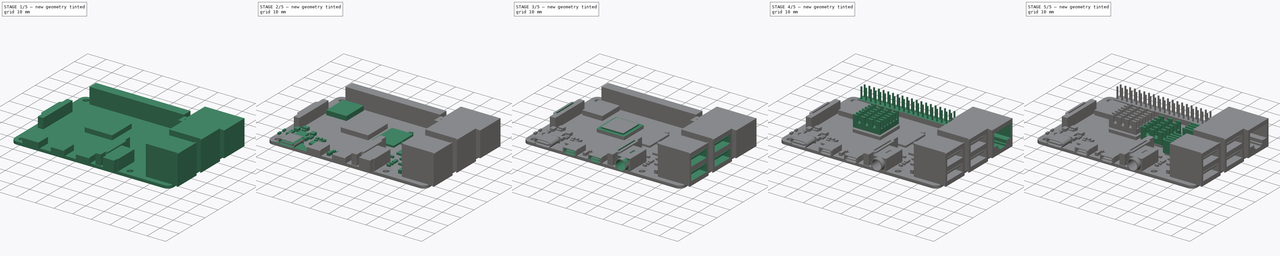
[diagram: build sequence overview — one tinted view per stage of 5, left to right]
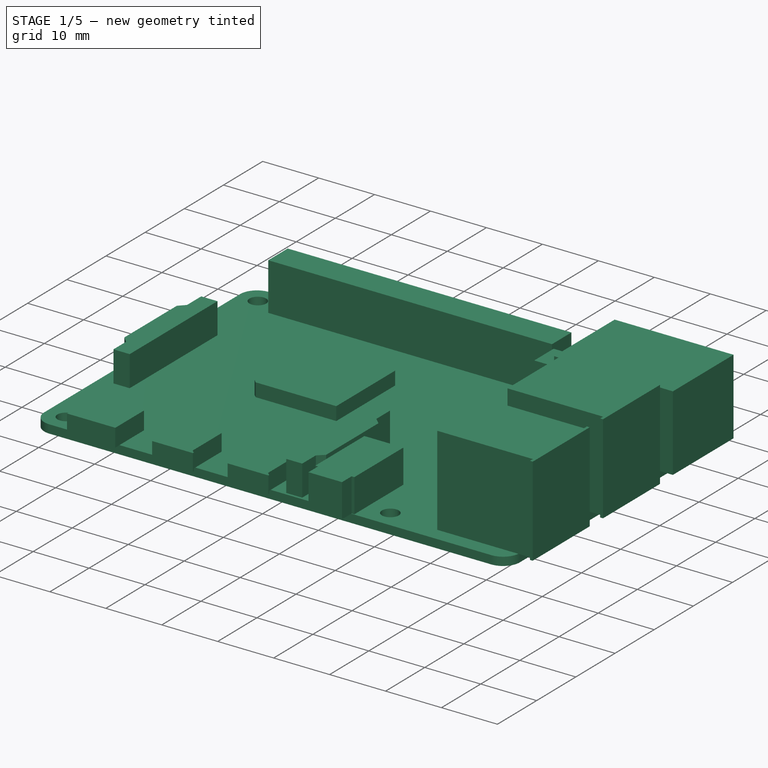
[diagram: stage 1 of 5 — iso view after this stage's code; geometry added in this stage tinted green]
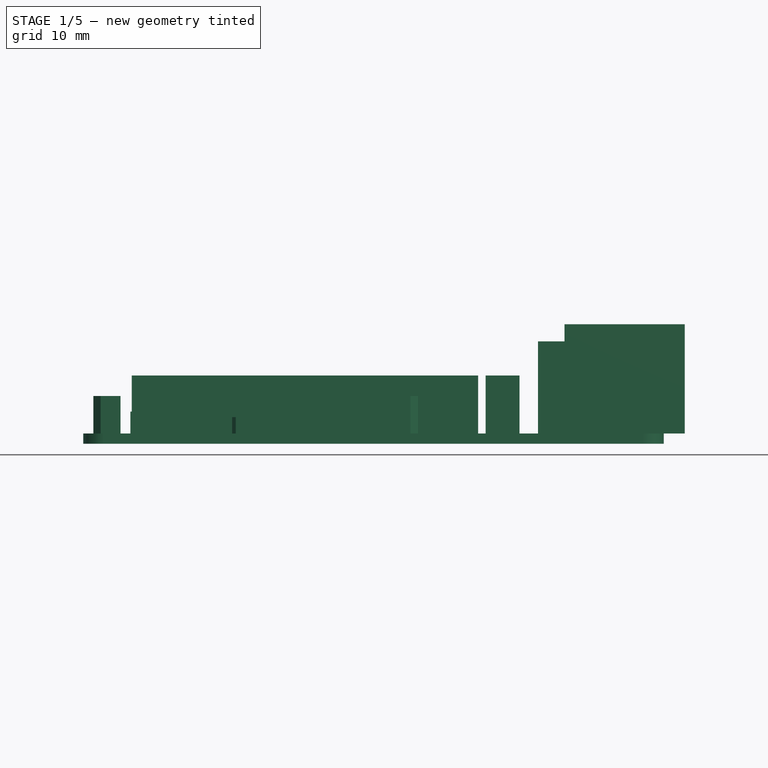
[diagram: stage 1 of 5 — front view after this stage's code; geometry added in this stage tinted green]
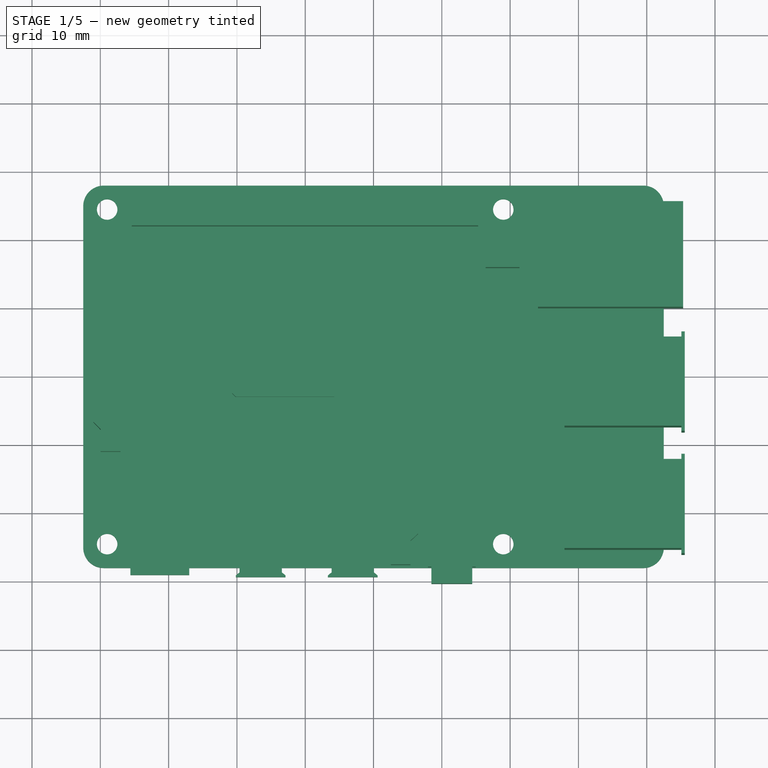
[diagram: stage 1 of 5 — top view after this stage's code; geometry added in this stage tinted green]
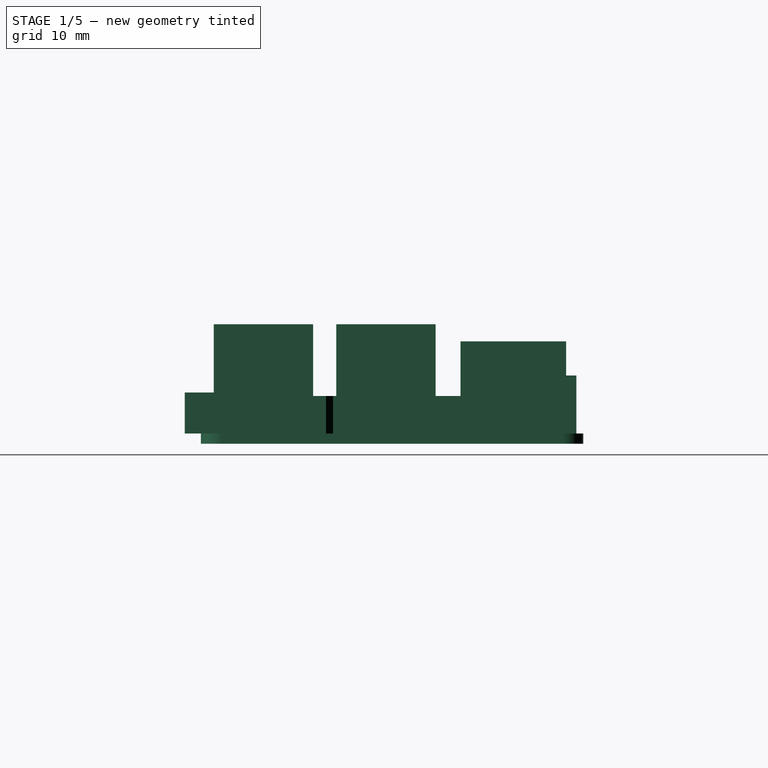
[diagram: stage 1 of 5 — right view after this stage's code; geometry added in this stage tinted green]
FCSTD DOCUMENT  (FreeCAD 1.0R39109 (Git))
Label: rpi_4b_heatsinks
License: All rights reserved
LicenseURL: http://en.wikipedia.org/wiki/All_rights_reserved
objects: Sketcher::SketchObject×40, PartDesign::Pad×24, PartDesign::Pocket×15, PartDesign::LinearPattern×5, Image::ImagePlane×1, PartDesign::Plane×1, PartDesign::Chamfer×1, PartDesign::Body×1
note: 212 computed .brp shape members not serialized (recipe doc carries the construction recipe); baked Part::Feature solids carry a one-line shape summary decoded from their .brp

FEATURE [Image::ImagePlane] Screenshot_from_2025_01_18_08_03_29  label="BaseDrawing"
  Placement = pos=(6.175,0.4,0) rot=(0,0,1;0rad)
  XSize = 141
  YSize = 90.851
  expr: XSize = 300 * 0.47 mm
  expr: YSize = 193.3 * 0.47
FEATURE [Sketcher::SketchObject] Sketch
  ArcFitTolerance = 1e-06
  AttachmentSupport = -> [XY_Plane]
  FullyConstrained = true
  MakeInternals = false
  MapMode = 5
  sketch-geometry (14):
    g0: LineSegment StartX=-42.5 StartY=25 StartZ=0 EndX=-42.5 EndY=-25 EndZ=0
    g1: LineSegment StartX=-39.5 StartY=-28 StartZ=0 EndX=39.5 EndY=-28 EndZ=0
    g2: LineSegment StartX=42.5 StartY=-25 StartZ=0 EndX=42.5 EndY=25 EndZ=0
    g3: LineSegment StartX=39.5 StartY=28 StartZ=0 EndX=-39.5 EndY=28 EndZ=0
    g4: ArcOfCircle CenterX=-39.5 CenterY=25 CenterZ=0 NormalX=0 NormalY=0 NormalZ=1 AngleXU=0 Radius=3 StartAngle=1.5708 EndAngle=3.14159
    g5: ArcOfCircle CenterX=-39.5 CenterY=-25 CenterZ=0 NormalX=0 NormalY=0 NormalZ=1 AngleXU=0 Radius=3 StartAngle=3.14159 EndAngle=4.71239
    g6: ArcOfCircle CenterX=39.5 CenterY=-25 CenterZ=0 NormalX=0 NormalY=0 NormalZ=1 AngleXU=0 Radius=3 StartAngle=4.71239 EndAngle=6.28319
    g7: ArcOfCircle CenterX=39.5 CenterY=25 CenterZ=0 NormalX=0 NormalY=0 NormalZ=1 AngleXU=0 Radius=3 StartAngle=3e-16 EndAngle=1.5708
    g8: GeomPoint [constr] X=-42.5 Y=28 Z=0
    g9: GeomPoint [constr] X=42.5 Y=-28 Z=0
    g10: Circle CenterX=-39 CenterY=24.5 CenterZ=0 NormalX=0 NormalY=0 NormalZ=1 AngleXU=0 Radius=1.5
    g11: Circle CenterX=19 CenterY=24.5 CenterZ=0 NormalX=0 NormalY=0 NormalZ=1 AngleXU=0 Radius=1.5
    g12: Circle CenterX=-39 CenterY=-24.5 CenterZ=0 NormalX=0 NormalY=0 NormalZ=1 AngleXU=0 Radius=1.5
    g13: Circle CenterX=19 CenterY=-24.5 CenterZ=0 NormalX=0 NormalY=0 NormalZ=1 AngleXU=0 Radius=1.5
  constraints (35):
    c: Tangent(g0,g4) = -1.5708
    c: Tangent(g0,g5) = -1.5708
    c: Tangent(g1,g5) = -1.5708
    c: Tangent(g1,g6) = -1.5708
    c: Tangent(g2,g6) = -1.5708
    c: Tangent(g2,g7) = -1.5708
    c: Tangent(g3,g7) = -1.5708
    c: Tangent(g3,g4) = -1.5708
    c: Vertical(g0)
    c: Vertical(g2)
    c: Horizontal(g1)
    c: Horizontal(g3)
    c: Equal(g4,g5)
    c: Equal(g5,g6)
    c: Equal(g6,g7)
    c: PointOnObject(g8,g0)
    c: PointOnObject(g8,g3)
    c: PointOnObject(g9,g1)
    c: PointOnObject(g9,g2)
    c: Radius(g5) = 3
    c: DistanceX(g0,g2) = 85
    c: DistanceY(g1,g3) = 56
    c: Symmetric(g4,g6,g-1)
    c: Horizontal(g13,g12)
    c: Vertical(g10,g12)
    c: Vertical(g11,g13)
    c: Horizontal(g10,g11)
    c: Equal(g11,g10)
    c: Equal(g10,g12)
    c: Equal(g12,g13)
    c: Radius(g10) = 1.5
    c: DistanceX(g0,g10) = 3.5
    c: DistanceY(g10,g3) = 3.5
    c: DistanceY(g12,g10) = 49
    c: DistanceX(g10,g11) = 58
FEATURE [PartDesign::Pad] Pad  label="PCBPad"
  Direction = (0,0,1)
  Length = 1.5
  Length2 = 10
  Profile = -> Sketch
  ReferenceAxis = -> Sketch [N_Axis]
  Refine = true
  Suppressed = false
  Type = 0
FEATURE [Sketcher::SketchObject] Sketch001
  ArcFitTolerance = 1e-06
  AttachmentSupport = -> [Pad]
  ExternalGeometry = -> [Pad]
  FullyConstrained = true
  MakeInternals = false
  MapMode = 5
  Placement = pos=(0,0,1.5) rot=(0,0,1;0rad)
  sketch-geometry (4):
    g0: LineSegment StartX=24.09 StartY=25.49 StartZ=0 EndX=24.09 EndY=10.02 EndZ=0
    g1: LineSegment StartX=24.09 StartY=10.02 StartZ=0 EndX=45.33 EndY=10.02 EndZ=0
    g2: LineSegment StartX=45.33 StartY=10.02 StartZ=0 EndX=45.33 EndY=25.49 EndZ=0
    g3: LineSegment StartX=45.33 StartY=25.49 StartZ=0 EndX=24.09 EndY=25.49 EndZ=0
  constraints (12):
    c: Vertical(g0)
    c: Coincident(g0,g1)
    c: Horizontal(g1)
    c: Coincident(g1,g2)
    c: Vertical(g2)
    c: Coincident(g2,g3)
    c: Coincident(g3,g0)
    c: Horizontal(g3)
    c: DistanceY(g0,g0) = 15.47
    c: DistanceX(g3,g3) = 21.24
    c: DistanceX(g-4,g2) = 2.83
    c: DistanceY(g2,g-3) = 2.51
FEATURE [PartDesign::Pad] Pad001  label="EthernetPad"
  BaseFeature = -> Pad
  Direction = (0,0,1)
  Length = 13.5
  Length2 = 10
  Profile = -> Sketch001
  ReferenceAxis = -> Sketch001 [N_Axis]
  Refine = true
  Suppressed = false
  Type = 0
FEATURE [Sketcher::SketchObject] Sketch002
  ArcFitTolerance = 1e-06
  AttachmentSupport = -> [Pad001]
  FullyConstrained = true
  MakeInternals = false
  MapMode = 5
  Placement = pos=(0,0,1.5) rot=(0,0,1;0rad)
  sketch-geometry (16):
    g0: LineSegment StartX=27.97 StartY=5.63 StartZ=0 EndX=45.07 EndY=5.63 EndZ=0
    g1: LineSegment StartX=45.07 StartY=5.63 StartZ=0 EndX=45.07 EndY=6.38 EndZ=0
    g2: LineSegment StartX=45.07 StartY=6.38 StartZ=0 EndX=45.57 EndY=6.38 EndZ=0
    g3: LineSegment StartX=45.57 StartY=6.38 StartZ=0 EndX=45.57 EndY=-8.17 EndZ=0
    g4: LineSegment StartX=45.57 StartY=-8.17 StartZ=0 EndX=45.07 EndY=-8.17 EndZ=0
    g5: LineSegment StartX=45.07 StartY=-8.17 StartZ=0 EndX=45.07 EndY=-7.42 EndZ=0
    g6: LineSegment StartX=45.07 StartY=-7.42 StartZ=0 EndX=27.97 EndY=-7.42 EndZ=0
    g7: LineSegment StartX=27.97 StartY=-7.42 StartZ=0 EndX=27.97 EndY=5.63 EndZ=0
    g8: LineSegment StartX=27.97 StartY=-12.3 StartZ=0 EndX=45.07 EndY=-12.3 EndZ=0
    g9: LineSegment StartX=45.07 StartY=-12.3 StartZ=0 EndX=45.07 EndY=-11.55 EndZ=0
    g10: LineSegment StartX=45.07 StartY=-11.55 StartZ=0 EndX=45.57 EndY=-11.55 EndZ=0
    g11: LineSegment StartX=45.57 StartY=-11.55 StartZ=0 EndX=45.57 EndY=-26.1 EndZ=0
    g12: LineSegment StartX=45.57 StartY=-26.1 StartZ=0 EndX=45.07 EndY=-26.1 EndZ=0
    g13: LineSegment StartX=45.07 StartY=-26.1 StartZ=0 EndX=45.07 EndY=-25.35 EndZ=0
    g14: LineSegment StartX=45.07 StartY=-25.35 StartZ=0 EndX=27.97 EndY=-25.35 EndZ=0
    g15: LineSegment StartX=27.97 StartY=-25.35 StartZ=0 EndX=27.97 EndY=-12.3 EndZ=0
  constraints (48):
    c: Horizontal(g0)
    c: Coincident(g0,g1)
    c: Vertical(g1)
    c: Coincident(g1,g2)
    c: Coincident(g2,g3)
    c: Vertical(g3)
    c: Coincident(g3,g4)
    c: Horizontal(g4)
    c: Coincident(g4,g5)
    c: Vertical(g5)
    c: Coincident(g5,g6)
    c: Horizontal(g6)
    c: Coincident(g6,g7)
    c: Coincident(g7,g0)
    c: Vertical(g7)
    c: Horizontal(g2)
    c: Vertical(g0,g5)
    c: Horizontal(g8)
    c: Coincident(g8,g9)
    c: Vertical(g9)
    c: Coincident(g9,g10)
    c: Horizontal(g10)
    c: Coincident(g10,g11)
    c: Vertical(g11)
    c: Coincident(g11,g12)
    c: Horizontal(g12)
    c: Coincident(g12,g13)
    c: Vertical(g13)
    c: Coincident(g13,g14)
    c: Horizontal(g14)
    c: Coincident(g14,g15)
    c: Coincident(g15,g8)
    c: Vertical(g15)
    c: Vertical(g9,g4)
    c: Vertical(g13,g8)
    c: Vertical(g10,g3)
    c: Equal(g8,g6)
    c: Equal(g15,g7)
    c: DistanceX(g2,g2) = 0.5
    c: DistanceX(g0,g0) = 17.1
    c: DistanceY(g-1,g0) = 5.63
    c: DistanceX(g-1,g6) = 27.97
    c: DistanceY(g7,g7) = 13.05
    c: Equal(g1,g5)
    c: Equal(g5,g9)
    c: DistanceY(g5,g5) = 0.75
    c: DistanceY(g8,g-1) = 12.3
    c: Equal(g13,g9)
FEATURE [PartDesign::Pad] Pad002  label="USBPad"
  BaseFeature = -> Pad001
  Direction = (0,0,1)
  Length = 16
  Length2 = 10
  Profile = -> Sketch002
  ReferenceAxis = -> Sketch002 [N_Axis]
  Refine = true
  Suppressed = false
  Type = 0
FEATURE [Sketcher::SketchObject] Sketch003
  ArcFitTolerance = 1e-06
  AttachmentSupport = -> [Pad002]
  FullyConstrained = true
  MakeInternals = false
  MapMode = 5
  Placement = pos=(0,0,1.5) rot=(0,0,1;0rad)
  sketch-geometry (20):
    g0: LineSegment StartX=-39.95 StartY=11.41 StartZ=0 EndX=-37.05 EndY=11.41 EndZ=0
    g1: LineSegment StartX=-37.05 StartY=11.41 StartZ=0 EndX=-37.05 EndY=-10.99 EndZ=0
    g2: LineSegment StartX=-37.05 StartY=-10.99 StartZ=0 EndX=-39.95 EndY=-10.99 EndZ=0
    g3: LineSegment StartX=-39.95 StartY=-10.99 StartZ=0 EndX=-39.95 EndY=-7.78 EndZ=0
    g4: LineSegment StartX=-39.95 StartY=-7.78 StartZ=0 EndX=-41.01 EndY=-6.695 EndZ=0
    g5: LineSegment StartX=-41.01 StartY=-6.695 StartZ=0 EndX=-41.01 EndY=6.695 EndZ=0
    g6: LineSegment StartX=-41.01 StartY=6.695 StartZ=0 EndX=-39.95 EndY=7.78 EndZ=0
    g7: LineSegment StartX=-39.95 StartY=7.78 StartZ=0 EndX=-39.95 EndY=11.41 EndZ=0
    g8: LineSegment StartX=2.55 StartY=-5.17 StartZ=0 EndX=2.55 EndY=-27.57 EndZ=0
    g9: LineSegment StartX=2.55 StartY=-27.57 StartZ=0 EndX=5.39188 EndY=-27.57 EndZ=0
    g10: LineSegment StartX=5.39188 StartY=-27.57 StartZ=0 EndX=5.39188 EndY=-24.09 EndZ=0
    g11: LineSegment StartX=5.39188 StartY=-24.09 StartZ=0 EndX=6.51 EndY=-23.065 EndZ=0
    g12: LineSegment StartX=6.51 StartY=-23.065 StartZ=0 EndX=6.51 EndY=-9.675 EndZ=0
    g13: LineSegment StartX=6.51 StartY=-9.675 StartZ=0 EndX=5.39188 EndY=-8.65 EndZ=0
    g14: LineSegment StartX=5.39188 StartY=-8.65 StartZ=0 EndX=5.39188 EndY=-5.17 EndZ=0
    g15: LineSegment StartX=5.39188 StartY=-5.17 StartZ=0 EndX=2.55 EndY=-5.17 EndZ=0
    g16: LineSegment [constr] StartX=6.51 StartY=-23.065 StartZ=0 EndX=2.55 EndY=-23.065 EndZ=0
    g17: LineSegment [constr] StartX=-41.01 StartY=-6.695 StartZ=0 EndX=-37.05 EndY=-6.695 EndZ=0
    g18: GeomPoint [constr] X=2.55 Y=-16.37 Z=0
    g19: GeomPoint [constr] X=6.51 Y=-16.37 Z=0
  constraints (55):
    c: Horizontal(g0)
    c: Coincident(g0,g1)
    c: Vertical(g1)
    c: Coincident(g1,g2)
    c: Horizontal(g2)
    c: Coincident(g2,g3)
    c: Coincident(g3,g4)
    c: Coincident(g4,g5)
    c: Vertical(g5)
    c: Coincident(g5,g6)
    c: Coincident(g6,g7)
    c: Coincident(g7,g0)
    c: Vertical(g8)
    c: Coincident(g8,g9)
    c: Horizontal(g9)
    c: Coincident(g9,g10)
    c: Vertical(g10)
    c: Coincident(g10,g11)
    c: Coincident(g11,g12)
    c: Vertical(g12)
    c: Coincident(g12,g13)
    c: Coincident(g13,g14)
    c: Vertical(g14)
    c: Coincident(g14,g15)
    c: Coincident(g15,g8)
    c: Horizontal(g15)
    c: Vertical(g7)
    c: Vertical(g3)
    c: Equal(g4,g6)
    c: Symmetric(g3,g6,g-1)
    c: DistanceY(g1,g1) = 22.4
    c: DistanceY(g5,g5) = 13.39
    c: DistanceX(g2,g2) = 2.9
    c: DistanceX(g4,g3) = 1.06
    c: DistanceY(g7,g7) = 3.63
    c: DistanceX(g0,g-1) = 37.05
    c: DistanceY(g-1,g0) = 11.41
    c: Equal(g5,g12)
    c: Equal(g13,g11)
    c: Equal(g4,g13)
    c: Vertical(g13,g10)
    c: DistanceX(g-1,g8) = 2.55
    c: DistanceY(g8,g-1) = 5.17
    c: Equal(g8,g1)
    c: Coincident(g16,g11)
    c: PointOnObject(g16,g8)
    c: Horizontal(g16)
    c: Coincident(g17,g4)
    c: PointOnObject(g17,g1)
    c: Horizontal(g17)
    c: Equal(g17,g16)
    c: Symmetric(g8,g8,g18)
    c: Symmetric(g12,g12,g19)
    c: Horizontal(g19,g18)
    c: DistanceY(g14,g14) = 3.48
FEATURE [PartDesign::Pad] Pad003  label="Cam&DisplayPad"
  BaseFeature = -> Pad002
  Direction = (0,0,1)
  Length = 5.5
  Length2 = 10
  Profile = -> Sketch003
  ReferenceAxis = -> Sketch003 [N_Axis]
  Refine = true
  Suppressed = false
  Type = 0
FEATURE [Sketcher::SketchObject] Sketch004
  ArcFitTolerance = 1e-06
  AttachmentSupport = -> [Pad003]
  FullyConstrained = true
  MakeInternals = false
  MapMode = 5
  Placement = pos=(0,0,1.5) rot=(0,0,1;0rad)
  sketch-geometry (19):
    g0: LineSegment StartX=-19.62 StartY=-21.27 StartZ=0 EndX=-19.62 EndY=-28.69 EndZ=0
    g1: LineSegment StartX=-19.62 StartY=-28.69 StartZ=0 EndX=-20.16 EndY=-29.13 EndZ=0
    g2: LineSegment StartX=-20.16 StartY=-29.13 StartZ=0 EndX=-20.16 EndY=-29.37 EndZ=0
    g3: LineSegment StartX=-20.16 StartY=-29.37 StartZ=0 EndX=-12.88 EndY=-29.37 EndZ=0
    g4: LineSegment StartX=-12.88 StartY=-29.37 StartZ=0 EndX=-12.88 EndY=-29.13 EndZ=0
    g5: LineSegment StartX=-12.88 StartY=-29.13 StartZ=0 EndX=-13.42 EndY=-28.69 EndZ=0
    g6: LineSegment StartX=-13.42 StartY=-28.69 StartZ=0 EndX=-13.42 EndY=-21.27 EndZ=0
    g7: LineSegment StartX=-13.42 StartY=-21.27 StartZ=0 EndX=-19.62 EndY=-21.27 EndZ=0
    g8: LineSegment StartX=-6.14 StartY=-21.27 StartZ=0 EndX=-6.14 EndY=-28.69 EndZ=0
    g9: LineSegment StartX=-6.14 StartY=-28.69 StartZ=0 EndX=-6.68 EndY=-29.13 EndZ=0
    g10: LineSegment StartX=0.6 StartY=-29.13 StartZ=0 EndX=0.06 EndY=-28.69 EndZ=0
    g11: LineSegment StartX=0.06 StartY=-28.69 StartZ=0 EndX=0.06 EndY=-21.27 EndZ=0
    g12: LineSegment StartX=0.06 StartY=-21.27 StartZ=0 EndX=-6.14 EndY=-21.27 EndZ=0
    g13: LineSegment StartX=-6.68 StartY=-29.13 StartZ=0 EndX=-6.68 EndY=-29.37 EndZ=0
    g14: LineSegment StartX=-6.68 StartY=-29.37 StartZ=0 EndX=0.6 EndY=-29.37 EndZ=0
    g15: LineSegment StartX=0.6 StartY=-29.37 StartZ=0 EndX=0.6 EndY=-29.13 EndZ=0
    g16: GeomPoint X=-3.04 Y=-29.37 Z=0
    g17: GeomPoint X=-3.04 Y=-21.27 Z=0
    g18: LineSegment [constr] StartX=-3.04 StartY=-21.27 StartZ=0 EndX=-3.04 EndY=-29.37 EndZ=0
  constraints (52):
    c: Vertical(g0)
    c: Coincident(g0,g1)
    c: Coincident(g1,g2)
    c: Vertical(g2)
    c: Coincident(g2,g3)
    c: Horizontal(g3)
    c: Coincident(g3,g4)
    c: Coincident(g4,g5)
    c: Coincident(g5,g6)
    c: Vertical(g6)
    c: Coincident(g6,g7)
    c: Coincident(g7,g0)
    c: Horizontal(g7)
    c: Vertical(g8)
    c: Coincident(g8,g9)
    c: Coincident(g10,g11)
    c: Vertical(g11)
    c: Coincident(g11,g12)
    c: Coincident(g12,g8)
    c: Horizontal(g12)
    c: Equal(g12,g7)
    c: Equal(g8,g0)
    c: Coincident(g9,g13)
    c: Vertical(g13)
    c: Coincident(g13,g14)
    c: Horizontal(g14)
    c: Coincident(g14,g15)
    c: Coincident(g15,g10)
    c: Equal(g9,g10)
    c: Vertical(g15)
    c: Vertical(g4)
    c: Horizontal(g3,g13)
    c: Horizontal(g4,g9)
    c: Horizontal(g8,g5)
    c: Horizontal(g9,g10)
    c: Horizontal(g4,g1)
    c: Equal(g1,g5)
    c: DistanceX(g7,g7) = 6.2
    c: DistanceY(g0,g0) = 7.42
    c: DistanceY(g2,g2) = 0.24
    c: DistanceY(g1,g0) = 0.44
    c: DistanceX(g3,g3) = 7.28
    c: DistanceX(g6,g-1) = 13.42
    c: DistanceY(g6,g-1) = 21.27
    c: Horizontal(g5,g0)
    c: DistanceX(g8,g-1) = 6.14
    c: Equal(g14,g3)
    c: Symmetric(g14,g14,g16)
    c: Symmetric(g12,g12,g17)
    c: Coincident(g18,g17)
    c: Coincident(g18,g16)
    c: Vertical(g18)
FEATURE [PartDesign::Pad] Pad004  label="MicroHDMIPad"
  BaseFeature = -> Pad003
  Direction = (0,0,1)
  Length = 3
  Length2 = 10
  Profile = -> Sketch004
  ReferenceAxis = -> Sketch004 [N_Axis]
  Refine = true
  Suppressed = false
  Type = 0
FEATURE [Sketcher::SketchObject] Sketch005
  ArcFitTolerance = 1e-06
  AttachmentSupport = -> [Pad004]
  FullyConstrained = true
  MakeInternals = false
  MapMode = 5
  Placement = pos=(0,0,1.5) rot=(0,0,1;0rad)
  sketch-geometry (4):
    g0: LineSegment StartX=-35.6 StartY=-21.72 StartZ=0 EndX=-35.6 EndY=-29.06 EndZ=0
    g1: LineSegment StartX=-35.6 StartY=-29.06 StartZ=0 EndX=-26.97 EndY=-29.06 EndZ=0
    g2: LineSegment StartX=-26.97 StartY=-29.06 StartZ=0 EndX=-26.97 EndY=-21.72 EndZ=0
    g3: LineSegment StartX=-26.97 StartY=-21.72 StartZ=0 EndX=-35.6 EndY=-21.72 EndZ=0
  constraints (12):
    c: Vertical(g0)
    c: Coincident(g0,g1)
    c: Horizontal(g1)
    c: Coincident(g1,g2)
    c: Vertical(g2)
    c: Coincident(g2,g3)
    c: Coincident(g3,g0)
    c: Horizontal(g3)
    c: DistanceX(g3,g3) = 8.63
    c: DistanceY(g0,g0) = 7.34
    c: DistanceX(g2,g-1) = 26.97
    c: DistanceY(g2,g-1) = 21.72
FEATURE [PartDesign::Pad] Pad005  label="USBCPad"
  BaseFeature = -> Pad004
  Direction = (0,0,1)
  Length = 3.2
  Length2 = 10
  Profile = -> Sketch005
  ReferenceAxis = -> Sketch005 [N_Axis]
  Refine = true
  Suppressed = false
  Type = 0
FEATURE [Sketcher::SketchObject] Sketch006
  ArcFitTolerance = 1e-06
  AttachmentSupport = -> [Pad005]
  FullyConstrained = true
  MakeInternals = false
  MapMode = 5
  Placement = pos=(0,0,1.5) rot=(0,0,1;0rad)
  sketch-geometry (5):
    g0: LineSegment StartX=-20.71 StartY=12.08 StartZ=0 EndX=-5.75 EndY=12.08 EndZ=0
    g1: LineSegment StartX=-5.75 StartY=12.08 StartZ=0 EndX=-5.75 EndY=-2.96 EndZ=0
    g2: LineSegment StartX=-5.75 StartY=-2.96 StartZ=0 EndX=-20.17 EndY=-2.96 EndZ=0
    g3: LineSegment StartX=-20.17 StartY=-2.96 StartZ=0 EndX=-20.71 EndY=-2.43 EndZ=0
    g4: LineSegment StartX=-20.71 StartY=-2.43 StartZ=0 EndX=-20.71 EndY=12.08 EndZ=0
  constraints (15):
    c: Horizontal(g0)
    c: Coincident(g1,g0)
    c: Vertical(g1)
    c: Coincident(g1,g2)
    c: Horizontal(g2)
    c: Coincident(g2,g3)
    c: Coincident(g3,g4)
    c: Coincident(g4,g0)
    c: Vertical(g4)
    c: DistanceY(g1,g1) = 15.04
    c: DistanceX(g0,g0) = 14.96
    c: DistanceY(g4,g4) = 14.51
    c: DistanceX(g2,g2) = 14.42
    c: DistanceX(g1,g-1) = 5.75
    c: DistanceY(g1,g-1) = 2.96
FEATURE [PartDesign::Pad] Pad006  label="ProcessorPad"
  BaseFeature = -> Pad005
  Direction = (0,0,1)
  Length = 2.4
  Length2 = 10
  Profile = -> Sketch006
  ReferenceAxis = -> Sketch006 [N_Axis]
  Refine = true
  Suppressed = false
  Type = 0
FEATURE [Sketcher::SketchObject] Sketch007
  ArcFitTolerance = 1e-06
  AttachmentSupport = -> [Pad006]
  FullyConstrained = true
  MakeInternals = false
  MapMode = 5
  Placement = pos=(0,0,1.5) rot=(0,0,1;0rad)
  sketch-geometry (8):
    g0: LineSegment StartX=-35.4 StartY=26.99 StartZ=0 EndX=15.31 EndY=26.99 EndZ=0
    g1: LineSegment StartX=15.31 StartY=26.99 StartZ=0 EndX=15.31 EndY=22.03 EndZ=0
    g2: LineSegment StartX=15.31 StartY=22.03 StartZ=0 EndX=-35.4 EndY=22.03 EndZ=0
    g3: LineSegment StartX=-35.4 StartY=22.03 StartZ=0 EndX=-35.4 EndY=26.99 EndZ=0
    g4: LineSegment StartX=16.41 StartY=20.88 StartZ=0 EndX=16.41 EndY=15.92 EndZ=0
    g5: LineSegment StartX=16.41 StartY=15.92 StartZ=0 EndX=21.37 EndY=15.92 EndZ=0
    g6: LineSegment StartX=21.37 StartY=15.92 StartZ=0 EndX=21.37 EndY=20.88 EndZ=0
    g7: LineSegment StartX=21.37 StartY=20.88 StartZ=0 EndX=16.41 EndY=20.88 EndZ=0
  constraints (24):
    c: Horizontal(g0)
    c: Coincident(g0,g1)
    c: Vertical(g1)
    c: Coincident(g1,g2)
    c: Horizontal(g2)
    c: Coincident(g2,g3)
    c: Coincident(g3,g0)
    c: Vertical(g3)
    c: DistanceX(g0,g0) = 50.71
    c: DistanceY(g3,g3) = 4.96
    c: DistanceY(g-1,g1) = 22.03
    c: DistanceX(g-1,g1) = 15.31
    c: Coincident(g4,g5)
    c: Coincident(g5,g6)
    c: Coincident(g6,g7)
    c: Coincident(g7,g4)
    c: Vertical(g4)
    c: Vertical(g6)
    c: Horizontal(g5)
    c: Horizontal(g7)
    c: Equal(g1,g6)
    c: Equal(g6,g5)
    c: DistanceX(g1,g4) = 1.1
    c: DistanceY(g4,g1) = 1.15
FEATURE [PartDesign::Pad] Pad007  label="GPIOPad"
  BaseFeature = -> Pad006
  Direction = (0,0,1)
  Length = 8.5
  Length2 = 10
  Profile = -> Sketch007
  ReferenceAxis = -> Sketch007 [N_Axis]
  Refine = true
  Suppressed = false
  Type = 0
FEATURE [Sketcher::SketchObject] Sketch009
  ArcFitTolerance = 1e-06
  FullyConstrained = true
  MakeInternals = false
  MapMode = 5
  Placement = pos=(0,0,1.5) rot=(0,0,1;0rad)
  sketch-geometry (8):
    g0: LineSegment StartX=7.98 StartY=-15.39 StartZ=0 EndX=14.95 EndY=-15.39 EndZ=0
    g1: LineSegment StartX=14.95 StartY=-15.39 StartZ=0 EndX=14.95 EndY=-27.91 EndZ=0
    g2: LineSegment StartX=14.95 StartY=-27.91 StartZ=0 EndX=14.46 EndY=-27.91 EndZ=0
    g3: LineSegment StartX=14.46 StartY=-27.91 StartZ=0 EndX=14.46 EndY=-30.36 EndZ=0
    g4: LineSegment StartX=14.46 StartY=-30.36 StartZ=0 EndX=8.47 EndY=-30.36 EndZ=0
    g5: LineSegment StartX=8.47 StartY=-30.36 StartZ=0 EndX=8.47 EndY=-27.91 EndZ=0
    g6: LineSegment StartX=8.47 StartY=-27.91 StartZ=0 EndX=7.98 EndY=-27.91 EndZ=0
    g7: LineSegment StartX=7.98 StartY=-27.91 StartZ=0 EndX=7.98 EndY=-15.39 EndZ=0
  constraints (24):
    c: Horizontal(g0)
    c: Coincident(g0,g1)
    c: Vertical(g1)
    c: Coincident(g1,g2)
    c: Horizontal(g2)
    c: Coincident(g2,g3)
    c: Vertical(g3)
    c: Coincident(g3,g4)
    c: Horizontal(g4)
    c: Coincident(g4,g5)
    c: Vertical(g5)
    c: Coincident(g5,g6)
    c: Coincident(g6,g7)
    c: Coincident(g7,g0)
    c: Vertical(g7)
    c: Horizontal(g6)
    c: Horizontal(g2,g5)
    c: Equal(g6,g2)
    c: DistanceX(g0,g0) = 6.97
    c: DistanceX(g2,g2) = 0.49
    c: DistanceY(g5,g5) = 2.45
    c: DistanceY(g7,g7) = 12.52
    c: DistanceY(g0,g-1) = 15.39
    c: DistanceX(g-1,g0) = 7.98
FEATURE [PartDesign::Pad] Pad008  label="AudioPad"
  BaseFeature = -> Pad007
  Direction = (0,0,1)
  Length = 6
  Length2 = 10
  Profile = -> Sketch009
  ReferenceAxis = -> Sketch009 [N_Axis]
  Refine = true
  Suppressed = false
  Type = 0
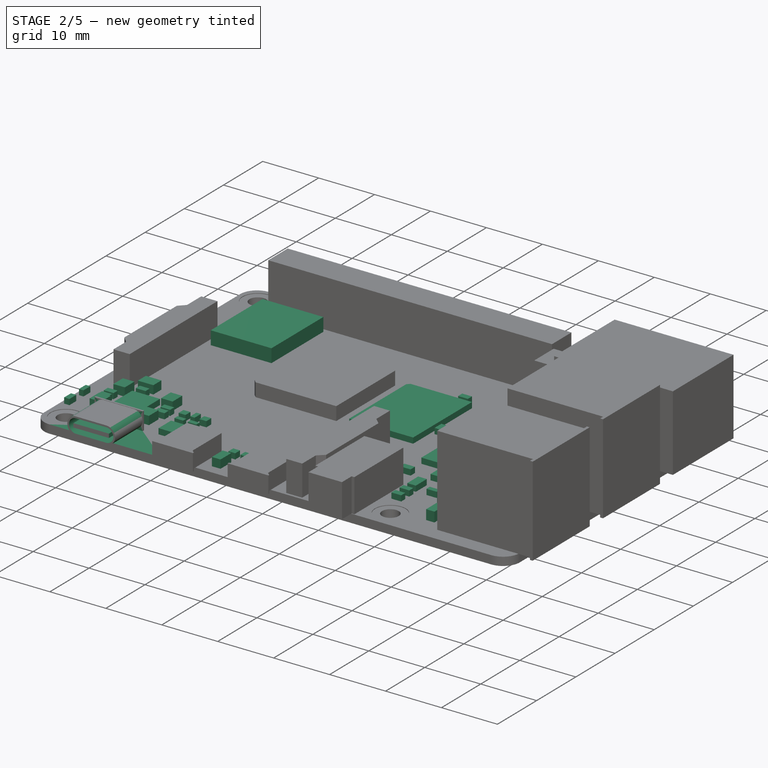
[diagram: stage 2 of 5 — iso view after this stage's code; geometry added in this stage tinted green]
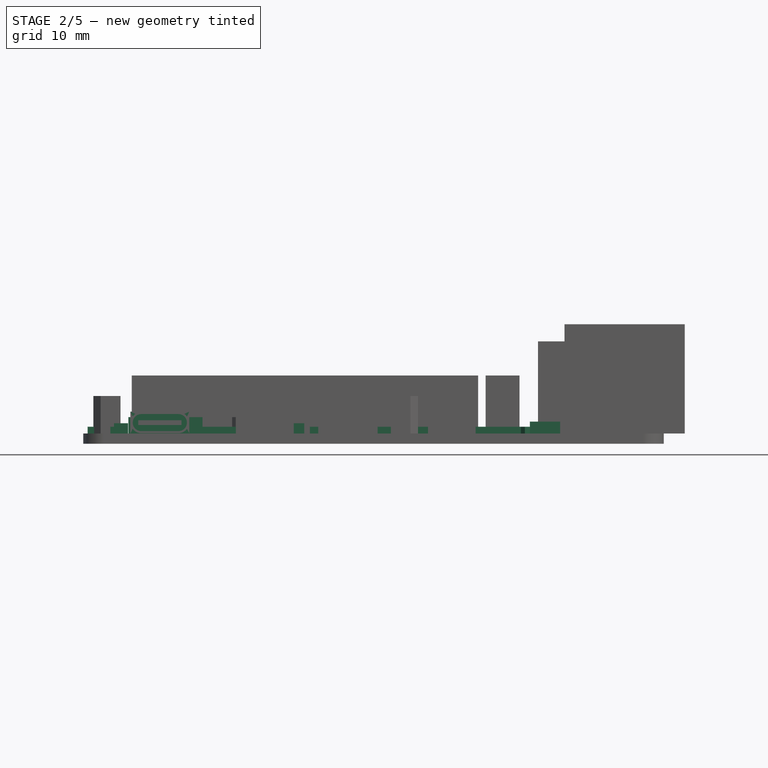
[diagram: stage 2 of 5 — front view after this stage's code; geometry added in this stage tinted green]
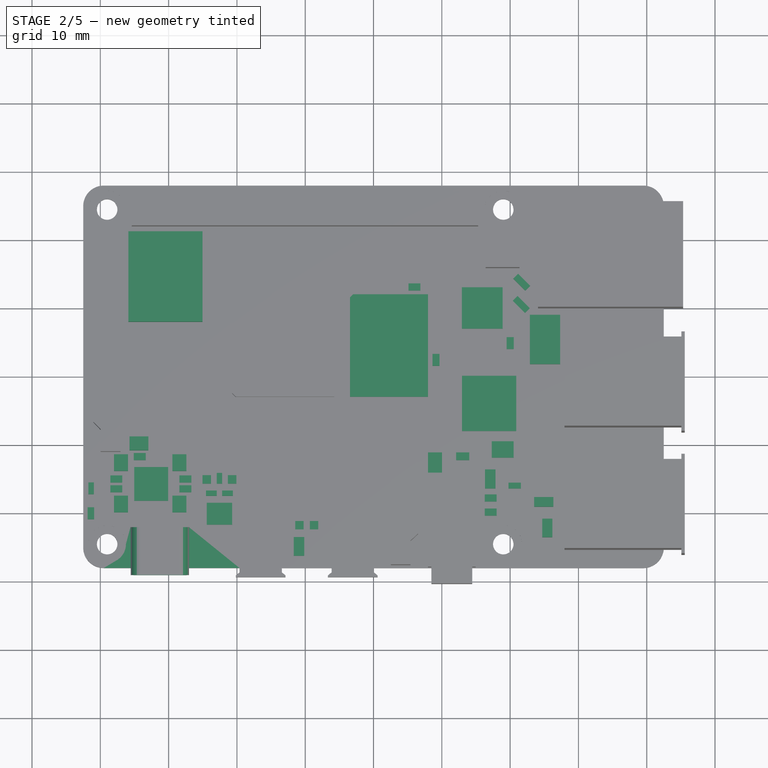
[diagram: stage 2 of 5 — top view after this stage's code; geometry added in this stage tinted green]
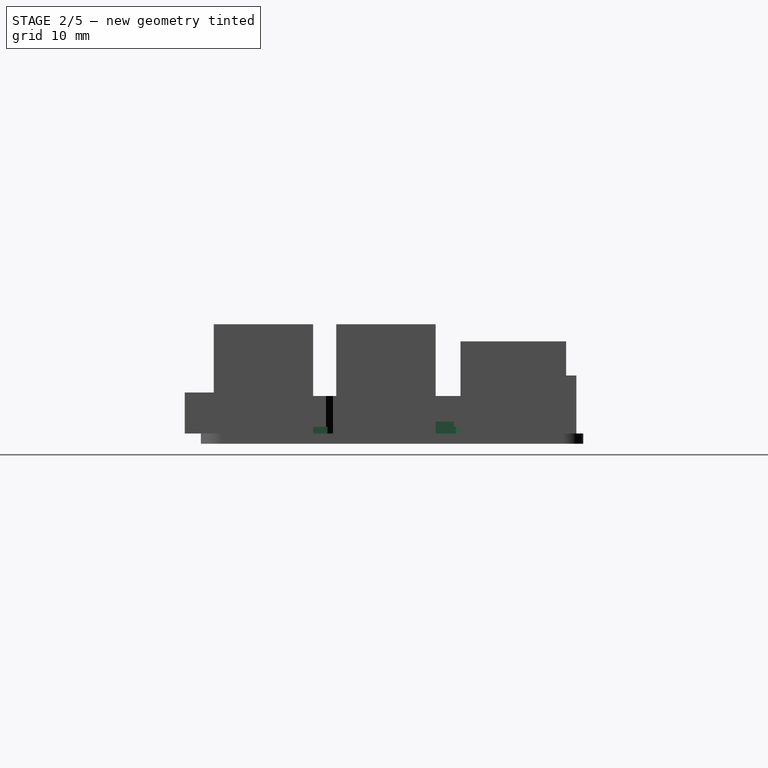
[diagram: stage 2 of 5 — right view after this stage's code; geometry added in this stage tinted green]
FEATURE [Sketcher::SketchObject] Sketch010
  ArcFitTolerance = 1e-06
  AttachmentSupport = -> [Pad008]
  FullyConstrained = true
  MakeInternals = false
  MapMode = 5
  Placement = pos=(0,0,1.5) rot=(0,0,1;0rad)
  sketch-geometry (12):
    g0: LineSegment StartX=23.52 StartY=-17.64 StartZ=0 EndX=23.52 EndY=-19.04 EndZ=0
    g1: LineSegment StartX=23.52 StartY=-19.04 StartZ=0 EndX=26.33 EndY=-19.04 EndZ=0
    g2: LineSegment StartX=26.33 StartY=-19.04 StartZ=0 EndX=26.33 EndY=-17.64 EndZ=0
    g3: LineSegment StartX=26.33 StartY=-17.64 StartZ=0 EndX=23.52 EndY=-17.64 EndZ=0
    g4: LineSegment StartX=24.7 StartY=-20.8 StartZ=0 EndX=24.7 EndY=-23.51 EndZ=0
    g5: LineSegment StartX=24.7 StartY=-23.51 StartZ=0 EndX=26.18 EndY=-23.51 EndZ=0
    g6: LineSegment StartX=26.18 StartY=-23.51 StartZ=0 EndX=26.18 EndY=-20.8 EndZ=0
    g7: LineSegment StartX=26.18 StartY=-20.8 StartZ=0 EndX=24.7 EndY=-20.8 EndZ=0
    g8: LineSegment StartX=22.9 StartY=9.05 StartZ=0 EndX=22.9 EndY=1.84 EndZ=0
    g9: LineSegment StartX=22.9 StartY=1.84 StartZ=0 EndX=27.33 EndY=1.84 EndZ=0
    g10: LineSegment StartX=27.33 StartY=1.84 StartZ=0 EndX=27.33 EndY=9.05 EndZ=0
    g11: LineSegment StartX=27.33 StartY=9.05 StartZ=0 EndX=22.9 EndY=9.05 EndZ=0
  constraints (36):
    c: Coincident(g0,g1)
    c: Coincident(g1,g2)
    c: Coincident(g2,g3)
    c: Coincident(g3,g0)
    c: Vertical(g0)
    c: Vertical(g2)
    c: Horizontal(g1)
    c: Horizontal(g3)
    c: Coincident(g4,g5)
    c: Coincident(g5,g6)
    c: Coincident(g6,g7)
    c: Coincident(g7,g4)
    c: Vertical(g4)
    c: Vertical(g6)
    c: Horizontal(g5)
    c: Horizontal(g7)
    c: Coincident(g8,g9)
    c: Coincident(g9,g10)
    c: Coincident(g10,g11)
    c: Coincident(g11,g8)
    c: Vertical(g8)
    c: Vertical(g10)
    c: Horizontal(g9)
    c: Horizontal(g11)
    c: DistanceY(g6,g6) = 2.71
    c: DistanceX(g5,g5) = 1.48
    c: DistanceX(g1,g1) = 2.81
    c: DistanceY(g2,g2) = 1.4
    c: DistanceY(g6,g1) = 1.76
    c: DistanceX(g0,g4) = 1.18
    c: DistanceX(g9,g9) = 4.43
    c: DistanceY(g10,g10) = 7.21
    c: DistanceX(g-1,g8) = 22.9
    c: DistanceY(g-1,g8) = 1.84
    c: DistanceX(g-1,g0) = 23.52
    c: DistanceY(g0,g-1) = 17.64
FEATURE [PartDesign::Pad] Pad009  label="Components1Pad"
  BaseFeature = -> Pad008
  Direction = (0,0,1)
  Length = 1.75
  Length2 = 10
  Profile = -> Sketch010
  ReferenceAxis = -> Sketch010 [N_Axis]
  Refine = true
  Suppressed = false
  Type = 0
FEATURE [Sketcher::SketchObject] Sketch011
  ArcFitTolerance = 1e-06
  AttachmentSupport = -> [Pad009]
  FullyConstrained = true
  MakeInternals = false
  MapMode = 5
  Placement = pos=(0,0,1.5) rot=(0,0,1;0rad)
  sketch-geometry (24):
    g0: LineSegment StartX=-38 StartY=-11.37 StartZ=0 EndX=-38 EndY=-13.81 EndZ=0
    g1: LineSegment StartX=-38 StartY=-13.81 StartZ=0 EndX=-35.95 EndY=-13.81 EndZ=0
    g2: LineSegment StartX=-35.95 StartY=-13.81 StartZ=0 EndX=-35.95 EndY=-11.37 EndZ=0
    g3: LineSegment StartX=-35.95 StartY=-11.37 StartZ=0 EndX=-38 EndY=-11.37 EndZ=0
    g4: LineSegment StartX=-38 StartY=-17.43 StartZ=0 EndX=-38 EndY=-19.87 EndZ=0
    g5: LineSegment StartX=-38 StartY=-19.87 StartZ=0 EndX=-35.95 EndY=-19.87 EndZ=0
    g6: LineSegment StartX=-35.95 StartY=-19.87 StartZ=0 EndX=-35.95 EndY=-17.43 EndZ=0
    g7: LineSegment StartX=-35.95 StartY=-17.43 StartZ=0 EndX=-38 EndY=-17.43 EndZ=0
    g8: LineSegment StartX=-29.45 StartY=-17.43 StartZ=0 EndX=-29.45 EndY=-19.87 EndZ=0
    g9: LineSegment StartX=-29.45 StartY=-19.87 StartZ=0 EndX=-27.4 EndY=-19.87 EndZ=0
    g10: LineSegment StartX=-27.4 StartY=-19.87 StartZ=0 EndX=-27.4 EndY=-17.43 EndZ=0
    g11: LineSegment StartX=-27.4 StartY=-17.43 StartZ=0 EndX=-29.45 EndY=-17.43 EndZ=0
    g12: LineSegment StartX=-11.68 StartY=-23.49 StartZ=0 EndX=-11.68 EndY=-26.23 EndZ=0
    g13: LineSegment StartX=-11.68 StartY=-26.23 StartZ=0 EndX=-10.14 EndY=-26.23 EndZ=0
    g14: LineSegment StartX=-10.14 StartY=-26.23 StartZ=0 EndX=-10.14 EndY=-23.49 EndZ=0
    g15: LineSegment StartX=-10.14 StartY=-23.49 StartZ=0 EndX=-11.68 EndY=-23.49 EndZ=0
    g16: LineSegment StartX=-29.45 StartY=-11.37 StartZ=0 EndX=-29.45 EndY=-13.81 EndZ=0
    g17: LineSegment StartX=-29.45 StartY=-13.81 StartZ=0 EndX=-27.4 EndY=-13.81 EndZ=0
    g18: LineSegment StartX=-27.4 StartY=-13.81 StartZ=0 EndX=-27.4 EndY=-11.37 EndZ=0
    g19: LineSegment StartX=-27.4 StartY=-11.37 StartZ=0 EndX=-29.45 EndY=-11.37 EndZ=0
    g20: LineSegment StartX=-35.73 StartY=-8.75 StartZ=0 EndX=-35.73 EndY=-10.79 EndZ=0
    g21: LineSegment StartX=-35.73 StartY=-10.79 StartZ=0 EndX=-32.96 EndY=-10.79 EndZ=0
    g22: LineSegment StartX=-32.96 StartY=-10.79 StartZ=0 EndX=-32.96 EndY=-8.75 EndZ=0
    g23: LineSegment StartX=-32.96 StartY=-8.75 StartZ=0 EndX=-35.73 EndY=-8.75 EndZ=0
  constraints (72):
    c: Coincident(g0,g1)
    c: Coincident(g1,g2)
    c: Coincident(g2,g3)
    c: Coincident(g3,g0)
    c: Vertical(g0)
    c: Vertical(g2)
    c: Horizontal(g1)
    c: Horizontal(g3)
    c: Coincident(g4,g5)
    c: Coincident(g5,g6)
    c: Coincident(g6,g7)
    c: Coincident(g7,g4)
    c: Vertical(g4)
    c: Vertical(g6)
    c: Horizontal(g5)
    c: Horizontal(g7)
    c: Coincident(g8,g9)
    c: Coincident(g9,g10)
    c: Coincident(g10,g11)
    c: Coincident(g11,g8)
    c: Vertical(g8)
    c: Vertical(g10)
    c: Horizontal(g9)
    c: Horizontal(g11)
    c: Coincident(g12,g13)
    c: Coincident(g13,g14)
    c: Coincident(g14,g15)
    c: Coincident(g15,g12)
    c: Vertical(g12)
    c: Vertical(g14)
    c: Horizontal(g13)
    c: Horizontal(g15)
    c: Coincident(g16,g17)
    c: Coincident(g17,g18)
    c: Coincident(g18,g19)
    c: Coincident(g19,g16)
    c: Vertical(g16)
    c: Vertical(g18)
    c: Horizontal(g17)
    c: Horizontal(g19)
    c: Coincident(g20,g21)
    c: Coincident(g21,g22)
    c: Coincident(g22,g23)
    c: Coincident(g23,g20)
    c: Vertical(g20)
    c: Vertical(g22)
    c: Horizontal(g21)
    c: Horizontal(g23)
    c: Horizontal(g16,g1)
    c: Equal(g2,g16)
    c: Equal(g16,g8)
    c: Equal(g8,g6)
    c: Vertical(g1,g6)
    c: Horizontal(g8,g6)
    c: Equal(g1,g7)
    c: Equal(g7,g17)
    c: Equal(g17,g11)
    c: DistanceX(g7,g7) = 2.05
    c: DistanceY(g6,g6) = 2.44
    c: Vertical(g17,g10)
    c: DistanceX(g9,g-1) = 27.4
    c: DistanceY(g10,g-1) = 17.43
    c: DistanceX(g5,g8) = 6.5
    c: DistanceY(g10,g17) = 3.62
    c: DistanceY(g2,g20) = 0.58
    c: DistanceY(g20,g20) = 2.04
    c: DistanceX(g21,g21) = 2.77
    c: DistanceX(g2,g20) = 0.22
    c: DistanceY(g14,g14) = 2.74
    c: DistanceX(g15,g15) = 1.54
    c: DistanceY(g14,g-1) = 23.49
    c: DistanceX(g14,g-1) = 10.14
FEATURE [PartDesign::Pad] Pad010  label="Components2Pad"
  BaseFeature = -> Pad009
  Direction = (0,0,1)
  Length = 1.5
  Length2 = 10
  Profile = -> Sketch011
  ReferenceAxis = -> Sketch011 [N_Axis]
  Refine = true
  Suppressed = false
  Type = 0
FEATURE [Sketcher::SketchObject] Sketch012
  ArcFitTolerance = 1e-06
  AttachmentSupport = -> [Pad010]
  FullyConstrained = true
  MakeInternals = false
  MapMode = 5
  Placement = pos=(0,0,1.5) rot=(0,0,1;0rad)
  sketch-geometry (21):
    g0: LineSegment StartX=-3.45 StartY=11.61 StartZ=0 EndX=-2.99 EndY=12.07 EndZ=0
    g1: LineSegment StartX=-2.99 StartY=12.07 StartZ=0 EndX=7.98 EndY=12.07 EndZ=0
    g2: LineSegment StartX=7.98 StartY=12.07 StartZ=0 EndX=7.98 EndY=-2.94 EndZ=0
    g3: LineSegment StartX=7.98 StartY=-2.94 StartZ=0 EndX=-3.45 EndY=-2.94 EndZ=0
    g4: LineSegment StartX=-3.45 StartY=-2.94 StartZ=0 EndX=-3.45 EndY=11.61 EndZ=0
    g5: LineSegment StartX=12.94 StartY=13.1 StartZ=0 EndX=18.9 EndY=13.1 EndZ=0
    g6: LineSegment StartX=18.9 StartY=13.1 StartZ=0 EndX=18.9 EndY=7.04 EndZ=0
    g7: LineSegment StartX=18.9 StartY=7.04 StartZ=0 EndX=12.94 EndY=7.04 EndZ=0
    g8: LineSegment StartX=12.94 StartY=7.04 StartZ=0 EndX=12.94 EndY=13.1 EndZ=0
    g9: LineSegment StartX=12.96 StartY=0.14 StartZ=0 EndX=20.89 EndY=0.14 EndZ=0
    g10: LineSegment StartX=20.89 StartY=0.14 StartZ=0 EndX=20.89 EndY=-7.95 EndZ=0
    g11: LineSegment StartX=20.89 StartY=-7.95 StartZ=0 EndX=12.96 EndY=-7.95 EndZ=0
    g12: LineSegment StartX=12.96 StartY=-7.95 StartZ=0 EndX=12.96 EndY=0.14 EndZ=0
    g13: LineSegment StartX=-35.03 StartY=-13.23 StartZ=0 EndX=-35.03 EndY=-18.17 EndZ=0
    g14: LineSegment StartX=-35.03 StartY=-18.17 StartZ=0 EndX=-30.07 EndY=-18.17 EndZ=0
    g15: LineSegment StartX=-30.07 StartY=-18.17 StartZ=0 EndX=-30.07 EndY=-13.23 EndZ=0
    g16: LineSegment StartX=-30.07 StartY=-13.23 StartZ=0 EndX=-35.03 EndY=-13.23 EndZ=0
    g17: LineSegment StartX=17.31 StartY=-9.45 StartZ=0 EndX=17.31 EndY=-11.85 EndZ=0
    g18: LineSegment StartX=17.31 StartY=-11.85 StartZ=0 EndX=20.51 EndY=-11.85 EndZ=0
    g19: LineSegment StartX=20.51 StartY=-11.85 StartZ=0 EndX=20.51 EndY=-9.45 EndZ=0
    g20: LineSegment StartX=20.51 StartY=-9.45 StartZ=0 EndX=17.31 EndY=-9.45 EndZ=0
  constraints (63):
    c: Coincident(g0,g1)
    c: Horizontal(g1)
    c: Coincident(g1,g2)
    c: Vertical(g2)
    c: Coincident(g2,g3)
    c: Horizontal(g3)
    c: Coincident(g3,g4)
    c: Coincident(g4,g0)
    c: Vertical(g4)
    c: Horizontal(g5)
    c: Coincident(g5,g6)
    c: Vertical(g6)
    c: Coincident(g6,g7)
    c: Horizontal(g7)
    c: Coincident(g7,g8)
    c: Coincident(g8,g5)
    c: Vertical(g8)
    c: Horizontal(g9)
    c: Coincident(g9,g10)
    c: Vertical(g10)
    c: Coincident(g10,g11)
    c: Horizontal(g11)
    c: Coincident(g11,g12)
    c: Coincident(g12,g9)
    c: Vertical(g12)
    c: Coincident(g13,g14)
    c: Coincident(g14,g15)
    c: Coincident(g15,g16)
    c: Coincident(g16,g13)
    c: Vertical(g13)
    c: Vertical(g15)
    c: Horizontal(g14)
    c: Horizontal(g16)
    c: Coincident(g17,g18)
    c: Coincident(g18,g19)
    c: Coincident(g19,g20)
    c: Coincident(g20,g17)
    c: Vertical(g17)
    c: Vertical(g19)
    c: Horizontal(g18)
    c: Horizontal(g20)
    c: DistanceX(g14,g14) = 4.96
    c: DistanceY(g13,g13) = 4.94
    c: DistanceX(g15,g-1) = 30.07
    c: DistanceY(g15,g-1) = 13.23
    c: DistanceX(g3,g3) = 11.43
    c: DistanceY(g2,g2) = 15.01
    c: Angle(g4,g0) = 2.35619
    c: DistanceY(g3,g-1) = 2.94
    c: DistanceX(g3,g-1) = 3.45
    c: DistanceX(g0,g0) = 0.46
    c: DistanceX(g5,g5) = 5.96
    c: DistanceY(g6,g6) = 6.06
    c: DistanceX(g1,g5) = 4.96
    c: DistanceY(g7,g1) = 5.03
    c: DistanceY(g2,g9) = 3.08
    c: DistanceX(g2,g9) = 4.98
    c: DistanceY(g10,g10) = 8.09
    c: DistanceX(g9,g9) = 7.93
    c: DistanceY(g19,g19) = 2.4
    c: DistanceX(g18,g18) = 3.2
    c: DistanceY(g19,g10) = 1.5
    c: DistanceX(g11,g17) = 4.35
FEATURE [PartDesign::Pad] Pad011  label="Components3Pad"
  BaseFeature = -> Pad010
  Direction = (0,0,1)
  Length = 1
  Length2 = 10
  Profile = -> Sketch012
  ReferenceAxis = -> Sketch012 [N_Axis]
  Refine = true
  Suppressed = false
  Type = 0
FEATURE [Sketcher::SketchObject] Sketch013
  ArcFitTolerance = 1e-06
  AttachmentSupport = -> [Pad011]
  FullyConstrained = true
  MakeInternals = false
  MapMode = 5
  Placement = pos=(0,0,1.5) rot=(0,0,1;0rad)
  sketch-geometry (40):
    g0: LineSegment StartX=-38.53 StartY=-14.45 StartZ=0 EndX=-38.53 EndY=-15.49 EndZ=0
    g1: LineSegment StartX=-38.53 StartY=-15.49 StartZ=0 EndX=-36.78 EndY=-15.49 EndZ=0
    g2: LineSegment StartX=-36.78 StartY=-15.49 StartZ=0 EndX=-36.78 EndY=-14.45 EndZ=0
    g3: LineSegment StartX=-36.78 StartY=-14.45 StartZ=0 EndX=-38.53 EndY=-14.45 EndZ=0
    g4: LineSegment StartX=-38.53 StartY=-15.89 StartZ=0 EndX=-38.53 EndY=-16.93 EndZ=0
    g5: LineSegment StartX=-38.53 StartY=-16.93 StartZ=0 EndX=-36.78 EndY=-16.93 EndZ=0
    g6: LineSegment StartX=-36.78 StartY=-16.93 StartZ=0 EndX=-36.78 EndY=-15.89 EndZ=0
    g7: LineSegment StartX=-36.78 StartY=-15.89 StartZ=0 EndX=-38.53 EndY=-15.89 EndZ=0
    g8: LineSegment StartX=-28.42 StartY=-14.45 StartZ=0 EndX=-28.42 EndY=-15.49 EndZ=0
    g9: LineSegment StartX=-28.42 StartY=-15.49 StartZ=0 EndX=-26.67 EndY=-15.49 EndZ=0
    g10: LineSegment StartX=-26.67 StartY=-15.49 StartZ=0 EndX=-26.67 EndY=-14.45 EndZ=0
    g11: LineSegment StartX=-26.67 StartY=-14.45 StartZ=0 EndX=-28.42 EndY=-14.45 EndZ=0
    g12: LineSegment StartX=-28.42 StartY=-15.89 StartZ=0 EndX=-28.42 EndY=-16.93 EndZ=0
    g13: LineSegment StartX=-28.42 StartY=-16.93 StartZ=0 EndX=-26.67 EndY=-16.93 EndZ=0
    g14: LineSegment StartX=-26.67 StartY=-16.93 StartZ=0 EndX=-26.67 EndY=-15.89 EndZ=0
    g15: LineSegment StartX=-26.67 StartY=-15.89 StartZ=0 EndX=-28.42 EndY=-15.89 EndZ=0
    g16: LineSegment StartX=-35.1 StartY=-11.18 StartZ=0 EndX=-35.1 EndY=-12.22 EndZ=0
    g17: LineSegment StartX=-35.1 StartY=-12.22 StartZ=0 EndX=-33.35 EndY=-12.22 EndZ=0
    g18: LineSegment StartX=-33.35 StartY=-12.22 StartZ=0 EndX=-33.35 EndY=-11.18 EndZ=0
    g19: LineSegment StartX=-33.35 StartY=-11.18 StartZ=0 EndX=-35.1 EndY=-11.18 EndZ=0
    g20: LineSegment StartX=16.28 StartY=-17.24 StartZ=0 EndX=16.28 EndY=-18.28 EndZ=0
    g21: LineSegment StartX=16.28 StartY=-18.28 StartZ=0 EndX=18.03 EndY=-18.28 EndZ=0
    g22: LineSegment StartX=18.03 StartY=-18.28 StartZ=0 EndX=18.03 EndY=-17.24 EndZ=0
    g23: LineSegment StartX=18.03 StartY=-17.24 StartZ=0 EndX=16.28 EndY=-17.24 EndZ=0
    g24: LineSegment StartX=16.28 StartY=-19.31 StartZ=0 EndX=16.28 EndY=-20.35 EndZ=0
    g25: LineSegment StartX=16.28 StartY=-20.35 StartZ=0 EndX=18.03 EndY=-20.35 EndZ=0
    g26: LineSegment StartX=18.03 StartY=-20.35 StartZ=0 EndX=18.03 EndY=-19.31 EndZ=0
    g27: LineSegment StartX=18.03 StartY=-19.31 StartZ=0 EndX=16.28 EndY=-19.31 EndZ=0
    g28: LineSegment StartX=8.63 StartY=3.34 StartZ=0 EndX=8.63 EndY=1.59 EndZ=0
    g29: LineSegment StartX=8.63 StartY=1.59 StartZ=0 EndX=9.67 EndY=1.59 EndZ=0
    g30: LineSegment StartX=9.67 StartY=1.59 StartZ=0 EndX=9.67 EndY=3.34 EndZ=0
    g31: LineSegment StartX=9.67 StartY=3.34 StartZ=0 EndX=8.63 EndY=3.34 EndZ=0
    g32: LineSegment StartX=19.49 StartY=5.8 StartZ=0 EndX=19.49 EndY=4.05 EndZ=0
    g33: LineSegment StartX=19.49 StartY=4.05 StartZ=0 EndX=20.53 EndY=4.05 EndZ=0
    g34: LineSegment StartX=20.53 StartY=4.05 StartZ=0 EndX=20.53 EndY=5.8 EndZ=0
    g35: LineSegment StartX=20.53 StartY=5.8 StartZ=0 EndX=19.49 EndY=5.8 EndZ=0
    g36: LineSegment StartX=5.12 StartY=13.66 StartZ=0 EndX=5.12 EndY=12.62 EndZ=0
    g37: LineSegment StartX=5.12 StartY=12.62 StartZ=0 EndX=6.87 EndY=12.62 EndZ=0
    g38: LineSegment StartX=6.87 StartY=12.62 StartZ=0 EndX=6.87 EndY=13.66 EndZ=0
    g39: LineSegment StartX=6.87 StartY=13.66 StartZ=0 EndX=5.12 EndY=13.66 EndZ=0
  constraints (120):
    c: Coincident(g0,g1)
    c: Coincident(g1,g2)
    c: Coincident(g2,g3)
    c: Coincident(g3,g0)
    c: Vertical(g0)
    c: Vertical(g2)
    c: Horizontal(g1)
    c: Horizontal(g3)
    c: Coincident(g4,g5)
    c: Coincident(g5,g6)
    c: Coincident(g6,g7)
    c: Coincident(g7,g4)
    c: Vertical(g4)
    c: Vertical(g6)
    c: Horizontal(g5)
    c: Horizontal(g7)
    c: Coincident(g8,g9)
    c: Coincident(g9,g10)
    c: Coincident(g10,g11)
    c: Coincident(g11,g8)
    c: Vertical(g8)
    c: Vertical(g10)
    c: Horizontal(g9)
    c: Horizontal(g11)
    c: Coincident(g12,g13)
    c: Coincident(g13,g14)
    c: Coincident(g14,g15)
    c: Coincident(g15,g12)
    c: Vertical(g12)
    c: Vertical(g14)
    c: Horizontal(g13)
    c: Horizontal(g15)
    c: Coincident(g16,g17)
    c: Coincident(g17,g18)
    c: Coincident(g18,g19)
    c: Coincident(g19,g16)
    c: Vertical(g16)
    c: Vertical(g18)
    c: Horizontal(g17)
    c: Horizontal(g19)
    c: Coincident(g20,g21)
    c: Coincident(g21,g22)
    c: Coincident(g22,g23)
    c: Coincident(g23,g20)
    c: Vertical(g20)
    c: Vertical(g22)
    c: Horizontal(g21)
    c: Horizontal(g23)
    c: Coincident(g24,g25)
    c: Coincident(g25,g26)
    c: Coincident(g26,g27)
    c: Coincident(g27,g24)
    c: Vertical(g24)
    c: Vertical(g26)
    c: Horizontal(g25)
    c: Horizontal(g27)
    c: Coincident(g28,g29)
    c: Coincident(g29,g30)
    c: Coincident(g30,g31)
    c: Coincident(g31,g28)
    c: Vertical(g28)
    c: Vertical(g30)
    c: Horizontal(g29)
    c: Horizontal(g31)
    c: Coincident(g32,g33)
    c: Coincident(g33,g34)
    c: Coincident(g34,g35)
    c: Coincident(g35,g32)
    c: Vertical(g32)
    c: Vertical(g34)
    c: Horizontal(g33)
    c: Horizontal(g35)
    c: Equal(g3,g19)
    c: Equal(g19,g7)
    c: Equal(g7,g11)
    c: Equal(g11,g15)
    c: Equal(g15,g23)
    c: Equal(g23,g27)
    c: Equal(g27,g30)
    c: Equal(g30,g34)
    c: Equal(g0,g4)
    c: Equal(g4,g16)
    c: Equal(g16,g8)
    c: Equal(g8,g12)
    c: Equal(g12,g20)
    c: Equal(g20,g24)
    c: Equal(g24,g31)
    c: Equal(g31,g35)
    c: Vertical(g6,g1)
    c: Vertical(g12,g8)
    c: Horizontal(g1,g8)
    c: Horizontal(g12,g6)
    c: DistanceX(g18,g-1) = 33.35
    c: DistanceY(g18,g-1) = 11.18
    c: DistanceY(g2,g2) = 1.04
    c: DistanceX(g3,g3) = 1.75
    c: DistanceX(g2,g16) = 1.68
    c: DistanceX(g17,g8) = 4.93
    c: DistanceY(g10,g17) = 2.23
    c: DistanceY(g4,g0) = 0.4
    c: DistanceY(g-1,g28) = 1.59
    c: DistanceX(g-1,g28) = 8.63
    c: DistanceX(g30,g32) = 9.82
    c: DistanceY(g30,g32) = 0.71
    c: DistanceY(g20,g13) = 0.31
    c: DistanceX(g-1,g24) = 16.28
    c: DistanceY(g26,g21) = 1.03
    c: Vertical(g24,g20)
    c: Coincident(g36,g37)
    c: Coincident(g37,g38)
    c: Coincident(g38,g39)
    c: Coincident(g39,g36)
    c: Vertical(g36)
    c: Vertical(g38)
    c: Horizontal(g37)
    c: Horizontal(g39)
    c: Equal(g37,g28)
    c: Equal(g38,g31)
    c: DistanceX(g-1,g36) = 5.12
    c: DistanceY(g-1,g36) = 12.62
FEATURE [PartDesign::Pad] Pad012  label="Components4Pad"
  BaseFeature = -> Pad011
  Direction = (0,0,1)
  Length = 1
  Length2 = 10
  Profile = -> Sketch013
  ReferenceAxis = -> Sketch013 [N_Axis]
  Refine = true
  Suppressed = false
  Type = 0
FEATURE [Sketcher::SketchObject] Sketch014
  ArcFitTolerance = 1e-06
  AttachmentSupport = -> [Pad012]
  FullyConstrained = true
  MakeInternals = false
  MapMode = 5
  Placement = pos=(0,0,1.5) rot=(0,0,1;0rad)
  sketch-geometry (4):
    g0: LineSegment StartX=-35.89 StartY=21.27 StartZ=0 EndX=-35.89 EndY=8.03 EndZ=0
    g1: LineSegment StartX=-35.89 StartY=8.03 StartZ=0 EndX=-25.03 EndY=8.03 EndZ=0
    g2: LineSegment StartX=-25.03 StartY=8.03 StartZ=0 EndX=-25.03 EndY=21.27 EndZ=0
    g3: LineSegment StartX=-25.03 StartY=21.27 StartZ=0 EndX=-35.89 EndY=21.27 EndZ=0
  constraints (12):
    c: Coincident(g0,g1)
    c: Coincident(g1,g2)
    c: Coincident(g2,g3)
    c: Coincident(g3,g0)
    c: Vertical(g0)
    c: Vertical(g2)
    c: Horizontal(g1)
    c: Horizontal(g3)
    c: DistanceX(g3,g3) = 10.86
    c: DistanceY(g0,g0) = 13.24
    c: DistanceY(g-1,g2) = 21.27
    c: DistanceX(g1,g-1) = 25.03
FEATURE [PartDesign::Pad] Pad013  label="Components5Pad"
  BaseFeature = -> Pad012
  Direction = (0,0,1)
  Length = 10
  Length2 = 10
  Profile = -> Sketch014
  ReferenceAxis = -> Sketch014 [N_Axis]
  Refine = true
  Suppressed = false
  Type = 3
  UpToFace = -> Pad012 [Face211]
FEATURE [Sketcher::SketchObject] Sketch015
  ArcFitTolerance = 1e-06
  AttachmentSupport = -> [Pad013]
  FullyConstrained = false
  MakeInternals = false
  MapMode = 5
  Placement = pos=(0,0,1.5) rot=(0,0,1;0rad)
  sketch-geometry (74):
    g0: LineSegment StartX=-25.045 StartY=-14.41 StartZ=0 EndX=-25.045 EndY=-15.66 EndZ=0
    g1: LineSegment StartX=-25.045 StartY=-15.66 StartZ=0 EndX=-23.795 EndY=-15.66 EndZ=0
    g2: LineSegment StartX=-23.795 StartY=-15.66 StartZ=0 EndX=-23.795 EndY=-14.41 EndZ=0
    g3: LineSegment StartX=-23.795 StartY=-14.41 StartZ=0 EndX=-25.045 EndY=-14.41 EndZ=0
    g4: LineSegment StartX=-22.96 StartY=-14.09 StartZ=0 EndX=-22.96 EndY=-15.66 EndZ=0
    g5: LineSegment StartX=-22.96 StartY=-15.66 StartZ=0 EndX=-22.16 EndY=-15.66 EndZ=0
    g6: LineSegment StartX=-22.16 StartY=-15.66 StartZ=0 EndX=-22.16 EndY=-14.09 EndZ=0
    g7: LineSegment StartX=-22.16 StartY=-14.09 StartZ=0 EndX=-22.96 EndY=-14.09 EndZ=0
    g8: LineSegment StartX=-21.325 StartY=-14.41 StartZ=0 EndX=-21.325 EndY=-15.66 EndZ=0
    g9: LineSegment StartX=-21.325 StartY=-15.66 StartZ=0 EndX=-20.075 EndY=-15.66 EndZ=0
    g10: LineSegment StartX=-20.075 StartY=-15.66 StartZ=0 EndX=-20.075 EndY=-14.41 EndZ=0
    g11: LineSegment StartX=-20.075 StartY=-14.41 StartZ=0 EndX=-21.325 EndY=-14.41 EndZ=0
    g12: LineSegment StartX=-24.42 StartY=-18.46 StartZ=0 EndX=-24.42 EndY=-21.66 EndZ=0
    g13: LineSegment StartX=-24.42 StartY=-21.66 StartZ=0 EndX=-20.7 EndY=-21.66 EndZ=0
    g14: LineSegment StartX=-20.7 StartY=-21.66 StartZ=0 EndX=-20.7 EndY=-18.46 EndZ=0
    g15: LineSegment StartX=-20.7 StartY=-18.46 StartZ=0 EndX=-24.42 EndY=-18.46 EndZ=0
    g16: LineSegment StartX=-24.53 StartY=-16.66 StartZ=0 EndX=-24.53 EndY=-17.46 EndZ=0
    g17: LineSegment StartX=-24.53 StartY=-17.46 StartZ=0 EndX=-22.96 EndY=-17.46 EndZ=0
    g18: LineSegment StartX=-22.96 StartY=-17.46 StartZ=0 EndX=-22.96 EndY=-16.66 EndZ=0
    g19: LineSegment StartX=-22.96 StartY=-16.66 StartZ=0 EndX=-24.53 EndY=-16.66 EndZ=0
    g20: LineSegment StartX=-22.16 StartY=-16.66 StartZ=0 EndX=-22.16 EndY=-17.46 EndZ=0
    g21: LineSegment StartX=-22.16 StartY=-17.46 StartZ=0 EndX=-20.59 EndY=-17.46 EndZ=0
    g22: LineSegment StartX=-20.59 StartY=-17.46 StartZ=0 EndX=-20.59 EndY=-16.66 EndZ=0
    g23: LineSegment StartX=-20.59 StartY=-16.66 StartZ=0 EndX=-22.16 EndY=-16.66 EndZ=0
    g24: LineSegment StartX=-11.45 StartY=-21.13 StartZ=0 EndX=-11.45 EndY=-22.35 EndZ=0
    g25: LineSegment StartX=-11.45 StartY=-22.35 StartZ=0 EndX=-10.23 EndY=-22.35 EndZ=0
    g26: LineSegment StartX=-10.23 StartY=-22.35 StartZ=0 EndX=-10.23 EndY=-21.13 EndZ=0
    g27: LineSegment StartX=-10.23 StartY=-21.13 StartZ=0 EndX=-11.45 EndY=-21.13 EndZ=0
    g28: LineSegment StartX=-9.32 StartY=-21.13 StartZ=0 EndX=-9.32 EndY=-22.35 EndZ=0
    g29: LineSegment StartX=-9.32 StartY=-22.35 StartZ=0 EndX=-8.1 EndY=-22.35 EndZ=0
    g30: LineSegment StartX=-8.1 StartY=-22.35 StartZ=0 EndX=-8.1 EndY=-21.13 EndZ=0
    g31: LineSegment StartX=-8.1 StartY=-21.13 StartZ=0 EndX=-9.32 EndY=-21.13 EndZ=0
    g32: LineSegment StartX=-41.7563 StartY=-15.4786 StartZ=0 EndX=-41.7563 EndY=-17.2175 EndZ=0
    g33: LineSegment StartX=-41.7563 StartY=-17.2175 StartZ=0 EndX=-40.9448 EndY=-17.2175 EndZ=0
    g34: LineSegment StartX=-40.9448 StartY=-17.2175 StartZ=0 EndX=-40.9448 EndY=-15.4786 EndZ=0
    g35: LineSegment StartX=-40.9448 StartY=-15.4786 StartZ=0 EndX=-41.7563 EndY=-15.4786 EndZ=0
    g36: LineSegment StartX=-41.8529 StartY=-19.111 StartZ=0 EndX=-41.8529 EndY=-20.8692 EndZ=0
    g37: LineSegment StartX=-41.8529 StartY=-20.8692 StartZ=0 EndX=-40.9061 EndY=-20.8692 EndZ=0
    g38: LineSegment StartX=-40.9061 StartY=-20.8692 StartZ=0 EndX=-40.9061 EndY=-19.111 EndZ=0
    g39: LineSegment StartX=-40.9061 StartY=-19.111 StartZ=0 EndX=-41.8529 EndY=-19.111 EndZ=0
    g40: LineSegment StartX=7.97 StartY=-11.09 StartZ=0 EndX=7.97 EndY=-14.04 EndZ=0
    g41: LineSegment StartX=7.97 StartY=-14.04 StartZ=0 EndX=10.02 EndY=-14.04 EndZ=0
    g42: LineSegment StartX=10.02 StartY=-14.04 StartZ=0 EndX=10.02 EndY=-11.09 EndZ=0
    g43: LineSegment StartX=10.02 StartY=-11.09 StartZ=0 EndX=7.97 EndY=-11.09 EndZ=0
    g44: LineSegment StartX=21.1023 StartY=11.8219 StartZ=0 EndX=20.3952 EndY=11.1148 EndZ=0
    g45: LineSegment StartX=20.3952 StartY=11.1148 StartZ=0 EndX=22.17 EndY=9.34 EndZ=0
    g46: LineSegment StartX=22.17 StartY=9.34 StartZ=0 EndX=22.8771 EndY=10.0471 EndZ=0
    g47: LineSegment StartX=22.8771 StartY=10.0471 StartZ=0 EndX=21.1023 EndY=11.8219 EndZ=0
    g48: LineSegment StartX=20.4574 StartY=14.3668 StartZ=0 EndX=22.2323 EndY=12.5919 EndZ=0
    g49: LineSegment StartX=22.2323 StartY=12.5919 StartZ=0 EndX=22.9394 EndY=13.2991 EndZ=0
    g50: LineSegment StartX=22.9394 StartY=13.2991 StartZ=0 EndX=21.1645 EndY=15.0739 EndZ=0
    g51: LineSegment StartX=21.1645 StartY=15.0739 StartZ=0 EndX=20.4574 EndY=14.3668 EndZ=0
    g52: LineSegment StartX=16.33 StartY=-13.57 StartZ=0 EndX=16.33 EndY=-16.37 EndZ=0
    g53: LineSegment StartX=16.33 StartY=-16.37 StartZ=0 EndX=17.86 EndY=-16.37 EndZ=0
    g54: LineSegment StartX=17.86 StartY=-16.37 StartZ=0 EndX=17.86 EndY=-13.57 EndZ=0
    g55: LineSegment StartX=17.86 StartY=-13.57 StartZ=0 EndX=16.33 EndY=-13.57 EndZ=0
    g56: LineSegment StartX=19.76 StartY=-15.51 StartZ=0 EndX=19.76 EndY=-16.37 EndZ=0
    g57: LineSegment StartX=19.76 StartY=-16.37 StartZ=0 EndX=21.58 EndY=-16.37 EndZ=0
    g58: LineSegment StartX=21.58 StartY=-16.37 StartZ=0 EndX=21.58 EndY=-15.51 EndZ=0
    g59: LineSegment StartX=21.58 StartY=-15.51 StartZ=0 EndX=19.76 EndY=-15.51 EndZ=0
    g60: LineSegment [constr] StartX=-23.795 StartY=-15.66 StartZ=0 EndX=-22.96 EndY=-15.66 EndZ=0
    g61: LineSegment [constr] StartX=-22.16 StartY=-15.66 StartZ=0 EndX=-21.325 EndY=-15.66 EndZ=0
    g62: GeomPoint [constr] X=-22.56 Y=-15.66 Z=0
    g63: GeomPoint [constr] X=-22.56 Y=-18.46 Z=0
    g64: GeomPoint [constr] X=-20.7 Y=-15.66 Z=0
    g65: GeomPoint [constr] X=-21.325 Y=-15.66 Z=0
    g66: LineSegment [constr] StartX=-21.325 StartY=-15.66 StartZ=0 EndX=-21.325 EndY=-16.66 EndZ=0
    g67: LineSegment [constr] StartX=-20.7 StartY=-18.46 StartZ=0 EndX=-20.7 EndY=-17.46 EndZ=0
    g68: LineSegment [constr] StartX=22.17 StartY=9.34 StartZ=0 EndX=22.8771 EndY=9.34 EndZ=0
    g69: LineSegment [constr] StartX=22.8771 StartY=9.34 StartZ=0 EndX=22.8771 EndY=10.0471 EndZ=0
    g70: LineSegment StartX=12.1 StartY=-11.09 StartZ=0 EndX=12.1 EndY=-12.21 EndZ=0
    g71: LineSegment StartX=12.1 StartY=-12.21 StartZ=0 EndX=14.01 EndY=-12.21 EndZ=0
    g72: LineSegment StartX=14.01 StartY=-12.21 StartZ=0 EndX=14.01 EndY=-11.09 EndZ=0
    g73: LineSegment StartX=14.01 StartY=-11.09 StartZ=0 EndX=12.1 EndY=-11.09 EndZ=0
  constraints (203):
    c: Coincident(g0,g1)
    c: Coincident(g1,g2)
    c: Coincident(g2,g3)
    c: Coincident(g3,g0)
    c: Vertical(g0)
    c: Vertical(g2)
    c: Horizontal(g1)
    c: Horizontal(g3)
    c: Coincident(g4,g5)
    c: Coincident(g5,g6)
    c: Coincident(g6,g7)
    c: Coincident(g7,g4)
    c: Vertical(g4)
    c: Vertical(g6)
    c: Horizontal(g5)
    c: Horizontal(g7)
    c: Coincident(g8,g9)
    c: Coincident(g9,g10)
    c: Coincident(g10,g11)
    c: Coincident(g11,g8)
    c: Vertical(g8)
    c: Vertical(g10)
    c: Horizontal(g9)
    c: Horizontal(g11)
    c: Coincident(g12,g13)
    c: Coincident(g13,g14)
    c: Coincident(g14,g15)
    c: Coincident(g15,g12)
    c: Vertical(g12)
    c: Vertical(g14)
    c: Horizontal(g13)
    c: Horizontal(g15)
    c: Coincident(g16,g17)
    c: Coincident(g17,g18)
    c: Coincident(g18,g19)
    c: Coincident(g19,g16)
    c: Vertical(g16)
    c: Vertical(g18)
    c: Horizontal(g17)
    c: Horizontal(g19)
    c: Coincident(g20,g21)
    c: Coincident(g21,g22)
    c: Coincident(g22,g23)
    c: Coincident(g23,g20)
    c: Vertical(g20)
    c: Vertical(g22)
    c: Horizontal(g21)
    c: Horizontal(g23)
    c: Coincident(g24,g25)
    c: Coincident(g25,g26)
    c: Coincident(g26,g27)
    c: Coincident(g27,g24)
    c: Vertical(g24)
    c: Vertical(g26)
    c: Horizontal(g25)
    c: Horizontal(g27)
    c: Coincident(g28,g29)
    c: Coincident(g29,g30)
    c: Coincident(g30,g31)
    c: Coincident(g31,g28)
    c: Vertical(g28)
    c: Vertical(g30)
    c: Horizontal(g29)
    c: Horizontal(g31)
    c: Coincident(g32,g33)
    c: Coincident(g33,g34)
    c: Coincident(g34,g35)
    c: Coincident(g35,g32)
    c: Vertical(g32)
    c: Vertical(g34)
    c: Horizontal(g33)
    c: Horizontal(g35)
    c: Coincident(g36,g37)
    c: Coincident(g37,g38)
    c: Coincident(g38,g39)
    c: Coincident(g39,g36)
    c: Vertical(g36)
    c: Vertical(g38)
    c: Horizontal(g37)
    c: Horizontal(g39)
    c: Coincident(g40,g41)
    c: Coincident(g41,g42)
    c: Coincident(g42,g43)
    c: Coincident(g43,g40)
    c: Vertical(g40)
    c: Vertical(g42)
    c: Horizontal(g41)
    c: Horizontal(g43)
    c: Coincident(g44,g45)
    c: Coincident(g45,g46)
    c: Coincident(g46,g47)
    c: Coincident(g47,g44)
    c: Coincident(g48,g49)
    c: Coincident(g49,g50)
    c: Coincident(g50,g51)
    c: Coincident(g51,g48)
    c: Coincident(g52,g53)
    c: Coincident(g53,g54)
    c: Coincident(g54,g55)
    c: Coincident(g55,g52)
    c: Vertical(g52)
    c: Vertical(g54)
    c: Horizontal(g53)
    c: Horizontal(g55)
    c: Coincident(g56,g57)
    c: Coincident(g57,g58)
    c: Coincident(g58,g59)
    c: Coincident(g59,g56)
    c: Vertical(g56)
    c: Vertical(g58)
    c: Horizontal(g57)
    c: Horizontal(g59)
    c: Equal(g18,g20)
    c: Equal(g20,g5)
    c: Equal(g23,g6)
    c: Equal(g6,g19)
    c: DistanceY(g18,g18) = 0.8
    c: DistanceX(g17,g17) = 1.57
    c: Vertical(g18,g4)
    c: Vertical(g20,g5)
    c: Horizontal(g20,g18)
    c: Horizontal(g1,g4)
    c: Horizontal(g8,g5)
    c: Coincident(g60,g1)
    c: Coincident(g60,g4)
    c: Coincident(g61,g5)
    c: Coincident(g61,g8)
    c: Equal(g61,g60)
    c: Symmetric(g5,g5,g62)
    c: Symmetric(g15,g15,g63)
    c: Vertical(g63,g62)
    c: Symmetric(g9,g9,g64)
    c: Vertical(g64,g14)
    c: Coincident(g65,g8)
    c: Coincident(g66,g8)
    c: PointOnObject(g66,g23)
    c: Vertical(g66)
    c: Coincident(g67,g14)
    c: PointOnObject(g67,g21)
    c: Vertical(g67)
    c: Equal(g67,g66)
    c: DistanceY(g66,g66) = 1
    c: Horizontal(g2,g8)
    c: DistanceX(g1,g1) = 1.25
    c: Equal(g10,g11)
    c: Equal(g1,g0)
    c: DistanceX(g13,g13) = 3.72
    c: DistanceX(g13,g-1) = 20.7
    c: DistanceY(g13,g-1) = 21.66
    c: DistanceY(g14,g14) = 3.2
    c: Equal(g28,g29)
    c: Equal(g29,g25)
    c: Equal(g25,g26)
    c: Horizontal(g26,g28)
    c: DistanceY(g30,g-1) = 21.13
    c: DistanceX(g29) = -8.1
    c: DistanceX(g25,g28) = 0.91
    c: DistanceX(g29,g29) = 1.22
    c: Parallel(g44,g49)
    c: Equal(g46,g49)
    c: Equal(g50,g47)
    c: Distance(g44) = 1
    c: Parallel(g45,g47)
    c: Parallel(g48,g50)
    c: Perpendicular(g44,g47)
    c: Perpendicular(g46,g45)
    c: Perpendicular(g48,g49)
    c: Distance(g47) = 2.51
    c: DistanceY(g44,g48) = 0.77
    c: DistanceX(g44,g48) = 1.13
    c: DistanceX(g-1,g45) = 22.17
    c: DistanceY(g-1,g45) = 9.34
    c: Coincident(g68,g45)
    c: Horizontal(g68)
    c: Coincident(g69,g68)
    c: Coincident(g69,g46)
    c: Vertical(g69)
    c: Angle(g68,g45) = 2.35619
    c: Perpendicular(g51,g48)
    c: Coincident(g70,g71)
    c: Coincident(g71,g72)
    c: Coincident(g72,g73)
    c: Coincident(g73,g70)
    c: Vertical(g70)
    c: Vertical(g72)
    c: Horizontal(g71)
    c: Horizontal(g73)
    c: DistanceX(g41,g41) = 2.05
    c: DistanceY(g40,g40) = 2.95
    c: DistanceX(g71,g71) = 1.91
    c: DistanceY(g72,g72) = 1.12
    c: DistanceX(g53,g53) = 1.53
    c: DistanceX(g57,g57) = 1.82
    c: DistanceY(g58,g58) = 0.86
    c: DistanceY(g54,g54) = 2.8
    c: Horizontal(g56,g53)
    c: DistanceX(g53,g56) = 1.9
    c: DistanceY(g52,g71) = 1.36
    c: DistanceX(g71,g52) = 2.32
    c: DistanceX(g41,g70) = 2.08
    c: Horizontal(g42,g70)
    c: DistanceX(g40) = 7.97
    c: DistanceY(g40) = -11.09
FEATURE [PartDesign::Pad] Pad014  label="Components6Pad"
  BaseFeature = -> Pad013
  Direction = (0,0,1)
  Length = 1
  Length2 = 10
  Profile = -> Sketch015
  ReferenceAxis = -> Sketch015 [N_Axis]
  Refine = true
  Suppressed = false
  Type = 0
FEATURE [Sketcher::SketchObject] Sketch016
  ArcFitTolerance = 1e-06
  AttachmentSupport = -> [Pad014]
  ExternalGeometry = -> [Pad014]
  FullyConstrained = true
  MakeInternals = false
  MapMode = 5
  Placement = pos=(0,0,1.5) rot=(0,0,1;0rad)
  sketch-geometry (4):
    g0: Circle CenterX=19 CenterY=-24.5 CenterZ=0 NormalX=0 NormalY=0 NormalZ=1 AngleXU=0 Radius=2.75
    g1: Circle CenterX=19 CenterY=24.5 CenterZ=0 NormalX=0 NormalY=0 NormalZ=1 AngleXU=0 Radius=2.75
    g2: Circle CenterX=-39 CenterY=24.5 CenterZ=0 NormalX=0 NormalY=0 NormalZ=1 AngleXU=0 Radius=2.75
    g3: Circle CenterX=-39 CenterY=-24.5 CenterZ=0 NormalX=0 NormalY=0 NormalZ=1 AngleXU=0 Radius=2.75
  constraints (8):
    c: Coincident(g0,g-6)
    c: Coincident(g1,g-4)
    c: Coincident(g2,g-3)
    c: Coincident(g3,g-5)
    c: Equal(g3,g0)
    c: Equal(g0,g1)
    c: Equal(g1,g2)
    c: Radius(g2) = 2.75
FEATURE [PartDesign::Pocket] Pocket  label="ScrewPocket"
  BaseFeature = -> Pad014
  Direction = (0,0,-1)
  Length = 0.1
  Length2 = 5
  Profile = -> Sketch016
  ReferenceAxis = -> Sketch016 [N_Axis]
  Refine = true
  Suppressed = false
  Type = 0
FEATURE [Sketcher::SketchObject] Sketch017
  ArcFitTolerance = 1e-06
  AttachmentSupport = -> [Pocket]
  ExternalGeometry = -> [Pocket]
  FullyConstrained = true
  MakeInternals = false
  MapMode = 5
  Placement = pos=(0,-29.06,0) rot=(1,0,0;1.5708rad)
  sketch-geometry (14):
    g0: LineSegment StartX=-34.455 StartY=3.45 StartZ=0 EndX=-34.455 EndY=2.75 EndZ=0
    g1: LineSegment StartX=-34.455 StartY=2.75 StartZ=0 EndX=-28.115 EndY=2.75 EndZ=0
    g2: LineSegment StartX=-28.115 StartY=2.75 StartZ=0 EndX=-28.115 EndY=3.45 EndZ=0
    g3: LineSegment StartX=-28.115 StartY=3.45 StartZ=0 EndX=-34.455 EndY=3.45 EndZ=0
    g4: GeomPoint X=-26.97 Y=3.1 Z=0
    g5: GeomPoint X=-28.115 Y=3.1 Z=0
    g6: GeomPoint X=-31.285 Y=4.7 Z=0
    g7: GeomPoint X=-31.285 Y=3.45 Z=0
    g8: ArcOfCircle CenterX=-28.57 CenterY=3.1 CenterZ=0 NormalX=0 NormalY=0 NormalZ=1 AngleXU=0 Radius=1.25 StartAngle=4.71239 EndAngle=7.85398
    g9: ArcOfCircle CenterX=-34 CenterY=3.1 CenterZ=0 NormalX=0 NormalY=0 NormalZ=1 AngleXU=0 Radius=1.25 StartAngle=1.5708 EndAngle=4.71239
    g10: LineSegment StartX=-28.57 StartY=1.85 StartZ=0 EndX=-34 EndY=1.85 EndZ=0
    g11: LineSegment StartX=-28.57 StartY=4.35 StartZ=0 EndX=-34 EndY=4.35 EndZ=0
    g12: GeomPoint X=-27.32 Y=3.1 Z=0
    g13: GeomPoint X=-31.285 Y=4.35 Z=0
  constraints (29):
    c: Coincident(g0,g1)
    c: Coincident(g1,g2)
    c: Coincident(g2,g3)
    c: Coincident(g3,g0)
    c: Vertical(g0)
    c: Vertical(g2)
    c: Horizontal(g1)
    c: Horizontal(g3)
    c: Symmetric(g-4,g-4,g4)
    c: Symmetric(g2,g2,g5)
    c: Horizontal(g5,g4)
    c: DistanceY(g2,g2) = 0.7
    c: DistanceX(g3,g3) = 6.34
    c: Symmetric(g-3,g-3,g6)
    c: Symmetric(g3,g3,g7)
    c: Vertical(g7,g6)
    c: Tangent(g8,g10) = 1.5708
    c: Tangent(g8,g11) = -1.5708
    c: Tangent(g9,g10) = 1.5708
    c: Tangent(g9,g11) = -1.5708
    c: Equal(g8,g9)
    c: Horizontal(g10)
    c: Horizontal(g8,g5)
    c: PointOnObject(g12,g8)
    c: Horizontal(g12,g5)
    c: DistanceX(g12,g4) = 0.35
    c: Symmetric(g11,g11,g13)
    c: Vertical(g13,g6)
    c: DistanceY(g13,g-4) = 0.35
FEATURE [PartDesign::Pocket] Pocket001  label="USBCPocket"
  BaseFeature = -> Pocket
  Direction = (0,1,-2e-16)
  Length = 6
  Length2 = 5
  Profile = -> Sketch017
  ReferenceAxis = -> Sketch017 [N_Axis]
  Refine = true
  Suppressed = false
  Type = 0
FEATURE [Sketcher::SketchObject] Sketch018
  ArcFitTolerance = 1e-06
  AttachmentSupport = -> [Pocket001]
  ExternalGeometry = -> [Pocket001]
  FullyConstrained = true
  MakeInternals = false
  MapMode = 5
  Placement = pos=(0,-29.06,0) rot=(1,0,0;1.5708rad)
  sketch-geometry (9):
    g0: LineSegment StartX=-36.1 StartY=1.5 StartZ=0 EndX=-26.47 EndY=1.5 EndZ=0
    g1: LineSegment StartX=-26.47 StartY=1.5 StartZ=0 EndX=-26.47 EndY=5.2 EndZ=0
    g2: LineSegment StartX=-26.47 StartY=5.2 StartZ=0 EndX=-36.1 EndY=5.2 EndZ=0
    g3: LineSegment StartX=-36.1 StartY=5.2 StartZ=0 EndX=-36.1 EndY=1.5 EndZ=0
    g4: ArcOfCircle CenterX=-34 CenterY=3.1 CenterZ=0 NormalX=0 NormalY=0 NormalZ=1 AngleXU=0 Radius=1.55 StartAngle=1.5708 EndAngle=4.71239
    g5: ArcOfCircle CenterX=-28.57 CenterY=3.1 CenterZ=0 NormalX=0 NormalY=0 NormalZ=1 AngleXU=0 Radius=1.55 StartAngle=4.71239 EndAngle=7.85398
    g6: LineSegment StartX=-34 StartY=4.65 StartZ=0 EndX=-28.57 EndY=4.65 EndZ=0
    g7: LineSegment StartX=-34 StartY=1.55 StartZ=0 EndX=-28.57 EndY=1.55 EndZ=0
    g8: GeomPoint X=-27.02 Y=3.1 Z=0
  constraints (22):
    c: Horizontal(g0)
    c: Coincident(g0,g1)
    c: Vertical(g1)
    c: Coincident(g1,g2)
    c: Horizontal(g2)
    c: Coincident(g2,g3)
    c: Coincident(g3,g0)
    c: Vertical(g3)
    c: Tangent(g4,g6) = 1.5708
    c: Tangent(g4,g7) = -1.5708
    c: Tangent(g5,g6) = 1.5708
    c: Tangent(g5,g7) = -1.5708
    c: Equal(g4,g5)
    c: Coincident(g4,g-5)
    c: Coincident(g-6,g5)
    c: DistanceX(g-4,g0) = 0.5
    c: DistanceX(g0,g-4) = 0.5
    c: DistanceY(g-3,g1) = 0.5
    c: PointOnObject(g8,g5)
    c: Horizontal(g8,g5)
    c: DistanceX(g8,g-7) = 0.05
    c: Horizontal(g-4,g0)
FEATURE [PartDesign::Pocket] Pocket002  label="USBC2Pocket"
  BaseFeature = -> Pocket001
  Direction = (0,1,-2e-16)
  Length = 7
  Length2 = 5
  Profile = -> Sketch018
  ReferenceAxis = -> Sketch018 [N_Axis]
  Refine = true
  Suppressed = false
  Type = 0
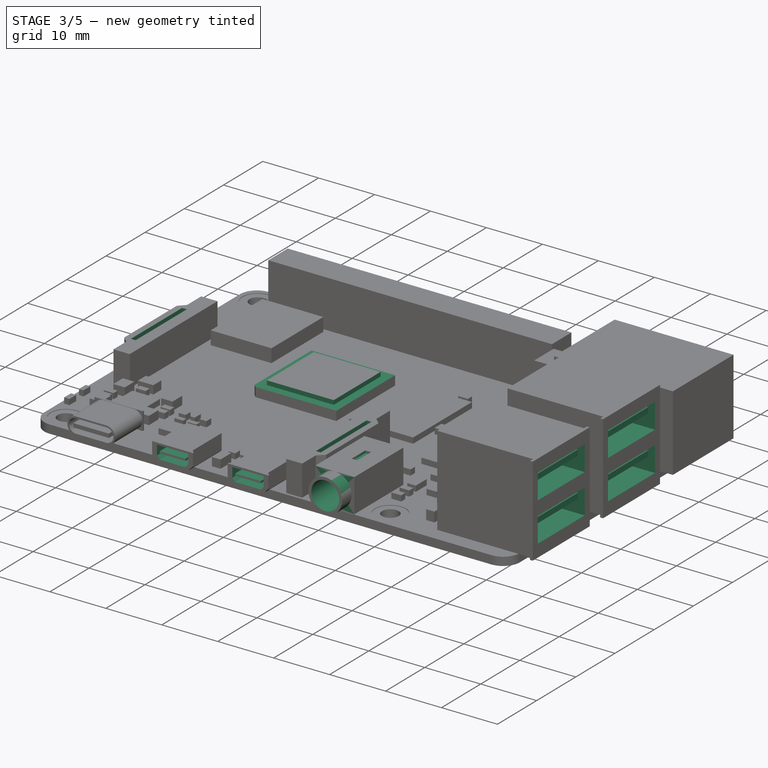
[diagram: stage 3 of 5 — iso view after this stage's code; geometry added in this stage tinted green]
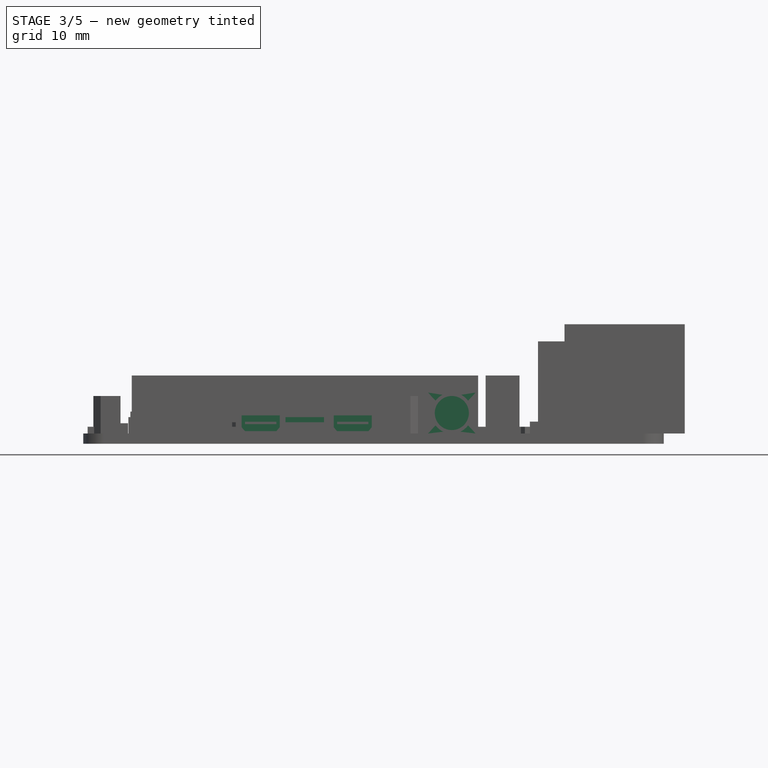
[diagram: stage 3 of 5 — front view after this stage's code; geometry added in this stage tinted green]
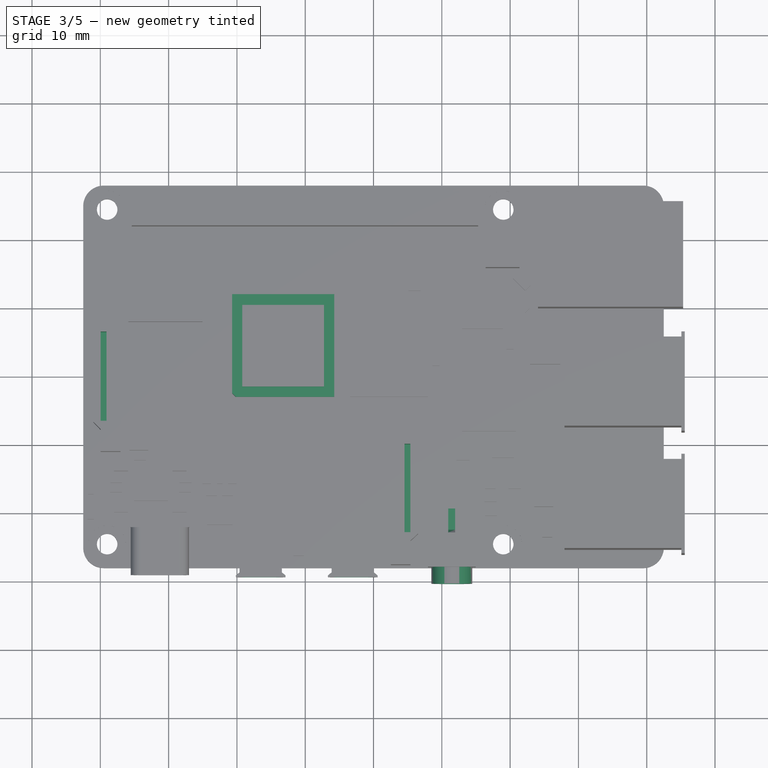
[diagram: stage 3 of 5 — top view after this stage's code; geometry added in this stage tinted green]
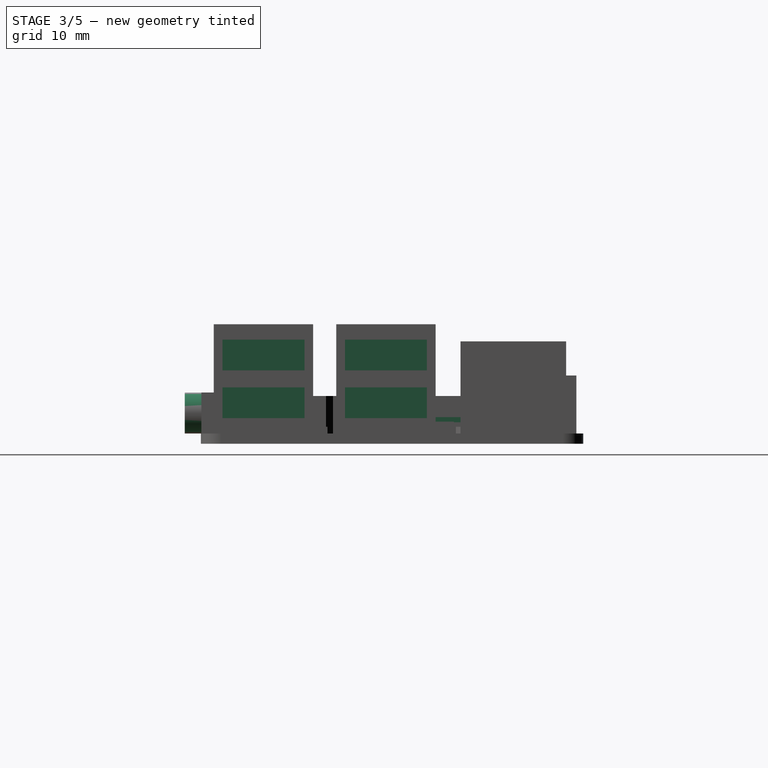
[diagram: stage 3 of 5 — right view after this stage's code; geometry added in this stage tinted green]
FEATURE [Sketcher::SketchObject] Sketch019
  ArcFitTolerance = 1e-06
  AttachmentSupport = -> [Pocket002]
  ExternalGeometry = -> [Pocket002]
  FullyConstrained = true
  MakeInternals = false
  MapMode = 5
  Placement = pos=(0,-29.37,0) rot=(1,0,0;1.5708rad)
  sketch-geometry (15):
    g0: LineSegment StartX=-13.63 StartY=1.5 StartZ=0 EndX=-12.88 EndY=1.5 EndZ=0
    g1: LineSegment StartX=-12.88 StartY=1.5 StartZ=0 EndX=-12.88 EndY=2.35 EndZ=0
    g2: LineSegment StartX=-12.88 StartY=2.35 StartZ=0 EndX=-13.63 EndY=1.5 EndZ=0
    g3: LineSegment StartX=-20.16 StartY=2.35 StartZ=0 EndX=-20.16 EndY=1.5 EndZ=0
    g4: LineSegment StartX=-20.16 StartY=1.5 StartZ=0 EndX=-19.41 EndY=1.5 EndZ=0
    g5: LineSegment StartX=-19.41 StartY=1.5 StartZ=0 EndX=-20.16 EndY=2.35 EndZ=0
    g6: GeomPoint X=-16.52 Y=4.5 Z=0
    g7: LineSegment [constr] StartX=-16.52 StartY=4.5 StartZ=0 EndX=-16.52 EndY=1.5 EndZ=0
    g8: LineSegment StartX=-6.68 StartY=2.35 StartZ=0 EndX=-6.68 EndY=1.5 EndZ=0
    g9: LineSegment StartX=-6.68 StartY=1.5 StartZ=0 EndX=-5.93 EndY=1.50001 EndZ=0
    g10: LineSegment StartX=-5.93 StartY=1.50001 StartZ=0 EndX=-6.68 EndY=2.35 EndZ=0
    g11: LineSegment StartX=-0.15 StartY=1.50001 StartZ=0 EndX=0.6 EndY=1.50001 EndZ=0
    g12: LineSegment StartX=0.6 StartY=1.50001 StartZ=0 EndX=0.6 EndY=2.35001 EndZ=0
    g13: LineSegment StartX=0.6 StartY=2.35001 StartZ=0 EndX=-0.15 EndY=1.50001 EndZ=0
    g14: LineSegment [constr] StartX=-3.04 StartY=4.5 StartZ=0 EndX=-3.04 EndY=1.50001 EndZ=0
  constraints (40):
    c: Horizontal(g0)
    c: Coincident(g0,g1)
    c: Coincident(g1,g2)
    c: Coincident(g2,g0)
    c: Vertical(g3)
    c: Coincident(g3,g4)
    c: Horizontal(g4)
    c: Coincident(g4,g5)
    c: Coincident(g5,g3)
    c: Equal(g4,g0)
    c: Horizontal(g-10,g0)
    c: Horizontal(g0,g4)
    c: Horizontal(g3,g1)
    c: Vertical(g1)
    c: PointOnObject(g3,g-12)
    c: PointOnObject(g1,g-11)
    c: Symmetric(g-13,g-13,g6)
    c: Coincident(g7,g6)
    c: Symmetric(g4,g0,g7)
    c: DistanceY(g3,g3) = 0.85
    c: DistanceX(g4,g4) = 0.75
    c: Vertical(g8)
    c: Coincident(g8,g9)
    c: Coincident(g9,g10)
    c: Coincident(g10,g8)
    c: Horizontal(g11)
    c: Coincident(g11,g12)
    c: Vertical(g12)
    c: Coincident(g12,g13)
    c: Coincident(g13,g11)
    c: Equal(g9,g0)
    c: Coincident(g8,g-14)
    c: Symmetric(g-15,g-15,g14)
    c: Vertical(g14)
    c: Symmetric(g9,g11,g14)
    c: Equal(g8,g1)
    c: Equal(g9,g11)
    c: Equal(g12,g8)
    c: Vertical(g12,g-15)
    c: Horizontal(g11,g9)
FEATURE [PartDesign::Pocket] Pocket003  label="MicroHDMIPocket"
  BaseFeature = -> Pocket002
  Direction = (0,1,-2e-16)
  Length = 0
  Length2 = 5
  Profile = -> Sketch019
  ReferenceAxis = -> Sketch019 [N_Axis]
  Refine = true
  Suppressed = false
  Type = 3
  UpToFace = -> Pocket002 [Face36]
FEATURE [Sketcher::SketchObject] Sketch020
  ArcFitTolerance = 1e-06
  AttachmentSupport = -> [Pocket003]
  ExternalGeometry = -> [Pocket003]
  FullyConstrained = true
  MakeInternals = false
  MapMode = 5
  Placement = pos=(0,-29.37,0) rot=(1,0,0;1.5708rad)
  sketch-geometry (30):
    g0: LineSegment StartX=-19.31 StartY=4.15 StartZ=0 EndX=-13.73 EndY=4.15 EndZ=0
    g1: LineSegment StartX=-13.73 StartY=4.15 StartZ=0 EndX=-13.73 EndY=2.41666 EndZ=0
    g2: LineSegment StartX=-13.73 StartY=2.41666 StartZ=0 EndX=-14.23 EndY=1.85 EndZ=0
    g3: LineSegment StartX=-14.23 StartY=1.85 StartZ=0 EndX=-18.81 EndY=1.85 EndZ=0
    g4: LineSegment StartX=-18.81 StartY=1.85 StartZ=0 EndX=-19.31 EndY=2.41666 EndZ=0
    g5: LineSegment StartX=-19.31 StartY=4.15 StartZ=0 EndX=-19.31 EndY=2.41666 EndZ=0
    g6: GeomPoint X=-16.52 Y=4.5 Z=0
    g7: GeomPoint X=-16.52 Y=4.15 Z=0
    g8: GeomPoint X=-16.52 Y=1.85 Z=0
    g9: GeomPoint X=-19.06 Y=2.13333 Z=0
    g10: LineSegment StartX=-18.81 StartY=3.21666 StartZ=0 EndX=-18.81 EndY=2.86666 EndZ=0
    g11: LineSegment StartX=-18.81 StartY=2.86666 StartZ=0 EndX=-14.23 EndY=2.86666 EndZ=0
    g12: LineSegment StartX=-14.23 StartY=2.86666 StartZ=0 EndX=-14.23 EndY=3.21666 EndZ=0
    g13: LineSegment StartX=-14.23 StartY=3.21666 StartZ=0 EndX=-18.81 EndY=3.21666 EndZ=0
    g14: GeomPoint X=-16.52 Y=3.21666 Z=0
    g15: LineSegment StartX=-5.83 StartY=4.15 StartZ=0 EndX=-5.83 EndY=2.41666 EndZ=0
    g16: LineSegment StartX=-5.83 StartY=2.41666 StartZ=0 EndX=-5.33 EndY=1.85 EndZ=0
    g17: LineSegment StartX=-5.33 StartY=1.85 StartZ=0 EndX=-0.75 EndY=1.85 EndZ=0
    g18: LineSegment StartX=-0.75 StartY=1.85 StartZ=0 EndX=-0.25 EndY=2.41666 EndZ=0
    g19: LineSegment StartX=-0.25 StartY=2.41666 StartZ=0 EndX=-0.25 EndY=4.15 EndZ=0
    g20: LineSegment StartX=-0.25 StartY=4.15 StartZ=0 EndX=-5.83 EndY=4.15 EndZ=0
    g21: GeomPoint X=-3.04 Y=4.15 Z=0
    g22: GeomPoint X=-3.04 Y=1.85 Z=0
    g23: LineSegment StartX=-5.33 StartY=3.21666 StartZ=0 EndX=-5.33 EndY=2.86666 EndZ=0
    g24: LineSegment StartX=-5.33 StartY=2.86666 StartZ=0 EndX=-0.75 EndY=2.86666 EndZ=0
    g25: LineSegment StartX=-0.75 StartY=2.86666 StartZ=0 EndX=-0.75 EndY=3.21666 EndZ=0
    g26: LineSegment StartX=-0.75 StartY=3.21666 StartZ=0 EndX=-5.33 EndY=3.21666 EndZ=0
    g27: GeomPoint X=-3.04 Y=2.86666 Z=0
    g28: GeomPoint X=-3.04 Y=4.5 Z=0
    g29: GeomPoint X=-5.58 Y=2.13333 Z=0
  constraints (70):
    c: Horizontal(g0)
    c: Coincident(g0,g1)
    c: Vertical(g1)
    c: Coincident(g1,g2)
    c: Coincident(g2,g3)
    c: Horizontal(g3)
    c: Coincident(g3,g4)
    c: Coincident(g5,g4)
    c: Vertical(g5)
    c: Horizontal(g4,g1)
    c: DistanceX(g0,g-3) = 0.85
    c: DistanceY(g0,g-3) = 0.35
    c: Symmetric(g-3,g-3,g6)
    c: Symmetric(g0,g0,g7)
    c: Vertical(g7,g6)
    c: Coincident(g5,g0)
    c: Equal(g2,g4)
    c: Symmetric(g3,g3,g8)
    c: Symmetric(g4,g4,g9)
    c: Coincident(g10,g11)
    c: Coincident(g11,g12)
    c: Coincident(g12,g13)
    c: Coincident(g13,g10)
    c: Vertical(g10)
    c: Vertical(g12)
    c: Horizontal(g11)
    c: Horizontal(g13)
    c: DistanceY(g1,g11) = 0.45
    c: DistanceY(g12,g12) = 0.35
    c: Symmetric(g13,g13,g14)
    c: Vertical(g14,g7)
    c: Vertical(g10,g3)
    c: Vertical(g15)
    c: Coincident(g15,g16)
    c: Coincident(g16,g17)
    c: Horizontal(g17)
    c: Coincident(g17,g18)
    c: Coincident(g18,g19)
    c: Vertical(g19)
    c: Coincident(g19,g20)
    c: Coincident(g20,g15)
    c: Horizontal(g20)
    c: Symmetric(g20,g20,g21)
    c: Coincident(g23,g24)
    c: Coincident(g24,g25)
    c: Coincident(g25,g26)
    c: Coincident(g26,g23)
    c: Vertical(g23)
    c: Vertical(g25)
    c: Horizontal(g24)
    c: Horizontal(g26)
    c: Symmetric(g24,g24,g27)
    c: Vertical(g27,g22)
    c: Symmetric(g-6,g-6,g28)
    c: Vertical(g28,g21)
    c: Vertical(g27,g21)
    c: Equal(g18,g16)
    c: Parallel(g-7,g16)
    c: Symmetric(g16,g16,g29)
    c: DistanceY(g15,g-6) = 0.35
    c: Equal(g12,g25)
    c: Equal(g26,g13)
    c: Equal(g1,g15)
    c: Horizontal(g23,g11)
    c: Equal(g17,g3)
    c: Horizontal(g2,g16)
    c: Symmetric(g17,g16,g22)
    c: DistanceY(g-4,g3) = 0.35
    c: DistanceX(g-4,g3) = 0.6
    c: DistanceX(g-6,g15) = 0.85
FEATURE [PartDesign::Pocket] Pocket004  label="MicroHDMI2Pocket"
  BaseFeature = -> Pocket003
  Direction = (0,1,-2e-16)
  Length = 7
  Length2 = 5
  Profile = -> Sketch020
  ReferenceAxis = -> Sketch020 [N_Axis]
  Refine = true
  Suppressed = false
  Type = 0
FEATURE [Sketcher::SketchObject] Sketch021
  ArcFitTolerance = 1e-06
  AttachmentSupport = -> [Pocket004]
  ExternalGeometry = -> [Pocket004]
  FullyConstrained = true
  MakeInternals = false
  MapMode = 5
  Placement = pos=(0,0,7) rot=(0,0,1;0rad)
  sketch-geometry (12):
    g0: LineSegment StartX=-39.95 StartY=6.53 StartZ=0 EndX=-39.95 EndY=-6.53 EndZ=0
    g1: LineSegment StartX=-39.95 StartY=-6.53 StartZ=0 EndX=-39.1 EndY=-6.53 EndZ=0
    g2: LineSegment StartX=-39.1 StartY=-6.53 StartZ=0 EndX=-39.1 EndY=6.53 EndZ=0
    g3: LineSegment StartX=-39.1 StartY=6.53 StartZ=0 EndX=-39.95 EndY=6.53 EndZ=0
    g4: GeomPoint X=-41.01 Y=-3e-16 Z=0
    g5: GeomPoint X=-39.95 Y=-3e-16 Z=0
    g6: LineSegment StartX=4.54188 StartY=-9.9 StartZ=0 EndX=4.54188 EndY=-22.84 EndZ=0
    g7: LineSegment StartX=4.54188 StartY=-22.84 StartZ=0 EndX=5.39188 EndY=-22.84 EndZ=0
    g8: LineSegment StartX=5.39188 StartY=-22.84 StartZ=0 EndX=5.39188 EndY=-9.9 EndZ=0
    g9: LineSegment StartX=5.39188 StartY=-9.9 StartZ=0 EndX=4.54188 EndY=-9.9 EndZ=0
    g10: GeomPoint X=6.51 Y=-16.37 Z=0
    g11: GeomPoint X=5.39188 Y=-16.37 Z=0
  constraints (28):
    c: Coincident(g0,g1)
    c: Coincident(g1,g2)
    c: Coincident(g2,g3)
    c: Coincident(g3,g0)
    c: Vertical(g0)
    c: Vertical(g2)
    c: Horizontal(g1)
    c: Horizontal(g3)
    c: Symmetric(g-5,g-5,g4)
    c: Symmetric(g0,g0,g5)
    c: Horizontal(g5,g4)
    c: DistanceY(g0,g-3) = 1.25
    c: DistanceX(g3,g3) = 0.85
    c: Vertical(g0,g-4)
    c: Coincident(g6,g7)
    c: Coincident(g7,g8)
    c: Coincident(g8,g9)
    c: Coincident(g9,g6)
    c: Vertical(g6)
    c: Vertical(g8)
    c: Horizontal(g7)
    c: Horizontal(g9)
    c: Symmetric(g-7,g-7,g10)
    c: Symmetric(g8,g8,g11)
    c: Horizontal(g11,g10)
    c: Vertical(g8,g-6)
    c: DistanceY(g-6,g7) = 1.25
    c: DistanceX(g9,g9) = 0.85
FEATURE [PartDesign::Pocket] Pocket005  label="Display&CamPocket"
  BaseFeature = -> Pocket004
  Direction = (0,0,-1)
  Length = 5
  Length2 = 5
  Profile = -> Sketch021
  ReferenceAxis = -> Sketch021 [N_Axis]
  Refine = true
  Suppressed = false
  Type = 0
FEATURE [Sketcher::SketchObject] Sketch022
  ArcFitTolerance = 1e-06
  AttachmentSupport = -> [Pocket005]
  ExternalGeometry = -> [Pocket005]
  FullyConstrained = true
  MakeInternals = false
  MapMode = 5
  Placement = pos=(0,0,3.9) rot=(0,0,1;0rad)
  sketch-geometry (13):
    g0: LineSegment StartX=-19.21 StartY=10.5 StartZ=0 EndX=-7.25 EndY=10.5 EndZ=0
    g1: LineSegment StartX=-7.25 StartY=10.5 StartZ=0 EndX=-7.25 EndY=-1.46 EndZ=0
    g2: LineSegment StartX=-7.25 StartY=-1.46 StartZ=0 EndX=-19.21 EndY=-1.46 EndZ=0
    g3: LineSegment StartX=-19.21 StartY=-1.46 StartZ=0 EndX=-19.21 EndY=10.5 EndZ=0
    g4: GeomPoint X=-7.25 Y=4.52 Z=0
    g5: GeomPoint X=-5.75 Y=4.52 Z=0
    g6: GeomPoint X=-13.23 Y=10.5 Z=0
    g7: GeomPoint X=-13.23 Y=12.08 Z=0
    g8: LineSegment StartX=-20.71 StartY=12.08 StartZ=0 EndX=-5.75 EndY=12.08 EndZ=0
    g9: LineSegment StartX=-5.75 StartY=12.08 StartZ=0 EndX=-5.75 EndY=-2.96 EndZ=0
    g10: LineSegment StartX=-5.75 StartY=-2.96 StartZ=0 EndX=-20.17 EndY=-2.96 EndZ=0
    g11: LineSegment StartX=-20.17 StartY=-2.96 StartZ=0 EndX=-20.71 EndY=-2.43 EndZ=0
    g12: LineSegment StartX=-20.71 StartY=-2.43 StartZ=0 EndX=-20.71 EndY=12.08 EndZ=0
  constraints (27):
    c: Horizontal(g0)
    c: Coincident(g0,g1)
    c: Vertical(g1)
    c: Coincident(g1,g2)
    c: Horizontal(g2)
    c: Coincident(g3,g0)
    c: Vertical(g3)
    c: DistanceX(g1,g-5) = 1.5
    c: DistanceY(g-5,g1) = 1.5
    c: Equal(g2,g3)
    c: Symmetric(g1,g1,g4)
    c: PointOnObject(g5,g-4)
    c: Horizontal(g5,g4)
    c: Symmetric(g-7,g-7,g7)
    c: Symmetric(g0,g0,g6)
    c: Vertical(g7,g6)
    c: Coincident(g2,g3)
    c: Coincident(g-7,g8)
    c: Coincident(g8,g-7)
    c: Coincident(g8,g9)
    c: Coincident(g9,g-5)
    c: Coincident(g9,g10)
    c: Coincident(g10,g-6)
    c: Coincident(g10,g11)
    c: Coincident(g11,g-6)
    c: Coincident(g11,g12)
    c: Coincident(g12,g8)
FEATURE [PartDesign::Pocket] Pocket006  label="ProcesorPocket"
  BaseFeature = -> Pocket005
  Direction = (0,0,-1)
  Length = 0.75
  Length2 = 5
  Profile = -> Sketch022
  ReferenceAxis = -> Sketch022 [N_Axis]
  Refine = true
  Suppressed = false
  Type = 0
FEATURE [Sketcher::SketchObject] Sketch023
  ArcFitTolerance = 1e-06
  AttachmentSupport = -> [Pocket006]
  ExternalGeometry = -> [Pocket006]
  FullyConstrained = true
  MakeInternals = false
  MapMode = 5
  Placement = pos=(0,-30.36,0) rot=(1,0,0;1.5708rad)
  sketch-geometry (8):
    g0: Circle CenterX=11.465 CenterY=4.5 CenterZ=0 NormalX=0 NormalY=0 NormalZ=1 AngleXU=0 Radius=2.995
    g1: LineSegment [constr] StartX=8.47 StartY=7.5 StartZ=0 EndX=14.46 EndY=1.5 EndZ=0
    g2: GeomPoint [constr] X=11.465 Y=4.5 Z=0
    g3: GeomPoint [constr] X=11.465 Y=4.5 Z=0
    g4: LineSegment StartX=8.47 StartY=7.5 StartZ=0 EndX=14.46 EndY=7.5 EndZ=0
    g5: LineSegment StartX=14.46 StartY=7.5 StartZ=0 EndX=14.46 EndY=1.5 EndZ=0
    g6: LineSegment StartX=14.46 StartY=1.5 StartZ=0 EndX=8.47 EndY=1.5 EndZ=0
    g7: LineSegment StartX=8.47 StartY=1.5 StartZ=0 EndX=8.47 EndY=7.5 EndZ=0
  constraints (14):
    c: Coincident(g1,g-3)
    c: Coincident(g1,g-4)
    c: Coincident(g2,g0)
    c: Symmetric(g1,g1,g3)
    c: Coincident(g0,g3)
    c: Coincident(g1,g4)
    c: Coincident(g4,g-5)
    c: Coincident(g4,g5)
    c: Coincident(g5,g1)
    c: Coincident(g5,g6)
    c: Coincident(g6,g-6)
    c: Coincident(g6,g7)
    c: Coincident(g7,g4)
    c: Tangent(g0,g5)
FEATURE [PartDesign::Pocket] Pocket007  label="AudioPocket"
  BaseFeature = -> Pocket006
  Direction = (0,1,-2e-16)
  Length = 0
  Length2 = 5
  Profile = -> Sketch023
  ReferenceAxis = -> Sketch023 [N_Axis]
  Refine = true
  Suppressed = false
  Type = 3
  UpToFace = -> Pocket006 [Face27]
FEATURE [Sketcher::SketchObject] Sketch024
  ArcFitTolerance = 1e-06
  AttachmentSupport = -> [Pocket007]
  ExternalGeometry = -> [Pocket007]
  FullyConstrained = true
  MakeInternals = false
  MapMode = 5
  Placement = pos=(0,-30.36,0) rot=(1,0,0;1.5708rad)
  sketch-geometry (2):
    g0: Circle CenterX=11.465 CenterY=4.5 CenterZ=0 NormalX=0 NormalY=0 NormalZ=1 AngleXU=0 Radius=2.495
    g1: GeomPoint X=13.96 Y=4.5 Z=0
  constraints (4):
    c: Coincident(g0,g-3)
    c: PointOnObject(g1,g0)
    c: Horizontal(g1,g0)
    c: DistanceX(g1,g-3) = 0.5
FEATURE [PartDesign::Pocket] Pocket008  label="Audio2Pocket"
  BaseFeature = -> Pocket007
  Direction = (0,1,-2e-16)
  Length = 13
  Length2 = 5
  Profile = -> Sketch024
  ReferenceAxis = -> Sketch024 [N_Axis]
  Refine = true
  Suppressed = false
  Type = 0
FEATURE [Sketcher::SketchObject] Sketch025  label="PerforationAudioSketch"
  ArcFitTolerance = 1e-06
  AttachmentSupport = -> [Pocket008]
  ExternalGeometry = -> [Pocket008]
  FullyConstrained = true
  MakeInternals = false
  MapMode = 5
  Placement = pos=(14.95,0,0) rot=(0.57735,0.57735,0.57735;2.0944rad)
  sketch-geometry (4):
    g0: LineSegment StartX=-22.89 StartY=7.5 StartZ=0 EndX=-22.49 EndY=7.1 EndZ=0
    g1: LineSegment StartX=-22.49 StartY=7.1 StartZ=0 EndX=-19.39 EndY=7.1 EndZ=0
    g2: LineSegment StartX=-19.39 StartY=7.1 StartZ=0 EndX=-19.39 EndY=7.5 EndZ=0
    g3: LineSegment StartX=-19.39 StartY=7.5 StartZ=0 EndX=-22.89 EndY=7.5 EndZ=0
  constraints (12):
    c: PointOnObject(g0,g-3)
    c: Coincident(g0,g1)
    c: Horizontal(g1)
    c: Coincident(g1,g2)
    c: PointOnObject(g2,g-3)
    c: Vertical(g2)
    c: Coincident(g2,g3)
    c: Coincident(g3,g0)
    c: Angle(g0,g1,g0) = 0.785398
    c: DistanceX(g3,g3) = 3.5
    c: DistanceY(g2,g2) = 0.4
    c: DistanceX(g1,g-4) = 4
FEATURE [PartDesign::Plane] DatumPlane  label="AudioReference"
  AttachmentOffset = pos=(0,0,-3.5) rot=(0,0,1;0rad)
  AttachmentSupport = -> [Sketch025]
  Length = 69.1637
  MapMode = 2
  Placement = pos=(11.45,0,0) rot=(0.57735,0.57735,0.57735;2.0944rad)
  ResizeMode = 0
  Width = 60.8037
FEATURE [Sketcher::SketchObject] Sketch026
  ArcFitTolerance = 1e-06
  AttachmentSupport = -> [DatumPlane]
  ExternalGeometry = -> [Sketch025]
  FullyConstrained = true
  MakeInternals = false
  MapMode = 5
  Placement = pos=(11.45,0,0) rot=(0.57735,0.57735,0.57735;2.0944rad)
  sketch-geometry (4):
    g0: LineSegment StartX=-22.89 StartY=7.5 StartZ=0 EndX=-22.49 EndY=7.1 EndZ=0
    g1: LineSegment StartX=-22.49 StartY=7.1 StartZ=0 EndX=-19.39 EndY=7.1 EndZ=0
    g2: LineSegment StartX=-19.39 StartY=7.1 StartZ=0 EndX=-19.39 EndY=7.5 EndZ=0
    g3: LineSegment StartX=-19.39 StartY=7.5 StartZ=0 EndX=-22.89 EndY=7.5 EndZ=0
  constraints (8):
    c: Coincident(g-5,g0)
    c: Coincident(g0,g-5)
    c: Coincident(g0,g1)
    c: Coincident(g1,g-4)
    c: Coincident(g1,g2)
    c: Coincident(g2,g-4)
    c: Coincident(g2,g3)
    c: Coincident(g3,g0)
FEATURE [PartDesign::Pocket] Pocket009  label="Audio3Pocket"
  BaseFeature = -> Pocket008
  Direction = (-1,0,0)
  Length = 0.5
  Length2 = 0.5
  Profile = -> Sketch026
  ReferenceAxis = -> Sketch026 [N_Axis]
  Refine = true
  Suppressed = false
  Type = 4
FEATURE [Sketcher::SketchObject] Sketch027
  ArcFitTolerance = 1e-06
  AttachmentSupport = -> [Pocket009]
  ExternalGeometry = -> [Pocket009]
  FullyConstrained = true
  MakeInternals = false
  MapMode = 5
  Placement = pos=(45.57,0,0) rot=(0.57735,0.57735,0.57735;2.0944rad)
  sketch-geometry (25):
    g0: LineSegment StartX=-24.825 StartY=15.25 StartZ=0 EndX=-24.825 EndY=10.75 EndZ=0
    g1: LineSegment StartX=-24.825 StartY=10.75 StartZ=0 EndX=-12.825 EndY=10.75 EndZ=0
    g2: LineSegment StartX=-12.825 StartY=10.75 StartZ=0 EndX=-12.825 EndY=15.25 EndZ=0
    g3: LineSegment StartX=-12.825 StartY=15.25 StartZ=0 EndX=-24.825 EndY=15.25 EndZ=0
    g4: LineSegment StartX=-24.825 StartY=8.25 StartZ=0 EndX=-24.825 EndY=3.75 EndZ=0
    g5: LineSegment StartX=-24.825 StartY=3.75 StartZ=0 EndX=-12.825 EndY=3.75 EndZ=0
    g6: LineSegment StartX=-12.825 StartY=3.75 StartZ=0 EndX=-12.825 EndY=8.25 EndZ=0
    g7: LineSegment StartX=-12.825 StartY=8.25 StartZ=0 EndX=-24.825 EndY=8.25 EndZ=0
    g8: LineSegment StartX=-6.895 StartY=15.25 StartZ=0 EndX=-6.895 EndY=10.75 EndZ=0
    g9: LineSegment StartX=-6.895 StartY=10.75 StartZ=0 EndX=5.105 EndY=10.75 EndZ=0
    g10: LineSegment StartX=5.105 StartY=10.75 StartZ=0 EndX=5.105 EndY=15.25 EndZ=0
    g11: LineSegment StartX=5.105 StartY=15.25 StartZ=0 EndX=-6.895 EndY=15.25 EndZ=0
    g12: LineSegment StartX=-6.895 StartY=8.25 StartZ=0 EndX=-6.895 EndY=3.75 EndZ=0
    g13: LineSegment StartX=-6.895 StartY=3.75 StartZ=0 EndX=5.105 EndY=3.75 EndZ=0
    g14: LineSegment StartX=5.105 StartY=3.75 StartZ=0 EndX=5.105 EndY=8.25 EndZ=0
    g15: LineSegment StartX=5.105 StartY=8.25 StartZ=0 EndX=-6.895 EndY=8.25 EndZ=0
    g16: GeomPoint X=-0.895 Y=15.25 Z=0
    g17: GeomPoint X=-18.825 Y=15.25 Z=0
    g18: GeomPoint X=-18.825 Y=17.5 Z=0
    g19: GeomPoint X=-0.895 Y=17.5 Z=0
    g20: GeomPoint X=-18.825 Y=8.25 Z=0
    g21: GeomPoint X=-0.895 Y=8.25 Z=0
    g22: LineSegment [constr] StartX=-12.825 StartY=8.25 StartZ=0 EndX=-12.825 EndY=10.75 EndZ=0
    g23: LineSegment [constr] StartX=-12.825 StartY=15.25 StartZ=0 EndX=-12.825 EndY=17.5 EndZ=0
    g24: LineSegment [constr] StartX=-12.825 StartY=3.75 StartZ=0 EndX=-12.825 EndY=1.5 EndZ=0
  constraints (62):
    c: Coincident(g0,g1)
    c: Coincident(g1,g2)
    c: Coincident(g2,g3)
    c: Coincident(g3,g0)
    c: Vertical(g0)
    c: Vertical(g2)
    c: Horizontal(g1)
    c: Horizontal(g3)
    c: Coincident(g4,g5)
    c: Coincident(g5,g6)
    c: Coincident(g6,g7)
    c: Coincident(g7,g4)
    c: Vertical(g4)
    c: Vertical(g6)
    c: Horizontal(g5)
    c: Horizontal(g7)
    c: Coincident(g8,g9)
    c: Coincident(g9,g10)
    c: Coincident(g10,g11)
    c: Coincident(g11,g8)
    c: Vertical(g8)
    c: Vertical(g10)
    c: Horizontal(g9)
    c: Horizontal(g11)
    c: Coincident(g12,g13)
    c: Coincident(g13,g14)
    c: Coincident(g14,g15)
    c: Coincident(g15,g12)
    c: Vertical(g12)
    c: Vertical(g14)
    c: Horizontal(g13)
    c: Horizontal(g15)
    c: Symmetric(g11,g11,g16)
    c: Symmetric(g3,g3,g17)
    c: Symmetric(g-3,g-3,g18)
    c: Symmetric(g-4,g-4,g19)
    c: Vertical(g16,g19)
    c: Vertical(g17,g18)
    c: Symmetric(g7,g7,g20)
    c: Symmetric(g15,g15,g21)
    c: Vertical(g21,g16)
    c: Vertical(g20,g17)
    c: Equal(g2,g6)
    c: Horizontal(g12,g6)
    c: Equal(g12,g6)
    c: Equal(g8,g2)
    c: Horizontal(g2,g8)
    c: Vertical(g6,g1)
    c: Vertical(g12,g8)
    c: DistanceX(g1,g1) = 12
    c: DistanceY(g0,g0) = 4.5
    c: Coincident(g22,g6)
    c: Coincident(g22,g1)
    c: Coincident(g23,g2)
    c: PointOnObject(g23,g-3)
    c: Coincident(g24,g5)
    c: PointOnObject(g24,g-5)
    c: Vertical(g24)
    c: Vertical(g23)
    c: Equal(g23,g24)
    c: DistanceY(g22,g22) = 2.5
    c: Equal(g15,g7)
FEATURE [PartDesign::Pocket] Pocket010  label="USBPocket"
  BaseFeature = -> Pocket009
  Direction = (-1,0,0)
  Length = 14
  Length2 = 5
  Profile = -> Sketch027
  ReferenceAxis = -> Sketch027 [N_Axis]
  Refine = true
  Suppressed = false
  Type = 0
FEATURE [Sketcher::SketchObject] Sketch028
  ArcFitTolerance = 1e-06
  AttachmentSupport = -> [Pocket010]
  ExternalGeometry = -> [Pocket010]
  FullyConstrained = true
  MakeInternals = false
  MapMode = 5
  Placement = pos=(31.57,0,0) rot=(0.57735,0.57735,0.57735;2.0944rad)
  sketch-geometry (22):
    g0: LineSegment StartX=-24.475 StartY=14.25 StartZ=0 EndX=-24.475 EndY=13.25 EndZ=0
    g1: LineSegment StartX=-24.475 StartY=13.25 StartZ=0 EndX=-13.175 EndY=13.25 EndZ=0
    g2: LineSegment StartX=-13.175 StartY=13.25 StartZ=0 EndX=-13.175 EndY=14.25 EndZ=0
    g3: LineSegment StartX=-13.175 StartY=14.25 StartZ=0 EndX=-24.475 EndY=14.25 EndZ=0
    g4: LineSegment StartX=-6.545 StartY=14.25 StartZ=0 EndX=-6.545 EndY=13.25 EndZ=0
    g5: LineSegment StartX=-6.545 StartY=13.25 StartZ=0 EndX=4.755 EndY=13.25 EndZ=0
    g6: LineSegment StartX=4.755 StartY=13.25 StartZ=0 EndX=4.755 EndY=14.25 EndZ=0
    g7: LineSegment StartX=4.755 StartY=14.25 StartZ=0 EndX=-6.545 EndY=14.25 EndZ=0
    g8: LineSegment StartX=-24.475 StartY=7.25 StartZ=0 EndX=-24.475 EndY=6.25 EndZ=0
    g9: LineSegment StartX=-24.475 StartY=6.25 StartZ=0 EndX=-13.175 EndY=6.25 EndZ=0
    g10: LineSegment StartX=-13.175 StartY=6.25 StartZ=0 EndX=-13.175 EndY=7.25 EndZ=0
    g11: LineSegment StartX=-13.175 StartY=7.25 StartZ=0 EndX=-24.475 EndY=7.25 EndZ=0
    g12: LineSegment StartX=-6.545 StartY=7.25 StartZ=0 EndX=-6.545 EndY=6.25 EndZ=0
    g13: LineSegment StartX=-6.545 StartY=6.25 StartZ=0 EndX=4.755 EndY=6.25 EndZ=0
    g14: LineSegment StartX=4.755 StartY=6.25 StartZ=0 EndX=4.755 EndY=7.25 EndZ=0
    g15: LineSegment StartX=4.755 StartY=7.25 StartZ=0 EndX=-6.545 EndY=7.25 EndZ=0
    g16: GeomPoint X=-18.825 Y=7.25 Z=0
    g17: GeomPoint X=-18.825 Y=14.25 Z=0
    g18: GeomPoint X=-18.825 Y=15.25 Z=0
    g19: GeomPoint X=-0.895 Y=15.25 Z=0
    g20: GeomPoint X=-0.895 Y=14.25 Z=0
    g21: GeomPoint X=-0.895 Y=7.25 Z=0
  constraints (54):
    c: Coincident(g0,g1)
    c: Coincident(g1,g2)
    c: Coincident(g2,g3)
    c: Coincident(g3,g0)
    c: Vertical(g0)
    c: Vertical(g2)
    c: Horizontal(g1)
    c: Horizontal(g3)
    c: Coincident(g4,g5)
    c: Coincident(g5,g6)
    c: Coincident(g6,g7)
    c: Coincident(g7,g4)
    c: Vertical(g4)
    c: Vertical(g6)
    c: Horizontal(g5)
    c: Horizontal(g7)
    c: Coincident(g8,g9)
    c: Coincident(g9,g10)
    c: Coincident(g10,g11)
    c: Coincident(g11,g8)
    c: Vertical(g8)
    c: Vertical(g10)
    c: Horizontal(g9)
    c: Horizontal(g11)
    c: Coincident(g12,g13)
    c: Coincident(g13,g14)
    c: Coincident(g14,g15)
    c: Coincident(g15,g12)
    c: Vertical(g12)
    c: Vertical(g14)
    c: Horizontal(g13)
    c: Horizontal(g15)
    c: Equal(g13,g5)
    c: Equal(g5,g1)
    c: Equal(g1,g9)
    c: Equal(g10,g2)
    c: Equal(g2,g4)
    c: Equal(g4,g12)
    c: Symmetric(g11,g11,g16)
    c: Symmetric(g3,g3,g17)
    c: Symmetric(g-3,g-3,g18)
    c: Symmetric(g-4,g-4,g19)
    c: Symmetric(g7,g7,g20)
    c: Symmetric(g15,g15,g21)
    c: Vertical(g21,g20)
    c: Vertical(g20,g19)
    c: Vertical(g16,g17)
    c: Vertical(g17,g18)
    c: DistanceX(g2,g-3) = 0.35
    c: DistanceY(g2,g-3) = 1
    c: DistanceY(g2,g2) = 1
    c: Horizontal(g4,g2)
    c: DistanceY(g10,g-5) = 1
    c: Horizontal(g12,g10)
FEATURE [PartDesign::Pad] Pad015  label="USB2Pocket"
  BaseFeature = -> Pocket010
  Direction = (1,0,0)
  Length = 13
  Length2 = 10
  Profile = -> Sketch028
  ReferenceAxis = -> Sketch028 [N_Axis]
  Refine = true
  Suppressed = false
  Type = 0
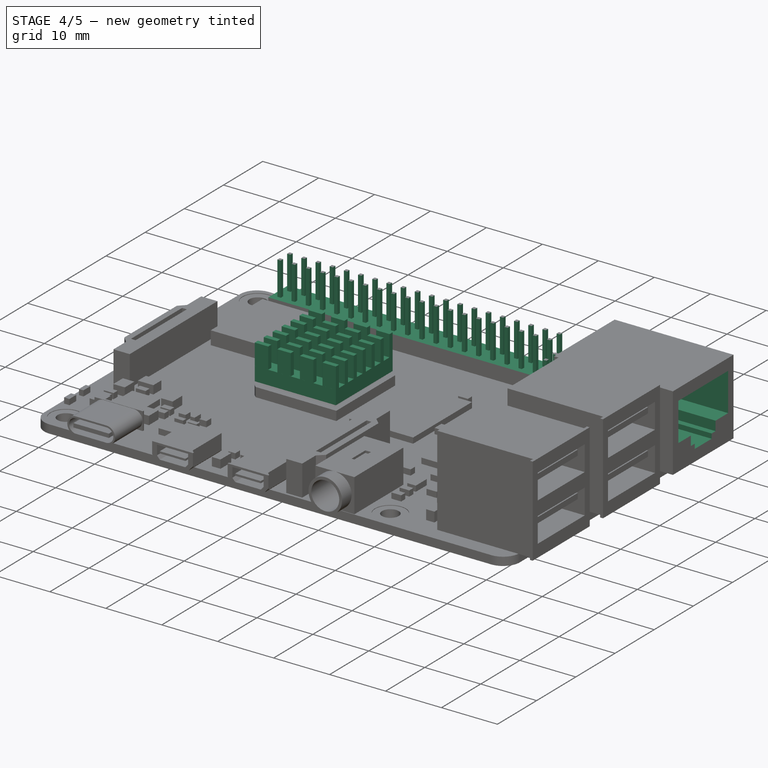
[diagram: stage 4 of 5 — iso view after this stage's code; geometry added in this stage tinted green]
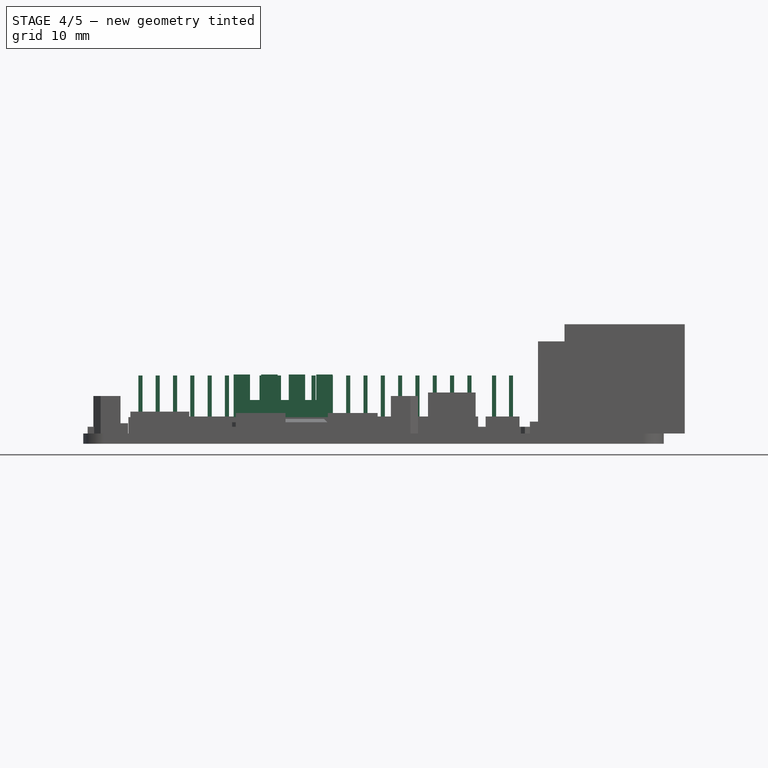
[diagram: stage 4 of 5 — front view after this stage's code; geometry added in this stage tinted green]
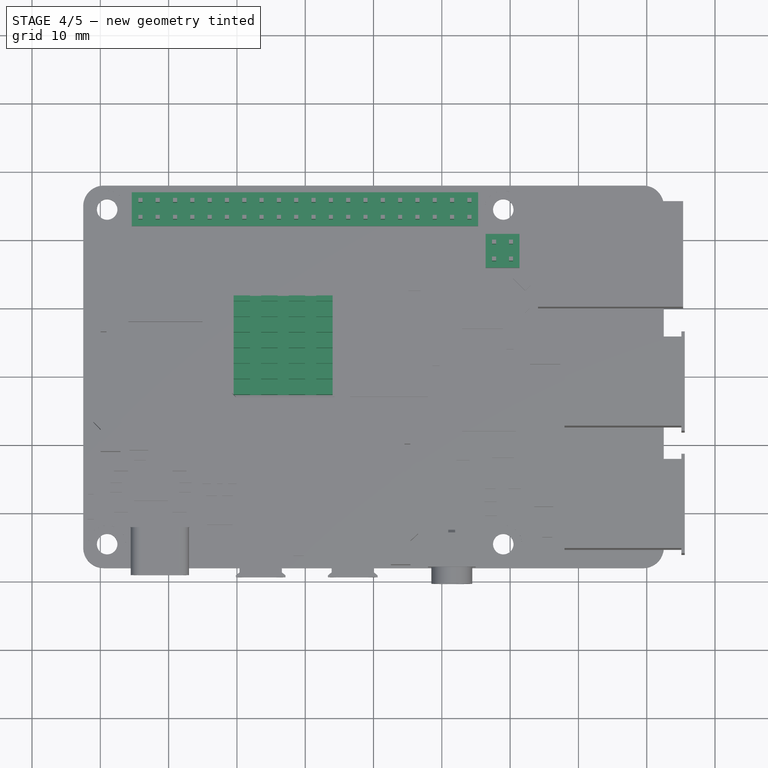
[diagram: stage 4 of 5 — top view after this stage's code; geometry added in this stage tinted green]
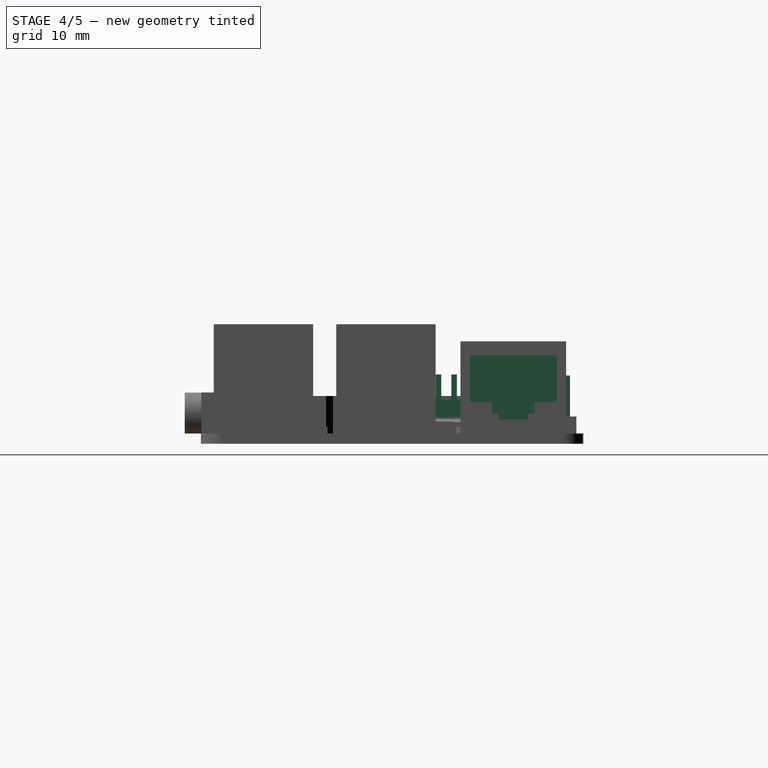
[diagram: stage 4 of 5 — right view after this stage's code; geometry added in this stage tinted green]
FEATURE [Sketcher::SketchObject] Sketch029
  ArcFitTolerance = 1e-06
  AttachmentSupport = -> [Pad015]
  ExternalGeometry = -> [Pad015]
  FullyConstrained = true
  MakeInternals = false
  MapMode = 5
  Placement = pos=(45.33,0,0) rot=(0.57735,0.57735,0.57735;2.0944rad)
  sketch-geometry (18):
    g0: LineSegment StartX=15.605 StartY=3.565 StartZ=0 EndX=19.905 EndY=3.565 EndZ=0
    g1: LineSegment StartX=19.905 StartY=3.565 StartZ=0 EndX=19.905 EndY=4.415 EndZ=0
    g2: LineSegment StartX=19.905 StartY=4.415 StartZ=0 EndX=20.905 EndY=4.415 EndZ=0
    g3: LineSegment StartX=20.905 StartY=4.415 StartZ=0 EndX=20.905 EndY=6.105 EndZ=0
    g4: LineSegment StartX=20.905 StartY=6.105 StartZ=0 EndX=24.105 EndY=6.105 EndZ=0
    g5: LineSegment StartX=24.105 StartY=6.105 StartZ=0 EndX=24.105 EndY=12.935 EndZ=0
    g6: LineSegment StartX=24.105 StartY=12.935 StartZ=0 EndX=11.405 EndY=12.935 EndZ=0
    g7: LineSegment StartX=11.405 StartY=12.935 StartZ=0 EndX=11.405 EndY=6.105 EndZ=0
    g8: LineSegment StartX=11.405 StartY=6.105 StartZ=0 EndX=14.605 EndY=6.105 EndZ=0
    g9: LineSegment StartX=14.605 StartY=6.105 StartZ=0 EndX=14.605 EndY=4.415 EndZ=0
    g10: LineSegment StartX=14.605 StartY=4.415 StartZ=0 EndX=15.605 EndY=4.415 EndZ=0
    g11: LineSegment StartX=15.605 StartY=4.415 StartZ=0 EndX=15.605 EndY=3.565 EndZ=0
    g12: GeomPoint X=17.755 Y=15 Z=0
    g13: GeomPoint X=17.755 Y=12.935 Z=0
    g14: GeomPoint X=17.755 Y=3.565 Z=0
    g15: LineSegment [constr] StartX=17.755 StartY=12.935 StartZ=0 EndX=17.755 EndY=3.565 EndZ=0
    g16: GeomPoint [constr] X=17.755 Y=8.25 Z=0
    g17: GeomPoint [constr] X=25.49 Y=8.25 Z=0
  constraints (43):
    c: Horizontal(g0)
    c: Coincident(g0,g1)
    c: Vertical(g1)
    c: Coincident(g1,g2)
    c: Coincident(g2,g3)
    c: Vertical(g3)
    c: Coincident(g3,g4)
    c: Coincident(g4,g5)
    c: Vertical(g5)
    c: Coincident(g5,g6)
    c: Horizontal(g6)
    c: Coincident(g6,g7)
    c: Vertical(g7)
    c: Coincident(g7,g8)
    c: Coincident(g8,g9)
    c: Coincident(g9,g10)
    c: Coincident(g10,g11)
    c: Coincident(g11,g0)
    c: Vertical(g11)
    c: Horizontal(g10)
    c: Horizontal(g2)
    c: Vertical(g9)
    c: Horizontal(g8)
    c: Horizontal(g4)
    c: Symmetric(g-3,g-3,g12)
    c: Symmetric(g6,g6,g13)
    c: Symmetric(g0,g0,g14)
    c: Vertical(g14,g13)
    c: Vertical(g13,g12)
    c: Equal(g2,g10)
    c: Horizontal(g8,g3)
    c: Horizontal(g10,g1)
    c: DistanceX(g6,g6) = 12.7
    c: DistanceY(g7,g6) = 6.83
    c: DistanceY(g9,g6) = 8.52
    c: DistanceX(g9,g2) = 6.3
    c: DistanceY(g0,g10) = 0.85
    c: Coincident(g15,g13)
    c: Coincident(g15,g14)
    c: Symmetric(g15,g15,g16)
    c: Symmetric(g-4,g-4,g17)
    c: Horizontal(g17,g16)
    c: DistanceX(g0,g0) = 4.3
FEATURE [PartDesign::Pocket] Pocket011  label="EthernetPocket"
  BaseFeature = -> Pad015
  Direction = (-1,0,0)
  Length = 20
  Length2 = 5
  Profile = -> Sketch029
  ReferenceAxis = -> Sketch029 [N_Axis]
  Refine = true
  Suppressed = false
  Type = 0
FEATURE [Sketcher::SketchObject] Sketch030
  ArcFitTolerance = 1e-06
  AttachmentSupport = -> [Pocket011]
  ExternalGeometry = -> [Pocket011]
  FullyConstrained = true
  MakeInternals = false
  MapMode = 5
  Placement = pos=(0,0,10) rot=(0,0,1;0rad)
  sketch-geometry (33):
    g0: LineSegment StartX=16.41 StartY=20.88 StartZ=0 EndX=16.41 EndY=15.92 EndZ=0
    g1: LineSegment StartX=16.41 StartY=15.92 StartZ=0 EndX=21.37 EndY=15.92 EndZ=0
    g2: LineSegment StartX=21.37 StartY=15.92 StartZ=0 EndX=21.37 EndY=20.88 EndZ=0
    g3: LineSegment StartX=21.37 StartY=20.88 StartZ=0 EndX=16.41 EndY=20.88 EndZ=0
    g4: LineSegment [constr] StartX=18.89 StartY=20.88 StartZ=0 EndX=18.89 EndY=15.92 EndZ=0
    g5: LineSegment StartX=17.35 StartY=19.94 StartZ=0 EndX=17.35 EndY=19.34 EndZ=0
    g6: LineSegment StartX=17.35 StartY=19.34 StartZ=0 EndX=17.95 EndY=19.34 EndZ=0
    g7: LineSegment StartX=17.95 StartY=19.34 StartZ=0 EndX=17.95 EndY=19.94 EndZ=0
    g8: LineSegment StartX=17.95 StartY=19.94 StartZ=0 EndX=17.35 EndY=19.94 EndZ=0
    g9: GeomPoint [constr] X=17.65 Y=19.64 Z=0
    g10: LineSegment StartX=19.83 StartY=19.94 StartZ=0 EndX=19.83 EndY=19.34 EndZ=0
    g11: LineSegment StartX=19.83 StartY=19.34 StartZ=0 EndX=20.43 EndY=19.34 EndZ=0
    g12: LineSegment StartX=20.43 StartY=19.34 StartZ=0 EndX=20.43 EndY=19.94 EndZ=0
    g13: LineSegment StartX=20.43 StartY=19.94 StartZ=0 EndX=19.83 EndY=19.94 EndZ=0
    g14: GeomPoint [constr] X=20.13 Y=19.64 Z=0
    g15: LineSegment StartX=17.35 StartY=17.46 StartZ=0 EndX=17.35 EndY=16.86 EndZ=0
    g16: LineSegment StartX=17.35 StartY=16.86 StartZ=0 EndX=17.95 EndY=16.86 EndZ=0
    g17: LineSegment StartX=17.95 StartY=16.86 StartZ=0 EndX=17.95 EndY=17.46 EndZ=0
    g18: LineSegment StartX=17.95 StartY=17.46 StartZ=0 EndX=17.35 EndY=17.46 EndZ=0
    g19: GeomPoint [constr] X=17.65 Y=17.16 Z=0
    g20: LineSegment StartX=19.83 StartY=16.86 StartZ=0 EndX=19.83 EndY=17.46 EndZ=0
    g21: LineSegment StartX=19.83 StartY=17.46 StartZ=0 EndX=20.43 EndY=17.46 EndZ=0
    g22: LineSegment StartX=20.43 StartY=17.46 StartZ=0 EndX=20.43 EndY=16.86 EndZ=0
    g23: LineSegment StartX=20.43 StartY=16.86 StartZ=0 EndX=19.83 EndY=16.86 EndZ=0
    g24: GeomPoint [constr] X=20.13 Y=17.16 Z=0
    g25: LineSegment [constr] StartX=17.65 StartY=19.64 StartZ=0 EndX=17.65 EndY=17.16 EndZ=0
    g26: LineSegment [constr] StartX=17.65 StartY=17.16 StartZ=0 EndX=20.13 EndY=17.16 EndZ=0
    g27: LineSegment [constr] StartX=20.13 StartY=17.16 StartZ=0 EndX=20.13 EndY=19.64 EndZ=0
    g28: LineSegment [constr] StartX=20.13 StartY=19.64 StartZ=0 EndX=17.65 EndY=19.64 EndZ=0
    g29: GeomPoint [constr] X=18.89 Y=18.4 Z=0
    g30: LineSegment [constr] StartX=16.41 StartY=18.4 StartZ=0 EndX=18.89 EndY=18.4 EndZ=0
    g31: LineSegment [constr] StartX=18.89 StartY=18.4 StartZ=0 EndX=21.37 EndY=18.4 EndZ=0
    g32: GeomPoint [constr] X=20.13 Y=18.4 Z=0
  constraints (79):
    c: DistanceX(g-3,g-3) = 50.71
    c: DistanceX(g-4,g-4) = 4.96
    c: Coincident(g0,g1)
    c: Coincident(g1,g2)
    c: Coincident(g2,g3)
    c: Coincident(g3,g0)
    c: Vertical(g0)
    c: Vertical(g2)
    c: Horizontal(g1)
    c: Horizontal(g3)
    c: Coincident(g0,g-4)
    c: Coincident(g1,g-5)
    c: Symmetric(g3,g3,g4)
    c: Symmetric(g1,g1,g4)
    c: Coincident(g5,g6)
    c: Coincident(g6,g7)
    c: Coincident(g7,g8)
    c: Coincident(g8,g5)
    c: Vertical(g5)
    c: Vertical(g7)
    c: Horizontal(g6)
    c: Horizontal(g8)
    c: Symmetric(g7,g5,g9)
    c: Coincident(g10,g11)
    c: Coincident(g11,g12)
    c: Coincident(g12,g13)
    c: Coincident(g13,g10)
    c: Vertical(g10)
    c: Vertical(g12)
    c: Horizontal(g11)
    c: Horizontal(g13)
    c: Symmetric(g12,g10,g14)
    c: Coincident(g15,g16)
    c: Coincident(g16,g17)
    c: Coincident(g17,g18)
    c: Coincident(g18,g15)
    c: Vertical(g15)
    c: Vertical(g17)
    c: Horizontal(g16)
    c: Horizontal(g18)
    c: Symmetric(g17,g15,g19)
    c: Coincident(g20,g21)
    c: Coincident(g21,g22)
    c: Coincident(g22,g23)
    c: Vertical(g20)
    c: Vertical(g22)
    c: Horizontal(g21)
    c: Horizontal(g23)
    c: Symmetric(g22,g20,g24)
    c: DistanceX(g18,g18) = 0.6
    c: Equal(g17,g6)
    c: Equal(g6,g7)
    c: Equal(g7,g10)
    c: Equal(g10,g11)
    c: Equal(g11,g20)
    c: Equal(g20,g23)
    c: Equal(g6,g16)
    c: Coincident(g25,g26)
    c: Coincident(g26,g27)
    c: Coincident(g27,g28)
    c: Coincident(g28,g25)
    c: Vertical(g25)
    c: Vertical(g27)
    c: Horizontal(g26)
    c: Horizontal(g28)
    c: Symmetric(g27,g25,g29)
    c: Coincident(g26,g24)
    c: Coincident(g19,g25)
    c: Coincident(g9,g25)
    c: Coincident(g14,g27)
    c: Equal(g28,g27)
    c: Symmetric(g0,g0,g30)
    c: Symmetric(g4,g4,g30)
    c: Coincident(g31,g30)
    c: Symmetric(g2,g2,g31)
    c: Coincident(g29,g30)
    c: Coincident(g23,g20)
    c: Symmetric(g31,g31,g32)
    c: PointOnObject(g32,g27)
FEATURE [PartDesign::Pocket] Pocket012  label="GPIOPocket"
  BaseFeature = -> Pocket011
  Direction = (0,0,-1)
  Length = 6
  Length2 = 5
  Profile = -> Sketch030
  ReferenceAxis = -> Sketch030 [N_Axis]
  Refine = true
  Suppressed = false
  Type = 0
FEATURE [Sketcher::SketchObject] Sketch031
  ArcFitTolerance = 1e-06
  AttachmentSupport = -> [Pocket012]
  ExternalGeometry = -> [Pocket012]
  FullyConstrained = true
  MakeInternals = false
  MapMode = 5
  Placement = pos=(0,0,10) rot=(0,0,1;0rad)
  sketch-geometry (44):
    g0: LineSegment [constr] StartX=15.31 StartY=26.99 StartZ=0 EndX=-35.4 EndY=26.99 EndZ=0
    g1: LineSegment StartX=-35.4 StartY=26.99 StartZ=0 EndX=-35.4 EndY=22.03 EndZ=0
    g2: LineSegment [constr] StartX=-35.4 StartY=22.03 StartZ=0 EndX=15.31 EndY=22.03 EndZ=0
    g3: LineSegment [constr] StartX=15.31 StartY=22.03 StartZ=0 EndX=15.31 EndY=26.99 EndZ=0
    g4: LineSegment [constr] StartX=15.31 StartY=24.51 StartZ=0 EndX=-35.4 EndY=24.51 EndZ=0
    g5: LineSegment [constr] StartX=15.31 StartY=21.03 StartZ=0 EndX=12.7745 EndY=21.03 EndZ=0
    g6: LineSegment [constr] StartX=12.7745 StartY=21.03 StartZ=0 EndX=10.239 EndY=21.03 EndZ=0
    g7: LineSegment [constr] StartX=10.239 StartY=21.03 StartZ=0 EndX=7.7035 EndY=21.03 EndZ=0
    g8: LineSegment [constr] StartX=7.7035 StartY=21.03 StartZ=0 EndX=5.168 EndY=21.03 EndZ=0
    g9: LineSegment [constr] StartX=5.168 StartY=21.03 StartZ=0 EndX=2.6325 EndY=21.03 EndZ=0
    g10: LineSegment [constr] StartX=2.6325 StartY=21.03 StartZ=0 EndX=0.097 EndY=21.03 EndZ=0
    g11: LineSegment [constr] StartX=0.097 StartY=21.03 StartZ=0 EndX=-2.4385 EndY=21.03 EndZ=0
    g12: LineSegment [constr] StartX=-2.4385 StartY=21.03 StartZ=0 EndX=-4.974 EndY=21.03 EndZ=0
    g13: LineSegment [constr] StartX=-4.974 StartY=21.03 StartZ=0 EndX=-7.5095 EndY=21.03 EndZ=0
    g14: LineSegment [constr] StartX=-7.5095 StartY=21.03 StartZ=0 EndX=-10.045 EndY=21.03 EndZ=0
    g15: LineSegment [constr] StartX=-10.045 StartY=21.03 StartZ=0 EndX=-12.5805 EndY=21.03 EndZ=0
    g16: LineSegment [constr] StartX=-12.5805 StartY=21.03 StartZ=0 EndX=-15.116 EndY=21.03 EndZ=0
    g17: LineSegment [constr] StartX=-15.116 StartY=21.03 StartZ=0 EndX=-17.6515 EndY=21.03 EndZ=0
    g18: LineSegment [constr] StartX=-17.6515 StartY=21.03 StartZ=0 EndX=-20.187 EndY=21.03 EndZ=0
    g19: LineSegment [constr] StartX=-20.187 StartY=21.03 StartZ=0 EndX=-22.7225 EndY=21.03 EndZ=0
    g20: LineSegment [constr] StartX=-22.7225 StartY=21.03 StartZ=0 EndX=-25.258 EndY=21.03 EndZ=0
    g21: LineSegment [constr] StartX=-25.258 StartY=21.03 StartZ=0 EndX=-27.7935 EndY=21.03 EndZ=0
    g22: LineSegment [constr] StartX=-27.7935 StartY=21.03 StartZ=0 EndX=-30.329 EndY=21.03 EndZ=0
    g23: LineSegment [constr] StartX=-30.329 StartY=21.03 StartZ=0 EndX=-32.8645 EndY=21.03 EndZ=0
    g24: LineSegment [constr] StartX=-32.8645 StartY=21.03 StartZ=0 EndX=-35.4 EndY=21.03 EndZ=0
    g25: LineSegment [constr] StartX=-32.8645 StartY=21.03 StartZ=0 EndX=-32.8645 EndY=22.03 EndZ=0
    g26: LineSegment [constr] StartX=-32.8645 StartY=22.03 StartZ=0 EndX=-32.8645 EndY=24.51 EndZ=0
    g27: LineSegment [constr] StartX=-32.8645 StartY=24.51 StartZ=0 EndX=-32.8645 EndY=26.99 EndZ=0
    g28: LineSegment StartX=-34.4322 StartY=26.05 StartZ=0 EndX=-34.4322 EndY=25.45 EndZ=0
    g29: LineSegment StartX=-34.4322 StartY=25.45 StartZ=0 EndX=-33.8322 EndY=25.45 EndZ=0
    g30: LineSegment StartX=-33.8322 StartY=25.45 StartZ=0 EndX=-33.8322 EndY=26.05 EndZ=0
    g31: LineSegment StartX=-33.8322 StartY=26.05 StartZ=0 EndX=-34.4322 EndY=26.05 EndZ=0
    g32: GeomPoint [constr] X=-34.1322 Y=25.75 Z=0
    g33: LineSegment StartX=-34.4323 StartY=23.57 StartZ=0 EndX=-34.4323 EndY=22.97 EndZ=0
    g34: LineSegment StartX=-34.4323 StartY=22.97 StartZ=0 EndX=-33.8322 EndY=22.97 EndZ=0
    g35: LineSegment StartX=-33.8322 StartY=22.97 StartZ=0 EndX=-33.8322 EndY=23.57 EndZ=0
    g36: LineSegment StartX=-33.8322 StartY=23.57 StartZ=0 EndX=-34.4323 EndY=23.57 EndZ=0
    g37: GeomPoint [constr] X=-34.1322 Y=23.27 Z=0
    g38: GeomPoint X=-32.8645 Y=23.27 Z=0
    g39: GeomPoint X=-32.8645 Y=25.75 Z=0
    g40: GeomPoint X=-34.1322 Y=21.03 Z=0
    g41: LineSegment StartX=-35.4 StartY=26.99 StartZ=0 EndX=-32.8645 EndY=26.99 EndZ=0
    g42: LineSegment StartX=-32.8645 StartY=22.03 StartZ=0 EndX=-32.8645 EndY=26.99 EndZ=0
    g43: LineSegment StartX=-35.4 StartY=22.03 StartZ=0 EndX=-32.8645 EndY=22.03 EndZ=0
  constraints (119):
    c: Coincident(g0,g1)
    c: Coincident(g1,g2)
    c: Coincident(g2,g3)
    c: Coincident(g3,g0)
    c: Horizontal(g0)
    c: Horizontal(g2)
    c: Vertical(g1)
    c: Vertical(g3)
    c: Coincident(g0,g-4)
    c: Horizontal(g-4,g1)
    c: Vertical(g-3,g1)
    c: Symmetric(g3,g3,g4)
    c: Symmetric(g1,g1,g4)
    c: Horizontal(g5)
    c: Coincident(g5,g6)
    c: Horizontal(g6)
    c: Coincident(g6,g7)
    c: Coincident(g7,g8)
    c: Coincident(g8,g9)
    c: Coincident(g9,g10)
    c: Horizontal(g10)
    c: Coincident(g10,g11)
    c: Horizontal(g11)
    c: Coincident(g11,g12)
    c: Coincident(g12,g13)
    c: Horizontal(g13)
    c: Coincident(g13,g14)
    c: Horizontal(g14)
    c: Coincident(g14,g15)
    c: Coincident(g15,g16)
    c: Horizontal(g16)
    c: Coincident(g16,g17)
    c: Horizontal(g17)
    c: Coincident(g17,g18)
    c: Horizontal(g18)
    c: Coincident(g18,g19)
    c: Horizontal(g19)
    c: Coincident(g19,g20)
    c: Horizontal(g20)
    c: Coincident(g20,g21)
    c: Horizontal(g21)
    c: Coincident(g21,g22)
    c: Coincident(g22,g23)
    c: Coincident(g23,g24)
    c: Horizontal(g24)
    c: Equal(g24,g23)
    c: Equal(g23,g22)
    c: Equal(g22,g21)
    c: Equal(g21,g20)
    c: Equal(g20,g19)
    c: Equal(g19,g18)
    c: Equal(g18,g17)
    c: Equal(g17,g16)
    c: Equal(g16,g15)
    c: Equal(g15,g14)
    c: Equal(g14,g13)
    c: Equal(g13,g12)
    c: Equal(g12,g11)
    c: Equal(g11,g10)
    c: Equal(g10,g9)
    c: Equal(g9,g8)
    c: Equal(g8,g7)
    c: Equal(g7,g6)
    c: Equal(g6,g5)
    c: Horizontal(g7)
    c: Horizontal(g8)
    c: Horizontal(g9)
    c: Horizontal(g12)
    c: Horizontal(g15)
    c: Horizontal(g23)
    c: Horizontal(g22)
    c: Vertical(g24,g1)
    c: DistanceY(g5,g2) = 1
    c: Coincident(g23,g25)
    c: PointOnObject(g25,g2)
    c: Vertical(g25)
    c: Coincident(g25,g26)
    c: PointOnObject(g26,g4)
    c: Vertical(g26)
    c: Coincident(g26,g27)
    c: PointOnObject(g27,g0)
    c: Vertical(g27)
    c: DistanceX(g24,g24) = 2.5355
    c: Coincident(g28,g29)
    c: Coincident(g29,g30)
    c: Coincident(g30,g31)
    c: Coincident(g31,g28)
    c: Vertical(g28)
    c: Vertical(g30)
    c: Horizontal(g29)
    c: Horizontal(g31)
    c: Symmetric(g30,g28,g32)
    c: Coincident(g33,g34)
    c: Coincident(g34,g35)
    c: Coincident(g35,g36)
    c: Coincident(g36,g33)
    c: Vertical(g33)
    c: Vertical(g35)
    c: Horizontal(g34)
    c: Horizontal(g36)
    c: Symmetric(g35,g33,g37)
    c: Symmetric(g27,g27,g39)
    c: Symmetric(g26,g25,g38)
    c: Vertical(g5,g2)
    c: Symmetric(g24,g24,g40)
    c: Horizontal(g37,g38)
    c: Vertical(g40,g37)
    c: Vertical(g37,g32)
    c: Horizontal(g39,g32)
    c: Equal(g30,g31)
    c: Equal(g31,g35)
    c: Equal(g35,g36)
    c: DistanceY(g30,g30) = 0.6
    c: Coincident(g41,g0)
    c: Coincident(g41,g27)
    c: Coincident(g42,g25)
    c: Coincident(g42,g27)
    c: Coincident(g43,g1)
    c: Coincident(g43,g25)
FEATURE [PartDesign::Pocket] Pocket013  label="GPIO2Pocket"
  BaseFeature = -> Pocket012
  Direction = (0,0,-1)
  Length = 6
  Length2 = 5
  Profile = -> Sketch031
  ReferenceAxis = -> Sketch031 [N_Axis]
  Refine = true
  Suppressed = false
  Type = 0
FEATURE [PartDesign::LinearPattern] LinearPattern  label="GPIOPattern"
  BaseFeature = -> Pocket013
  Direction = -> Sketch031 [H_Axis]
  Length = 48.17
  Mode = 0
  Occurrences = 20
  Offset = 2.53526
  Originals = -> [Pocket013]
  Refine = true
  Suppressed = false
  TransformMode = 0
FEATURE [Sketcher::SketchObject] Sketch032
  ArcFitTolerance = 1e-06
  AttachmentSupport = -> [LinearPattern]
  ExternalGeometry = -> [LinearPattern]
  FullyConstrained = true
  MakeInternals = false
  MapMode = 5
  Placement = pos=(0,0,4) rot=(0,0,1;0rad)
  sketch-geometry (4):
    g0: LineSegment StartX=15.06 StartY=26.99 StartZ=0 EndX=15.06 EndY=22.03 EndZ=0
    g1: LineSegment StartX=15.06 StartY=22.03 StartZ=0 EndX=15.56 EndY=22.03 EndZ=0
    g2: LineSegment StartX=15.56 StartY=22.03 StartZ=0 EndX=15.56 EndY=26.99 EndZ=0
    g3: LineSegment StartX=15.56 StartY=26.99 StartZ=0 EndX=15.06 EndY=26.99 EndZ=0
  constraints (11):
    c: Coincident(g0,g1)
    c: Coincident(g1,g2)
    c: Coincident(g2,g3)
    c: Coincident(g3,g0)
    c: Vertical(g0)
    c: Vertical(g2)
    c: Horizontal(g1)
    c: Horizontal(g3)
    c: PointOnObject(g0,g-4)
    c: Symmetric(g1,g0,g-3)
    c: DistanceX(g1,g1) = 0.5
FEATURE [PartDesign::Pocket] Pocket014  label="GPIO3Pocket"
  BaseFeature = -> LinearPattern
  Direction = (0,0,-1)
  Length = 5
  Length2 = 5
  Profile = -> Sketch032
  ReferenceAxis = -> Sketch032 [N_Axis]
  Refine = true
  Reversed = true
  Suppressed = false
  Type = 1
FEATURE [PartDesign::Chamfer] Chamfer  label="ProcessorChampfer"
  Angle = 45
  Base = -> Pocket014 [Edge844,Edge845,Edge843,Edge846]
  BaseFeature = -> Pocket014
  ChamferType = 0
  FlipDirection = false
  Refine = true
  Size = 0.5
  Size2 = 1
  SupportTransform = false
  Suppressed = false
  UseAllEdges = false
FEATURE [Sketcher::SketchObject] Sketch033
  ArcFitTolerance = 1e-06
  AttachmentSupport = -> [Chamfer]
  ExternalGeometry = -> [Chamfer]
  FullyConstrained = true
  MakeInternals = false
  MapMode = 5
  Placement = pos=(0,0,3.9) rot=(0,0,1;0rad)
  sketch-geometry (7):
    g0: GeomPoint X=-13.23 Y=10.5 Z=0
    g1: GeomPoint X=-19.21 Y=4.52 Z=0
    g2: LineSegment StartX=-20.48 StartY=11.77 StartZ=0 EndX=-20.48 EndY=-2.73 EndZ=0
    g3: LineSegment StartX=-20.48 StartY=-2.73 StartZ=0 EndX=-5.98 EndY=-2.73 EndZ=0
    g4: LineSegment StartX=-5.98 StartY=-2.73 StartZ=0 EndX=-5.98 EndY=11.77 EndZ=0
    g5: LineSegment StartX=-5.98 StartY=11.77 StartZ=0 EndX=-20.48 EndY=11.77 EndZ=0
    g6: GeomPoint [constr] X=-13.23 Y=4.52 Z=0
  constraints (15):
    c: Symmetric(g-4,g-4,g0)
    c: Symmetric(g-3,g-3,g1)
    c: Coincident(g2,g3)
    c: Coincident(g3,g4)
    c: Coincident(g4,g5)
    c: Coincident(g5,g2)
    c: Vertical(g2)
    c: Vertical(g4)
    c: Horizontal(g3)
    c: Horizontal(g5)
    c: Symmetric(g4,g2,g6)
    c: Equal(g4,g5)
    c: Horizontal(g6,g1)
    c: Vertical(g0,g6)
    c: DistanceY(g2,g2) = 14.5
FEATURE [PartDesign::Pad] Pad016  label="HeatSinkPad"
  BaseFeature = -> Chamfer
  Direction = (0,0,1)
  Length = 2.5
  Length2 = 10
  Profile = -> Sketch033
  ReferenceAxis = -> Sketch033 [N_Axis]
  Refine = true
  Suppressed = false
  Type = 0
FEATURE [Sketcher::SketchObject] Sketch034
  ArcFitTolerance = 1e-06
  AttachmentSupport = -> [Pad016]
  ExternalGeometry = -> [Pad016]
  FullyConstrained = true
  MakeInternals = false
  MapMode = 5
  Placement = pos=(0,0,6.4) rot=(0,0,1;0rad)
  sketch-geometry (19):
    g0: LineSegment StartX=-20.48 StartY=11.77 StartZ=0 EndX=-20.48 EndY=10.97 EndZ=0
    g1: LineSegment StartX=-20.48 StartY=10.97 StartZ=0 EndX=-18.08 EndY=10.97 EndZ=0
    g2: LineSegment StartX=-18.08 StartY=10.97 StartZ=0 EndX=-18.08 EndY=11.77 EndZ=0
    g3: LineSegment StartX=-18.08 StartY=11.77 StartZ=0 EndX=-20.48 EndY=11.77 EndZ=0
    g4: LineSegment StartX=-16.4467 StartY=11.77 StartZ=0 EndX=-16.4467 EndY=10.97 EndZ=0
    g5: LineSegment StartX=-16.4467 StartY=10.97 StartZ=0 EndX=-14.0467 EndY=10.97 EndZ=0
    g6: LineSegment StartX=-14.0467 StartY=10.97 StartZ=0 EndX=-14.0467 EndY=11.77 EndZ=0
    g7: LineSegment StartX=-14.0467 StartY=11.77 StartZ=0 EndX=-16.4467 EndY=11.77 EndZ=0
    g8: LineSegment StartX=-12.4133 StartY=11.77 StartZ=0 EndX=-12.4133 EndY=10.97 EndZ=0
    g9: LineSegment StartX=-12.4133 StartY=10.97 StartZ=0 EndX=-10.0133 EndY=10.97 EndZ=0
    g10: LineSegment StartX=-10.0133 StartY=10.97 StartZ=0 EndX=-10.0133 EndY=11.77 EndZ=0
    g11: LineSegment StartX=-10.0133 StartY=11.77 StartZ=0 EndX=-12.4133 EndY=11.77 EndZ=0
    g12: LineSegment StartX=-5.98 StartY=11.77 StartZ=0 EndX=-8.38 EndY=11.77 EndZ=0
    g13: LineSegment StartX=-8.38 StartY=11.77 StartZ=0 EndX=-8.38 EndY=10.97 EndZ=0
    g14: LineSegment StartX=-8.38 StartY=10.97 StartZ=0 EndX=-5.98 EndY=10.97 EndZ=0
    g15: LineSegment StartX=-5.98 StartY=10.97 StartZ=0 EndX=-5.98 EndY=11.77 EndZ=0
    g16: LineSegment [constr] StartX=-10.0133 StartY=11.77 StartZ=0 EndX=-8.38 EndY=11.77 EndZ=0
    g17: LineSegment [constr] StartX=-14.0467 StartY=11.77 StartZ=0 EndX=-12.4133 EndY=11.77 EndZ=0
    g18: LineSegment [constr] StartX=-16.4467 StartY=11.77 StartZ=0 EndX=-18.08 EndY=11.77 EndZ=0
  constraints (52):
    c: Coincident(g0,g1)
    c: Coincident(g1,g2)
    c: Coincident(g2,g3)
    c: Coincident(g3,g0)
    c: Vertical(g0)
    c: Vertical(g2)
    c: Horizontal(g1)
    c: Horizontal(g3)
    c: Coincident(g0,g-4)
    c: Coincident(g4,g5)
    c: Coincident(g5,g6)
    c: Coincident(g6,g7)
    c: Coincident(g7,g4)
    c: Vertical(g4)
    c: Vertical(g6)
    c: Horizontal(g5)
    c: Horizontal(g7)
    c: PointOnObject(g4,g-3)
    c: Coincident(g8,g9)
    c: Coincident(g9,g10)
    c: Coincident(g10,g11)
    c: Coincident(g11,g8)
    c: Vertical(g8)
    c: Vertical(g10)
    c: Horizontal(g9)
    c: Horizontal(g11)
    c: PointOnObject(g8,g-3)
    c: Coincident(g12,g13)
    c: Coincident(g13,g14)
    c: Coincident(g14,g15)
    c: Coincident(g15,g12)
    c: Horizontal(g12)
    c: Horizontal(g14)
    c: Vertical(g13)
    c: Vertical(g15)
    c: Coincident(g12,g-3)
    c: Coincident(g16,g10)
    c: Coincident(g16,g12)
    c: Coincident(g17,g6)
    c: Coincident(g17,g8)
    c: Coincident(g18,g4)
    c: Coincident(g18,g2)
    c: Equal(g18,g17)
    c: Equal(g17,g16)
    c: Equal(g12,g11)
    c: Equal(g11,g7)
    c: Equal(g7,g3)
    c: DistanceY(g15,g15) = 0.8
    c: DistanceX(g12,g12) = 2.4
    c: Horizontal(g1,g4)
    c: Horizontal(g4,g8)
    c: Horizontal(g9,g13)
FEATURE [PartDesign::Pad] Pad017  label="HeatSink2Pad"
  BaseFeature = -> Pad016
  Direction = (0,0,1)
  Length = 3.75
  Length2 = 10
  Profile = -> Sketch034
  ReferenceAxis = -> Sketch034 [N_Axis]
  Refine = true
  Suppressed = false
  Type = 0
FEATURE [PartDesign::LinearPattern] LinearPattern001  label="HeadSinkPattern"
  BaseFeature = -> Pad017
  Direction = -> Y_Axis
  Length = 13.695
  Mode = 1
  Occurrences = 7
  Offset = 2.2825
  Originals = -> [Pad017]
  Refine = true
  Reversed = true
  Suppressed = false
  TransformMode = 0
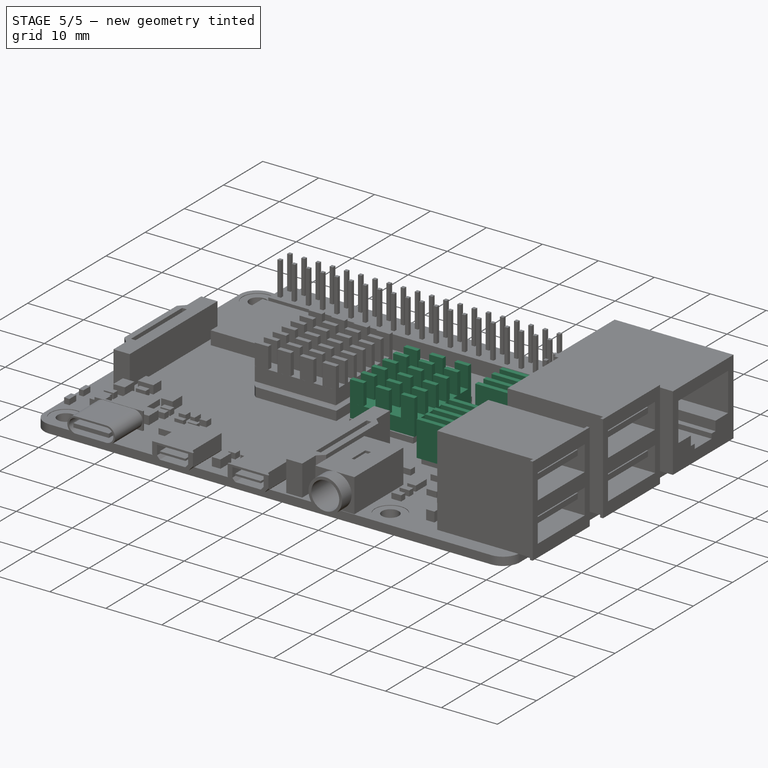
[diagram: stage 5 of 5 — iso view after this stage's code; geometry added in this stage tinted green]
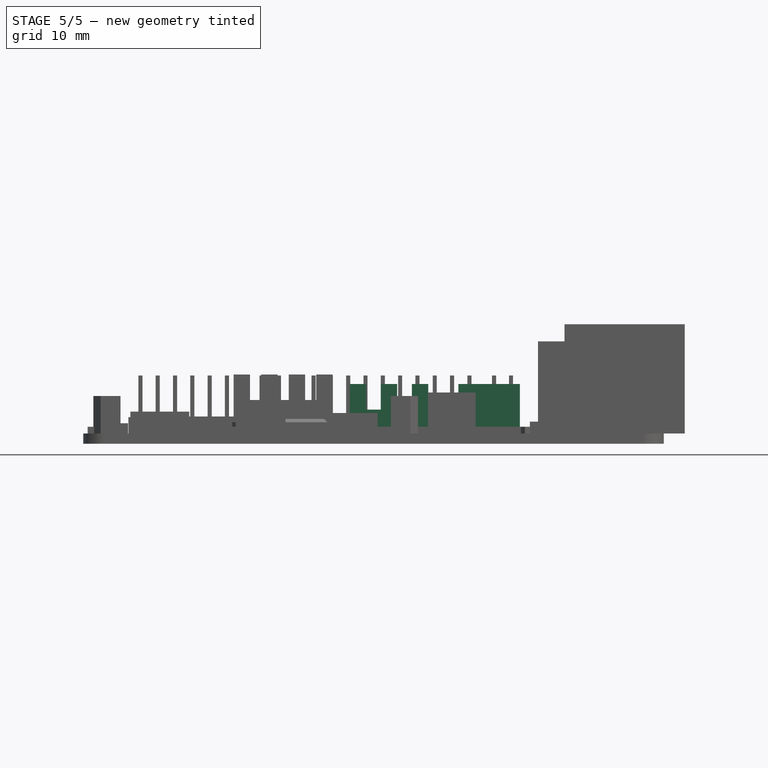
[diagram: stage 5 of 5 — front view after this stage's code; geometry added in this stage tinted green]
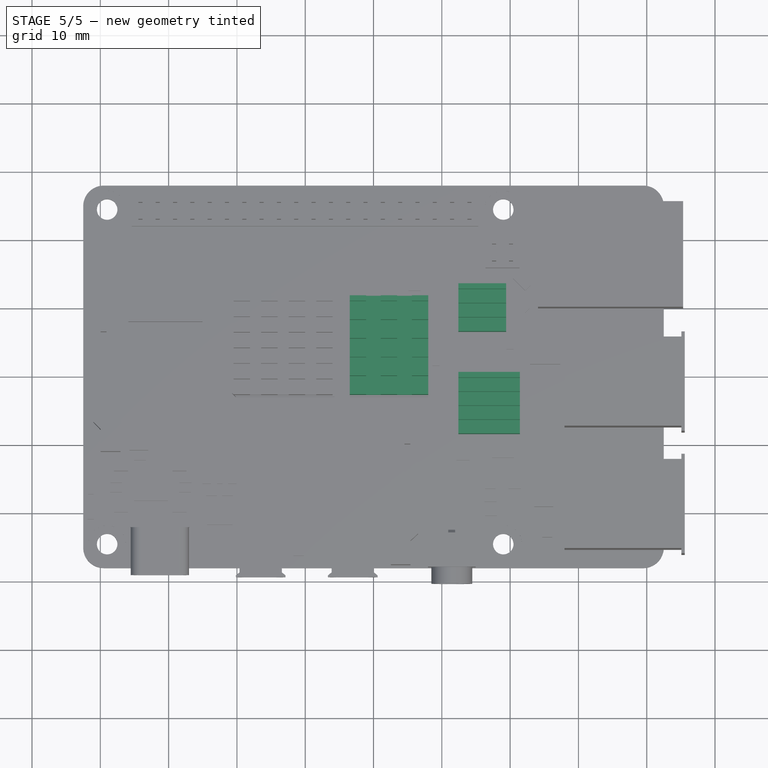
[diagram: stage 5 of 5 — top view after this stage's code; geometry added in this stage tinted green]
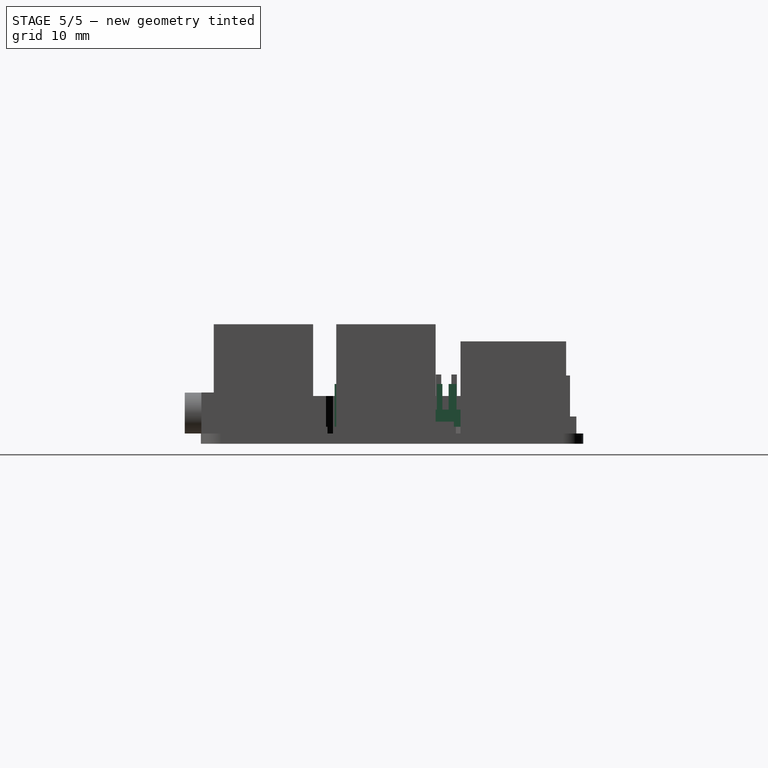
[diagram: stage 5 of 5 — right view after this stage's code; geometry added in this stage tinted green]
FEATURE [Sketcher::SketchObject] Sketch035
  ArcFitTolerance = 1e-06
  AttachmentSupport = -> [LinearPattern001]
  ExternalGeometry = -> [LinearPattern001]
  FullyConstrained = true
  MakeInternals = false
  MapMode = 5
  Placement = pos=(0,0,2.5) rot=(0,0,1;0rad)
  sketch-geometry (7):
    g0: GeomPoint [constr] X=2.265 Y=-2.94 Z=0
    g1: GeomPoint [constr] X=7.98 Y=4.565 Z=0
    g2: LineSegment StartX=-3.485 StartY=11.815 StartZ=0 EndX=-3.485 EndY=-2.685 EndZ=0
    g3: LineSegment StartX=-3.485 StartY=-2.685 StartZ=0 EndX=8.015 EndY=-2.685 EndZ=0
    g4: LineSegment StartX=8.015 StartY=-2.685 StartZ=0 EndX=8.015 EndY=11.815 EndZ=0
    g5: LineSegment StartX=8.015 StartY=11.815 StartZ=0 EndX=-3.485 EndY=11.815 EndZ=0
    g6: GeomPoint [constr] X=2.265 Y=4.565 Z=0
  constraints (15):
    c: Symmetric(g-4,g-4,g0)
    c: Symmetric(g-3,g-3,g1)
    c: Coincident(g2,g3)
    c: Coincident(g3,g4)
    c: Coincident(g4,g5)
    c: Coincident(g5,g2)
    c: Vertical(g2)
    c: Vertical(g4)
    c: Horizontal(g3)
    c: Horizontal(g5)
    c: Symmetric(g4,g2,g6)
    c: Equal(g4,g-5)
    c: DistanceX(g5,g5) = 11.5
    c: Vertical(g6,g0)
    c: Horizontal(g1,g6)
FEATURE [PartDesign::Pad] Pad018  label="HeatSink3Pad"
  BaseFeature = -> LinearPattern001
  Direction = (0,0,1)
  Length = 2.5
  Length2 = 10
  Profile = -> Sketch035
  ReferenceAxis = -> Sketch035 [N_Axis]
  Refine = true
  Suppressed = false
  Type = 0
FEATURE [Sketcher::SketchObject] Sketch036
  ArcFitTolerance = 1e-06
  AttachmentSupport = -> [Pad018]
  ExternalGeometry = -> [Pad018]
  FullyConstrained = true
  MakeInternals = false
  MapMode = 5
  Placement = pos=(0,0,5) rot=(0,0,1;0rad)
  sketch-geometry (14):
    g0: LineSegment StartX=-3.485 StartY=11.815 StartZ=0 EndX=-3.485 EndY=11.015 EndZ=0
    g1: LineSegment StartX=-3.485 StartY=11.015 StartZ=0 EndX=-1.085 EndY=11.015 EndZ=0
    g2: LineSegment StartX=-1.085 StartY=11.015 StartZ=0 EndX=-1.085 EndY=11.815 EndZ=0
    g3: LineSegment StartX=-1.085 StartY=11.815 StartZ=0 EndX=-3.485 EndY=11.815 EndZ=0
    g4: LineSegment StartX=1.065 StartY=11.815 StartZ=0 EndX=1.065 EndY=11.015 EndZ=0
    g5: LineSegment StartX=1.065 StartY=11.015 StartZ=0 EndX=3.465 EndY=11.015 EndZ=0
    g6: LineSegment StartX=3.465 StartY=11.015 StartZ=0 EndX=3.465 EndY=11.815 EndZ=0
    g7: LineSegment StartX=3.465 StartY=11.815 StartZ=0 EndX=1.065 EndY=11.815 EndZ=0
    g8: LineSegment StartX=8.015 StartY=11.815 StartZ=0 EndX=5.615 EndY=11.815 EndZ=0
    g9: LineSegment StartX=5.615 StartY=11.815 StartZ=0 EndX=5.615 EndY=11.015 EndZ=0
    g10: LineSegment StartX=5.615 StartY=11.015 StartZ=0 EndX=8.015 EndY=11.015 EndZ=0
    g11: LineSegment StartX=8.015 StartY=11.015 StartZ=0 EndX=8.015 EndY=11.815 EndZ=0
    g12: LineSegment [constr] StartX=-1.085 StartY=11.815 StartZ=0 EndX=1.065 EndY=11.815 EndZ=0
    g13: LineSegment [constr] StartX=3.465 StartY=11.815 StartZ=0 EndX=5.615 EndY=11.815 EndZ=0
  constraints (38):
    c: Coincident(g0,g1)
    c: Coincident(g1,g2)
    c: Coincident(g2,g3)
    c: Coincident(g3,g0)
    c: Vertical(g0)
    c: Vertical(g2)
    c: Horizontal(g1)
    c: Horizontal(g3)
    c: Coincident(g0,g-3)
    c: Coincident(g4,g5)
    c: Coincident(g5,g6)
    c: Coincident(g6,g7)
    c: Coincident(g7,g4)
    c: Vertical(g4)
    c: Vertical(g6)
    c: Horizontal(g5)
    c: Horizontal(g7)
    c: PointOnObject(g4,g-3)
    c: Coincident(g8,g9)
    c: Coincident(g9,g10)
    c: Coincident(g10,g11)
    c: Coincident(g11,g8)
    c: Horizontal(g8)
    c: Horizontal(g10)
    c: Vertical(g9)
    c: Vertical(g11)
    c: Coincident(g8,g-3)
    c: Coincident(g12,g2)
    c: Coincident(g12,g4)
    c: Coincident(g13,g6)
    c: Coincident(g13,g8)
    c: Horizontal(g9,g5)
    c: Horizontal(g1,g4)
    c: DistanceY(g11,g11) = 0.8
    c: Equal(g8,g7)
    c: Equal(g7,g3)
    c: Equal(g12,g13)
    c: DistanceX(g8,g8) = 2.4
FEATURE [PartDesign::Pad] Pad019  label="HeatSink4Pad"
  BaseFeature = -> Pad018
  Direction = (0,0,1)
  Length = 3.75
  Length2 = 10
  Profile = -> Sketch036
  ReferenceAxis = -> Sketch036 [N_Axis]
  Refine = true
  Suppressed = false
  Type = 0
FEATURE [PartDesign::LinearPattern] LinearPattern002  label="HeatSink2Pattern"
  BaseFeature = -> Pad019
  Direction = -> Y_Axis
  Length = 13.6988
  Mode = 1
  Occurrences = 6
  Offset = 2.73975
  Originals = -> [Pad019]
  Refine = true
  Reversed = true
  Suppressed = false
  TransformMode = 0
FEATURE [Sketcher::SketchObject] Sketch037
  ArcFitTolerance = 1e-06
  AttachmentSupport = -> [LinearPattern002]
  ExternalGeometry = -> [LinearPattern002]
  FullyConstrained = true
  MakeInternals = false
  MapMode = 5
  Placement = pos=(0,0,2.5) rot=(0,0,1;0rad)
  sketch-geometry (7):
    g0: LineSegment StartX=12.42 StartY=13.57 StartZ=0 EndX=12.42 EndY=6.57 EndZ=0
    g1: LineSegment StartX=12.42 StartY=6.57 StartZ=0 EndX=19.42 EndY=6.57 EndZ=0
    g2: LineSegment StartX=19.42 StartY=6.57 StartZ=0 EndX=19.42 EndY=13.57 EndZ=0
    g3: LineSegment StartX=19.42 StartY=13.57 StartZ=0 EndX=12.42 EndY=13.57 EndZ=0
    g4: GeomPoint [constr] X=15.92 Y=10.07 Z=0
    g5: GeomPoint X=18.9 Y=10.07 Z=0
    g6: GeomPoint X=15.92 Y=13.1 Z=0
  constraints (15):
    c: Coincident(g0,g1)
    c: Coincident(g1,g2)
    c: Coincident(g2,g3)
    c: Coincident(g3,g0)
    c: Vertical(g0)
    c: Vertical(g2)
    c: Horizontal(g1)
    c: Horizontal(g3)
    c: Symmetric(g2,g0,g4)
    c: Symmetric(g-4,g-4,g5)
    c: Symmetric(g-3,g-3,g6)
    c: Horizontal(g5,g4)
    c: Vertical(g6,g4)
    c: DistanceY(g2,g2) = 7
    c: Equal(g2,g3)
FEATURE [PartDesign::Pad] Pad020  label="HeatSink5Pad"
  BaseFeature = -> LinearPattern002
  Direction = (0,0,1)
  Length = 2.5
  Length2 = 10
  Profile = -> Sketch037
  ReferenceAxis = -> Sketch037 [N_Axis]
  Refine = true
  Suppressed = false
  Type = 0
FEATURE [Sketcher::SketchObject] Sketch038
  ArcFitTolerance = 1e-06
  AttachmentSupport = -> [Pad020]
  ExternalGeometry = -> [Pad020]
  FullyConstrained = true
  MakeInternals = false
  MapMode = 5
  Placement = pos=(0,0,5) rot=(0,0,1;0rad)
  sketch-geometry (4):
    g0: LineSegment StartX=12.42 StartY=13.57 StartZ=0 EndX=12.42 EndY=12.77 EndZ=0
    g1: LineSegment StartX=12.42 StartY=12.77 StartZ=0 EndX=19.42 EndY=12.77 EndZ=0
    g2: LineSegment StartX=19.42 StartY=12.77 StartZ=0 EndX=19.42 EndY=13.57 EndZ=0
    g3: LineSegment StartX=19.42 StartY=13.57 StartZ=0 EndX=12.42 EndY=13.57 EndZ=0
  constraints (10):
    c: Coincident(g0,g1)
    c: Coincident(g1,g2)
    c: Coincident(g2,g3)
    c: Coincident(g3,g0)
    c: Vertical(g0)
    c: Vertical(g2)
    c: Horizontal(g1)
    c: Coincident(g0,g-3)
    c: Coincident(g-3,g2)
    c: DistanceY(g2,g2) = 0.8
FEATURE [PartDesign::Pad] Pad021  label="HeatSink6Pad"
  BaseFeature = -> Pad020
  Direction = (0,0,1)
  Length = 3.75
  Length2 = 10
  Profile = -> Sketch038
  ReferenceAxis = -> Sketch038 [N_Axis]
  Refine = true
  Suppressed = false
  Type = 0
FEATURE [PartDesign::LinearPattern] LinearPattern003  label="HeatSink3Pattern"
  BaseFeature = -> Pad021
  Direction = -> Y_Axis
  Length = 6.2
  Mode = 0
  Occurrences = 4
  Offset = 2.06667
  Originals = -> [Pad021]
  Refine = true
  Reversed = true
  Suppressed = false
  TransformMode = 0
FEATURE [Sketcher::SketchObject] Sketch039
  ArcFitTolerance = 1e-06
  AttachmentSupport = -> [LinearPattern003]
  ExternalGeometry = -> [LinearPattern003]
  FullyConstrained = true
  MakeInternals = false
  MapMode = 5
  Placement = pos=(0,0,2.5) rot=(0,0,1;0rad)
  sketch-geometry (7):
    g0: GeomPoint X=16.925 Y=0.14 Z=0
    g1: GeomPoint X=20.89 Y=-3.905 Z=0
    g2: LineSegment StartX=12.425 StartY=0.595 StartZ=0 EndX=12.425 EndY=-8.405 EndZ=0
    g3: LineSegment StartX=12.425 StartY=-8.405 StartZ=0 EndX=21.425 EndY=-8.405 EndZ=0
    g4: LineSegment StartX=21.425 StartY=-8.405 StartZ=0 EndX=21.425 EndY=0.595 EndZ=0
    g5: LineSegment StartX=21.425 StartY=0.595 StartZ=0 EndX=12.425 EndY=0.595 EndZ=0
    g6: GeomPoint [constr] X=16.925 Y=-3.905 Z=0
  constraints (15):
    c: Symmetric(g-4,g-4,g0)
    c: Symmetric(g-3,g-3,g1)
    c: Coincident(g2,g3)
    c: Coincident(g3,g4)
    c: Coincident(g4,g5)
    c: Coincident(g5,g2)
    c: Vertical(g2)
    c: Vertical(g4)
    c: Horizontal(g3)
    c: Horizontal(g5)
    c: Symmetric(g4,g2,g6)
    c: Horizontal(g6,g1)
    c: Vertical(g0,g6)
    c: Equal(g4,g5)
    c: DistanceY(g4,g4) = 9
FEATURE [PartDesign::Pad] Pad022  label="HeatSink7Pad"
  BaseFeature = -> LinearPattern003
  Direction = (0,0,1)
  Length = 2.5
  Length2 = 10
  Profile = -> Sketch039
  ReferenceAxis = -> Sketch039 [N_Axis]
  Refine = true
  Suppressed = false
  Type = 0
FEATURE [Sketcher::SketchObject] Sketch040
  ArcFitTolerance = 1e-06
  AttachmentSupport = -> [Pad022]
  ExternalGeometry = -> [Pad022]
  FullyConstrained = true
  MakeInternals = false
  MapMode = 5
  Placement = pos=(0,0,5) rot=(0,0,1;0rad)
  sketch-geometry (4):
    g0: LineSegment StartX=12.425 StartY=0.595 StartZ=0 EndX=12.425 EndY=-0.205 EndZ=0
    g1: LineSegment StartX=12.425 StartY=-0.205 StartZ=0 EndX=21.425 EndY=-0.205 EndZ=0
    g2: LineSegment StartX=21.425 StartY=-0.205 StartZ=0 EndX=21.425 EndY=0.595 EndZ=0
    g3: LineSegment StartX=21.425 StartY=0.595 StartZ=0 EndX=12.425 EndY=0.595 EndZ=0
  constraints (10):
    c: Coincident(g0,g1)
    c: Coincident(g1,g2)
    c: Coincident(g2,g3)
    c: Coincident(g3,g0)
    c: Vertical(g0)
    c: Vertical(g2)
    c: Horizontal(g1)
    c: Coincident(g0,g-3)
    c: Coincident(g2,g-3)
    c: DistanceY(g2,g2) = 0.8
FEATURE [PartDesign::Pad] Pad023  label="HeatSink8Pad"
  BaseFeature = -> Pad022
  Direction = (0,0,1)
  Length = 3.75
  Length2 = 10
  Profile = -> Sketch040
  ReferenceAxis = -> Sketch040 [N_Axis]
  Refine = true
  Suppressed = false
  Type = 0
FEATURE [PartDesign::LinearPattern] LinearPattern004  label="HeatSink4Pattern"
  BaseFeature = -> Pad023
  Direction = -> Y_Axis
  Length = 8.2
  Mode = 0
  Occurrences = 5
  Offset = 2.05
  Originals = -> [Pad023]
  Refine = true
  Reversed = true
  Suppressed = false
  TransformMode = 0
FEATURE [PartDesign::Body] Body  label="RPi4-HeadSinks"
  AllowCompound = false
  Group = -> [Sketch,Pad,Sketch001,Pad001,Sketch002,Pad002,Sketch003,Pad003,Sketch004,Pad004,Sketch005,Pad005,Sketch006,Pad006,Sketch007,Pad007,Sketch009,Pad008,Sketch010,Pad009,Sketch011,Pad010,Sketch012,Pad011,Sketch013,Pad012,Sketch014,Pad013,Sketch015,Pad014,Sketch016,Pocket,Sketch017,Pocket001,Sketch018,Pocket002,Sketch019,Pocket003,Sketch020,Pocket004,Sketch021,Pocket005,Sketch022,Pocket006,Sketch023,+41 more]
  Origin = -> Origin
  Tip = -> LinearPattern004
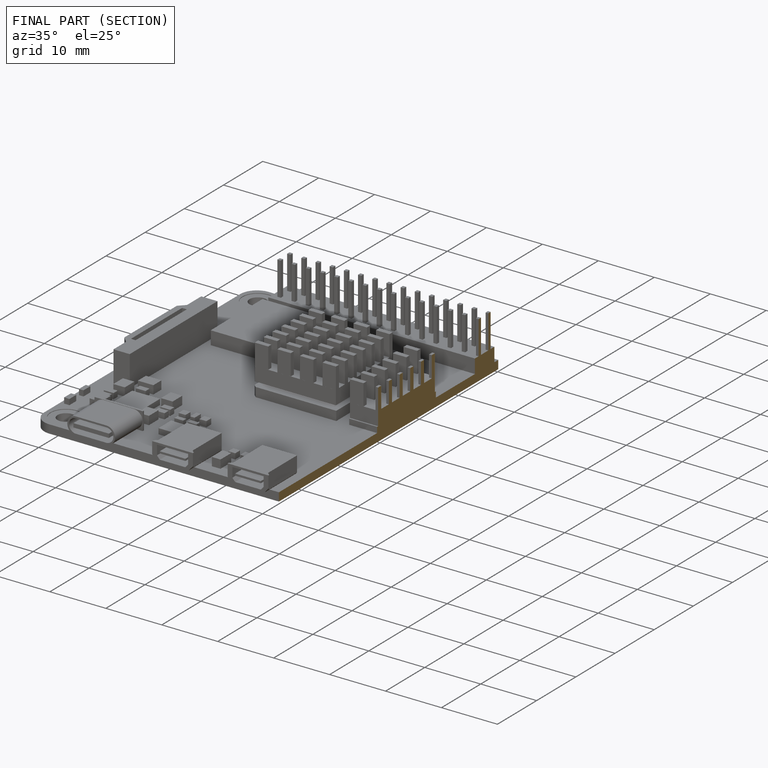
[diagram: finished part — half-section view (interior)]
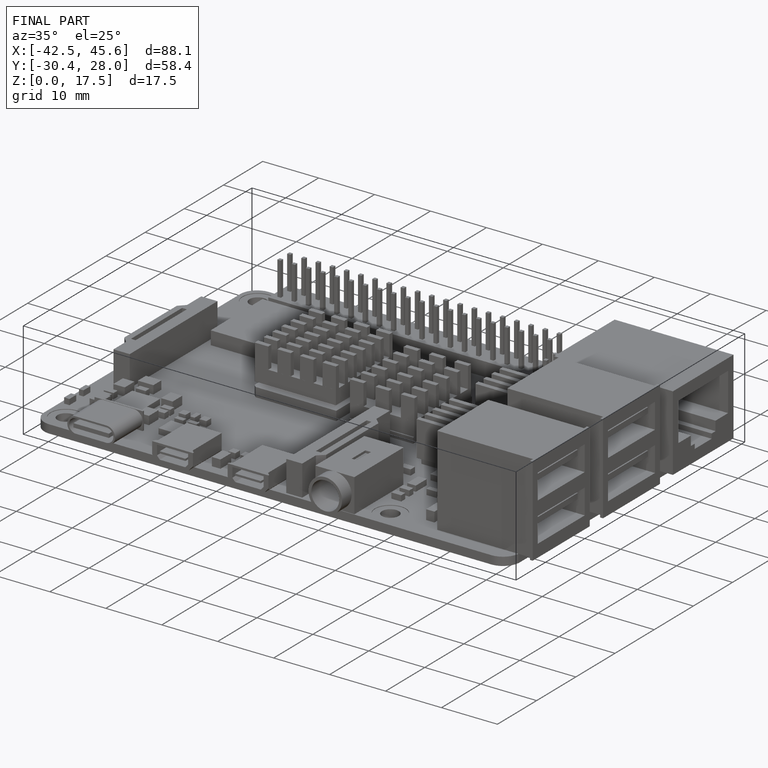
[diagram: finished part — iso view with bounding-box wireframe]
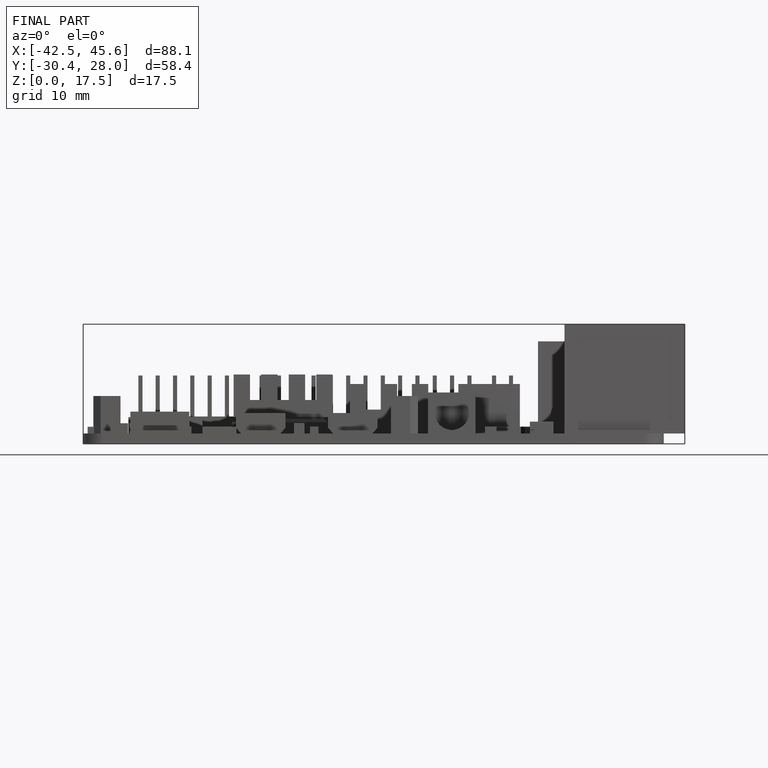
[diagram: finished part — front view with bounding-box wireframe]
